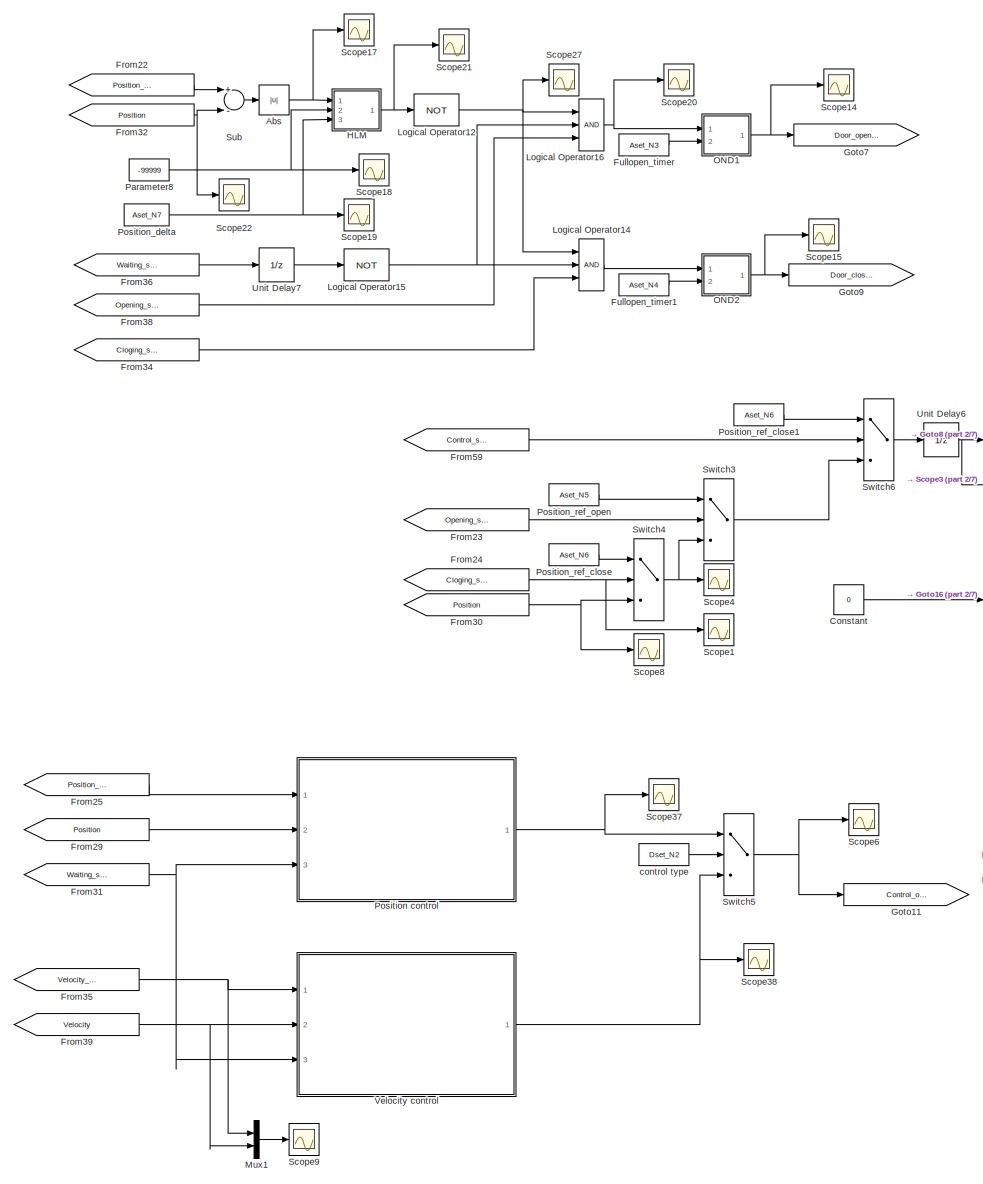
[diagram: root canvas - part 1/7, top left region]
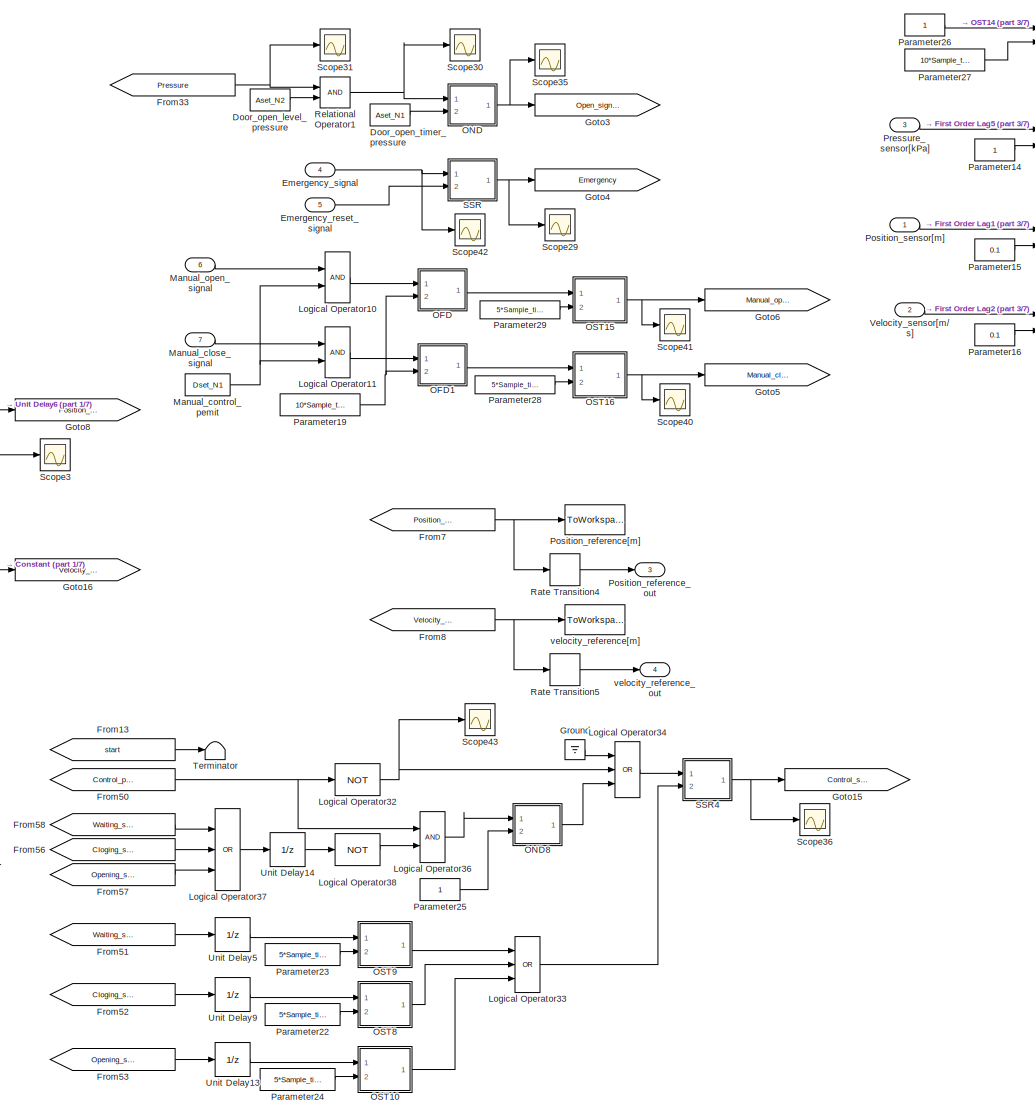
[diagram: root canvas - part 2/7, top center region]
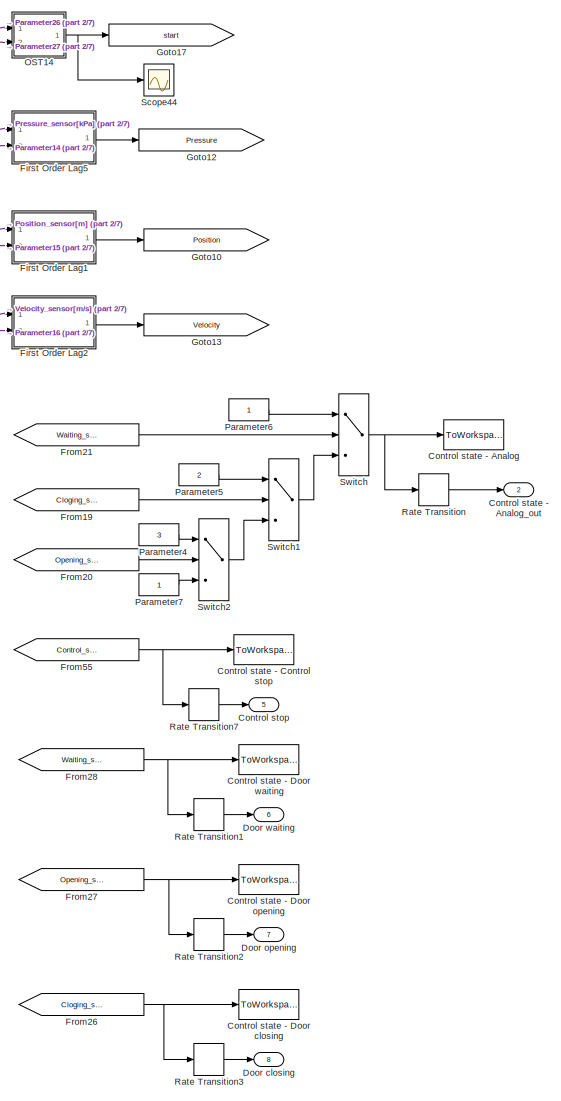
[diagram: root canvas - part 3/7, top right region]
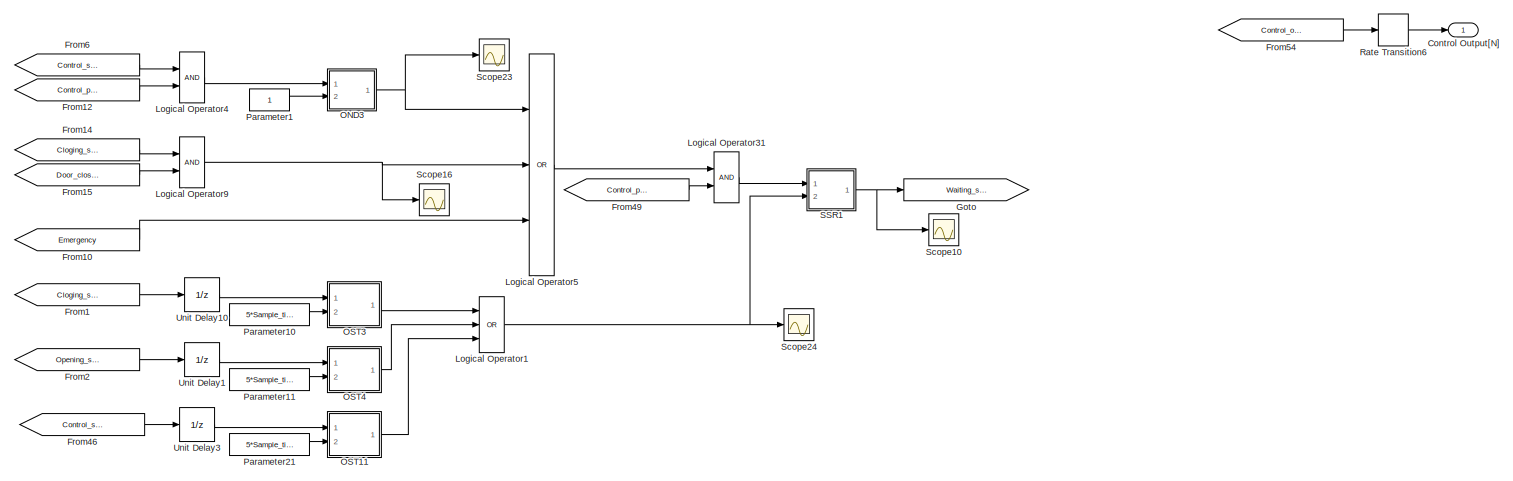
[diagram: root canvas - part 4/7, central region]
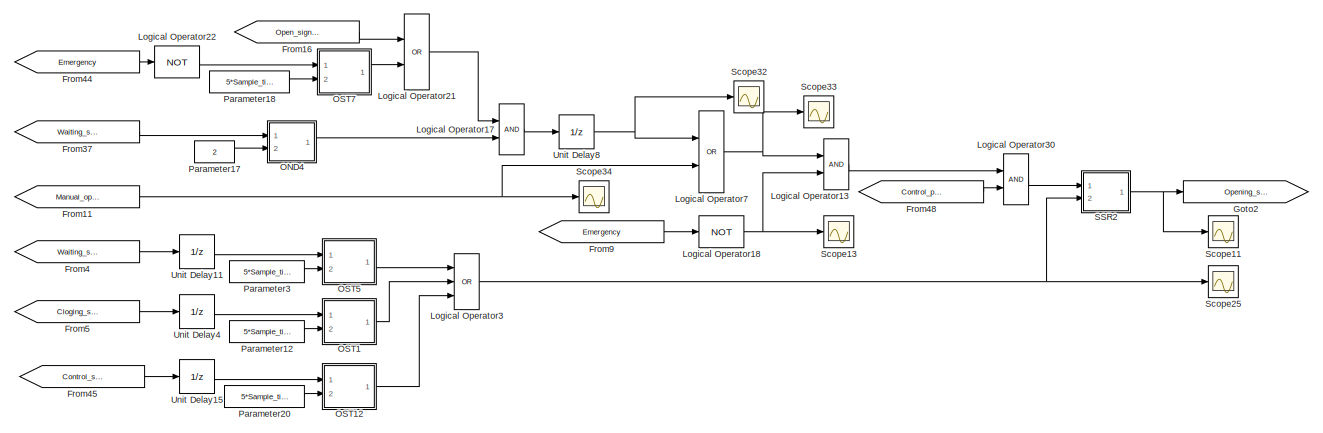
[diagram: root canvas - part 5/7, bottom center region]
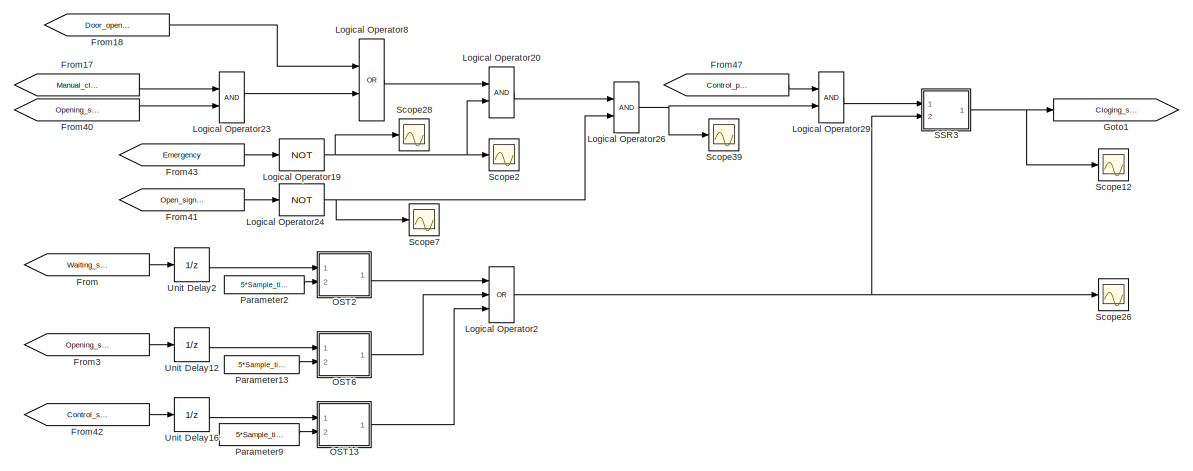
[diagram: root canvas - part 6/7, bottom center region]
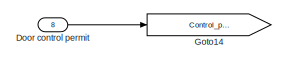
[diagram: root canvas - part 7/7, bottom left region]
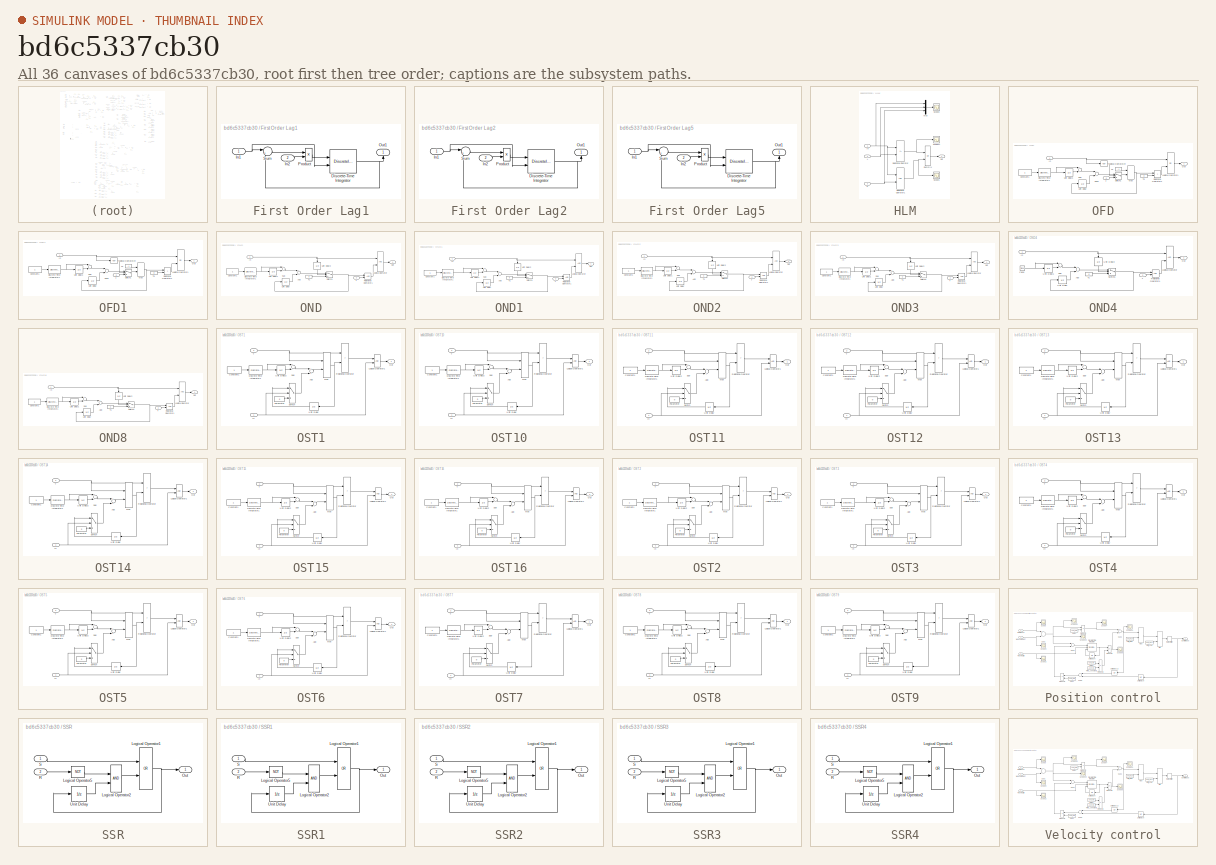
[diagram: thumbnail index - all 36 canvases of the model, root first then tree order]
MODEL slx_bd6c5337cb30
KIND model
CONFIG AbsTol = auto
CONFIG EnableMultiTasking = off
CONFIG FixedStep = auto
CONFIG MaxStep = auto
CONFIG MinStep = auto
CONFIG RelTol = 1e-3
CONFIG SampleTimeConstraint = Unconstrained
CONFIG Solver = FixedStepAuto
CONFIG SolverName = FixedStepAuto
CONFIG StartTime = Start_time
CONFIG StopTime = Stop_time
BLOCK [Abs] Abs
  SaturateOnIntegerOverflow = off
BLOCK [Constant] Constant
  Value = 0
BLOCK [Outport] Control Output[N]
  IconDisplay = Port number
  LockScale = on
  OutDataTypeStr = double
  SampleTime = Sample_time
  Unit = N
  VectorParamsAs1DForOutWhenUnconnected = off
BLOCK [ToWorkspace] Control state - Analog
  FixptAsFi = on
  MaxDataPoints = inf
  Ports = [1]
  SampleTime = Sample_time
  VariableName = Aout_N2
BLOCK [Outport] Control state - Analog_out
  IconDisplay = Port number
  Port = 2
  SampleTime = Sample_time
  VectorParamsAs1DForOutWhenUnconnected = off
BLOCK [ToWorkspace] Control state - Control stop
  FixptAsFi = on
  MaxDataPoints = inf
  Ports = [1]
  SampleTime = Sample_time
  VariableName = Dout_N1
BLOCK [ToWorkspace] Control state - Door closing
  FixptAsFi = on
  MaxDataPoints = inf
  Ports = [1]
  SampleTime = Sample_time
  VariableName = Dout_N4
BLOCK [ToWorkspace] Control state - Door opening
  FixptAsFi = on
  MaxDataPoints = inf
  Ports = [1]
  SampleTime = Sample_time
  VariableName = Dout_N3
BLOCK [ToWorkspace] Control state - Door waiting
  FixptAsFi = on
  MaxDataPoints = inf
  Ports = [1]
  SampleTime = Sample_time
  VariableName = Dout_N2
BLOCK [Outport] Control stop
  IconDisplay = Port number
  Port = 5
  SampleTime = Sample_time
  VectorParamsAs1DForOutWhenUnconnected = off
BLOCK [Outport] Door closing
  IconDisplay = Port number
  Port = 8
  SampleTime = Sample_time
  VectorParamsAs1DForOutWhenUnconnected = off
BLOCK [Inport] Door control permit
  IconDisplay = Port number
  OutDataTypeStr = boolean
  Port = 8
  SampleTime = Sample_time
BLOCK [Outport] Door opening
  IconDisplay = Port number
  Port = 7
  SampleTime = Sample_time
  VectorParamsAs1DForOutWhenUnconnected = off
BLOCK [Outport] Door waiting
  IconDisplay = Port number
  Port = 6
  SampleTime = Sample_time
  VectorParamsAs1DForOutWhenUnconnected = off
BLOCK [Constant] Door_open_level_pressure
  OutDataTypeStr = double
  SampleTime = Sample_time
  Value = Aset_N2
BLOCK [Constant] Door_open_timer_pressure
  OutDataTypeStr = double
  SampleTime = Sample_time
  Value = Aset_N1
BLOCK [Inport] Emergency_reset_signal
  IconDisplay = Port number
  OutDataTypeStr = boolean
  Port = 5
  SampleTime = Sample_time
BLOCK [Inport] Emergency_signal
  IconDisplay = Port number
  OutDataTypeStr = boolean
  Port = 4
  SampleTime = Sample_time
BLOCK [SubSystem] First Order Lag1
  Ports = [2, 1]
  RequestExecContextInheritance = off
BLOCK [DiscreteIntegrator] First Order Lag1/Discrete-Time Integrator
  ICPrevOutput = DiscIntNeverNeededParam
  ICPrevScaledInput = DiscIntNeverNeededParam
  InitialConditionSetting = Auto
  InitialConditionSource = external
  Ports = [2, 1]
  SampleTime = Sample_time
BLOCK [Inport] First Order Lag1/In1
  IconDisplay = Port number
BLOCK [Inport] First Order Lag1/In2
  IconDisplay = Port number
  Port = 2
BLOCK [Outport] First Order Lag1/Out1
  IconDisplay = Port number
  VectorParamsAs1DForOutWhenUnconnected = off
BLOCK [Product] First Order Lag1/Product
  InputSameDT = off
  Inputs = */
  Ports = [2, 1]
  RndMeth = Floor
BLOCK [Sum] First Order Lag1/Sum
  IconShape = round
  InputSameDT = off
  Inputs = |+-
  OutDataTypeStr = Inherit: Inherit via internal rule
  Ports = [2, 1]
BLOCK [SubSystem] First Order Lag2
  Ports = [2, 1]
  RequestExecContextInheritance = off
BLOCK [DiscreteIntegrator] First Order Lag2/Discrete-Time Integrator
  ICPrevOutput = DiscIntNeverNeededParam
  ICPrevScaledInput = DiscIntNeverNeededParam
  InitialConditionSetting = Auto
  InitialConditionSource = external
  Ports = [2, 1]
  SampleTime = Sample_time
BLOCK [Inport] First Order Lag2/In1
  IconDisplay = Port number
BLOCK [Inport] First Order Lag2/In2
  IconDisplay = Port number
  Port = 2
BLOCK [Outport] First Order Lag2/Out1
  IconDisplay = Port number
  VectorParamsAs1DForOutWhenUnconnected = off
BLOCK [Product] First Order Lag2/Product
  InputSameDT = off
  Inputs = */
  Ports = [2, 1]
  RndMeth = Floor
BLOCK [Sum] First Order Lag2/Sum
  IconShape = round
  InputSameDT = off
  Inputs = |+-
  OutDataTypeStr = Inherit: Inherit via internal rule
  Ports = [2, 1]
BLOCK [SubSystem] First Order Lag5
  Ports = [2, 1]
  RequestExecContextInheritance = off
BLOCK [DiscreteIntegrator] First Order Lag5/Discrete-Time Integrator
  ICPrevOutput = DiscIntNeverNeededParam
  ICPrevScaledInput = DiscIntNeverNeededParam
  InitialConditionSetting = Auto
  InitialConditionSource = external
  Ports = [2, 1]
  SampleTime = Sample_time
BLOCK [Inport] First Order Lag5/In1
  IconDisplay = Port number
BLOCK [Inport] First Order Lag5/In2
  IconDisplay = Port number
  Port = 2
BLOCK [Outport] First Order Lag5/Out1
  IconDisplay = Port number
  VectorParamsAs1DForOutWhenUnconnected = off
BLOCK [Product] First Order Lag5/Product
  InputSameDT = off
  Inputs = */
  Ports = [2, 1]
  RndMeth = Floor
BLOCK [Sum] First Order Lag5/Sum
  IconShape = round
  InputSameDT = off
  Inputs = |+-
  OutDataTypeStr = Inherit: Inherit via internal rule
  Ports = [2, 1]
BLOCK [From] From
  GotoTag = Waiting_state
  TagVisibility = global
BLOCK [From] From1
  GotoTag = Cloging_state
  TagVisibility = global
BLOCK [From] From10
  GotoTag = Emergency
  TagVisibility = global
BLOCK [From] From11
  GotoTag = Manual_open
  TagVisibility = global
BLOCK [From] From12
  GotoTag = Control_permit
  TagVisibility = global
BLOCK [From] From13
  GotoTag = start
  TagVisibility = global
BLOCK [From] From14
  GotoTag = Cloging_state
  TagVisibility = global
BLOCK [From] From15
  GotoTag = Door_closing
  TagVisibility = global
BLOCK [From] From16
  GotoTag = Open_signal
  TagVisibility = global
BLOCK [From] From17
  GotoTag = Manual_close
  TagVisibility = global
BLOCK [From] From18
  GotoTag = Door_opening
  TagVisibility = global
BLOCK [From] From19
  GotoTag = Cloging_state
  TagVisibility = global
BLOCK [From] From2
  GotoTag = Opening_state
  TagVisibility = global
BLOCK [From] From20
  GotoTag = Opening_state
  TagVisibility = global
BLOCK [From] From21
  GotoTag = Waiting_state
  TagVisibility = global
BLOCK [From] From22
  GotoTag = Position_ref
  TagVisibility = global
BLOCK [From] From23
  GotoTag = Opening_state
  TagVisibility = global
BLOCK [From] From24
  GotoTag = Cloging_state
  TagVisibility = global
BLOCK [From] From25
  GotoTag = Position_ref
  TagVisibility = global
BLOCK [From] From26
  GotoTag = Cloging_state
  TagVisibility = global
BLOCK [From] From27
  GotoTag = Opening_state
  TagVisibility = global
BLOCK [From] From28
  GotoTag = Waiting_state
  TagVisibility = global
BLOCK [From] From29
  GotoTag = Position
  TagVisibility = global
BLOCK [From] From3
  GotoTag = Opening_state
  TagVisibility = global
BLOCK [From] From30
  GotoTag = Position
  TagVisibility = global
BLOCK [From] From31
  GotoTag = Waiting_state
  TagVisibility = global
BLOCK [From] From32
  GotoTag = Position
  TagVisibility = global
BLOCK [From] From33
  GotoTag = Pressure
  TagVisibility = global
BLOCK [From] From34
  GotoTag = Cloging_state
  TagVisibility = global
BLOCK [From] From35
  GotoTag = Velocity_ref
  TagVisibility = global
BLOCK [From] From36
  GotoTag = Waiting_state
  TagVisibility = global
BLOCK [From] From37
  GotoTag = Waiting_state
  TagVisibility = global
BLOCK [From] From38
  GotoTag = Opening_state
  TagVisibility = global
BLOCK [From] From39
  GotoTag = Velocity
  TagVisibility = global
BLOCK [From] From4
  GotoTag = Waiting_state
  TagVisibility = global
BLOCK [From] From40
  GotoTag = Opening_state
  TagVisibility = global
BLOCK [From] From41
  GotoTag = Open_signal
  TagVisibility = global
BLOCK [From] From42
  GotoTag = Control_stop_state
  TagVisibility = global
BLOCK [From] From43
  GotoTag = Emergency
  TagVisibility = global
BLOCK [From] From44
  GotoTag = Emergency
  TagVisibility = global
BLOCK [From] From45
  GotoTag = Control_stop_state
  TagVisibility = global
BLOCK [From] From46
  GotoTag = Control_stop_state
  TagVisibility = global
BLOCK [From] From47
  GotoTag = Control_permit
  TagVisibility = global
BLOCK [From] From48
  GotoTag = Control_permit
  TagVisibility = global
BLOCK [From] From49
  GotoTag = Control_permit
  TagVisibility = global
BLOCK [From] From5
  GotoTag = Cloging_state
  TagVisibility = global
BLOCK [From] From50
  GotoTag = Control_permit
  TagVisibility = global
BLOCK [From] From51
  GotoTag = Waiting_state
  TagVisibility = global
BLOCK [From] From52
  GotoTag = Cloging_state
  TagVisibility = global
BLOCK [From] From53
  GotoTag = Opening_state
  TagVisibility = global
BLOCK [From] From54
  GotoTag = Control_output
  TagVisibility = global
BLOCK [From] From55
  GotoTag = Control_stop_state
  TagVisibility = global
BLOCK [From] From56
  GotoTag = Cloging_state
  TagVisibility = global
BLOCK [From] From57
  GotoTag = Opening_state
  TagVisibility = global
BLOCK [From] From58
  GotoTag = Waiting_state
  TagVisibility = global
BLOCK [From] From59
  GotoTag = Control_stop_state
  TagVisibility = global
BLOCK [From] From6
  GotoTag = Control_stop_state
  TagVisibility = global
BLOCK [From] From7
  GotoTag = Position_ref
  TagVisibility = global
BLOCK [From] From8
  GotoTag = Velocity_ref
  TagVisibility = global
BLOCK [From] From9
  GotoTag = Emergency
  TagVisibility = global
BLOCK [Constant] Fullopen_timer
  OutDataTypeStr = double
  SampleTime = Sample_time
  Value = Aset_N3
BLOCK [Constant] Fullopen_timer1
  OutDataTypeStr = double
  SampleTime = Sample_time
  Value = Aset_N4
BLOCK [Goto] Goto
  GotoTag = Waiting_state
  TagVisibility = global
BLOCK [Goto] Goto1
  GotoTag = Cloging_state
  TagVisibility = global
BLOCK [Goto] Goto10
  GotoTag = Position
  TagVisibility = global
BLOCK [Goto] Goto11
  GotoTag = Control_output
  TagVisibility = global
BLOCK [Goto] Goto12
  GotoTag = Pressure
  TagVisibility = global
BLOCK [Goto] Goto13
  GotoTag = Velocity
  TagVisibility = global
BLOCK [Goto] Goto14
  GotoTag = Control_permit
  TagVisibility = global
BLOCK [Goto] Goto15
  GotoTag = Control_stop_state
  TagVisibility = global
BLOCK [Goto] Goto16
  GotoTag = Velocity_ref
  TagVisibility = global
BLOCK [Goto] Goto17
  GotoTag = start
  TagVisibility = global
BLOCK [Goto] Goto2
  GotoTag = Opening_state
  TagVisibility = global
BLOCK [Goto] Goto3
  GotoTag = Open_signal
  TagVisibility = global
BLOCK [Goto] Goto4
  GotoTag = Emergency
  TagVisibility = global
BLOCK [Goto] Goto5
  GotoTag = Manual_close
  TagVisibility = global
BLOCK [Goto] Goto6
  GotoTag = Manual_open
  TagVisibility = global
BLOCK [Goto] Goto7
  GotoTag = Door_opening
  TagVisibility = global
BLOCK [Goto] Goto8
  GotoTag = Position_ref
  TagVisibility = global
BLOCK [Goto] Goto9
  GotoTag = Door_closing
  TagVisibility = global
BLOCK [Ground] Ground
BLOCK [SubSystem] HLM
  Ports = [3, 1]
  RequestExecContextInheritance = off
BLOCK [Logic] HLM/Dummy4
  AllPortsSameDT = off
  Operator = OR
  OutDataTypeStr = boolean
  Ports = [2, 1]
BLOCK [Inport] HLM/H
  IconDisplay = Port number
  Port = 3
BLOCK [Inport] HLM/In
  IconDisplay = Port number
BLOCK [Inport] HLM/L
  IconDisplay = Port number
  Port = 2
BLOCK [Mux] HLM/Mux
  DisplayOption = bar
  Inputs = 3
  Ports = [3, 1]
BLOCK [Outport] HLM/Out
  IconDisplay = Port number
  VectorParamsAs1DForOutWhenUnconnected = off
BLOCK [RelationalOperator] HLM/Relational Operator
  InputSameDT = off
  Operator = <=
  OutDataTypeStr = boolean
  Ports = [2, 1]
BLOCK [RelationalOperator] HLM/Relational Operator1
  InputSameDT = off
  OutDataTypeStr = boolean
  Ports = [2, 1]
BLOCK [Scope] HLM/Scope1
  Floating = off
  NumInputPorts = 1
  Ports = [1]
  ScopeSpecificationString = Simulink.scopes.TimeScopeBlockCfg('CurrentConfiguration', extmgr.ConfigurationSet(extmgr.Configuration('Core','General UI',true),extmgr.Configuration('Core','Source UI',true),extmgr.Configuration('Sources','WiredSimulink',true,'DataLoggingVariableName','ScopeData19'),extmgr.Configuration('Visuals','Time Domain',true,'SerializedDisplays',{struct('MinYLimReal','-0.04932','MaxYLimReal','1.125','YLabe...<+1416ch>
BLOCK [Scope] HLM/Scope17
  Floating = off
  NumInputPorts = 1
  Ports = [1]
  ScopeSpecificationString = Simulink.scopes.TimeScopeBlockCfg('CurrentConfiguration', extmgr.ConfigurationSet(extmgr.Configuration('Core','General UI',true),extmgr.Configuration('Core','Source UI',true),extmgr.Configuration('Sources','WiredSimulink',true,'DataLoggingVariableName','ScopeData18'),extmgr.Configuration('Visuals','Time Domain',true,'SerializedDisplays',{struct('MinYLimReal','-1.00000','MaxYLimReal','1.00000','YLa...<+1423ch>
BLOCK [Scope] HLM/Scope2
  Floating = off
  NumInputPorts = 1
  Ports = [1]
  ScopeSpecificationString = Simulink.scopes.TimeScopeBlockCfg('CurrentConfiguration', extmgr.ConfigurationSet(extmgr.Configuration('Core','General UI',true),extmgr.Configuration('Core','Source UI',true),extmgr.Configuration('Sources','WiredSimulink',true,'DataLoggingVariableName','ScopeData24'),extmgr.Configuration('Visuals','Time Domain',true,'SerializedDisplays',{struct('MinYLimReal','-112623.875','MaxYLimReal','13624.875'...<+1467ch>
BLOCK [Logic] Logical Operator1
  AllPortsSameDT = off
  Inputs = 3
  Operator = OR
  OutDataTypeStr = boolean
  Ports = [3, 1]
BLOCK [Logic] Logical Operator10
  AllPortsSameDT = off
  OutDataTypeStr = boolean
  Ports = [2, 1]
BLOCK [Logic] Logical Operator11
  AllPortsSameDT = off
  OutDataTypeStr = boolean
  Ports = [2, 1]
BLOCK [Logic] Logical Operator12
  AllPortsSameDT = off
  Operator = NOT
  OutDataTypeStr = boolean
  Ports = [1, 1]
BLOCK [Logic] Logical Operator13
  AllPortsSameDT = off
  OutDataTypeStr = boolean
  Ports = [2, 1]
BLOCK [Logic] Logical Operator14
  AllPortsSameDT = off
  Inputs = 3
  OutDataTypeStr = boolean
  Ports = [3, 1]
BLOCK [Logic] Logical Operator15
  AllPortsSameDT = off
  Operator = NOT
  OutDataTypeStr = boolean
  Ports = [1, 1]
BLOCK [Logic] Logical Operator16
  AllPortsSameDT = off
  Inputs = 3
  OutDataTypeStr = boolean
  Ports = [3, 1]
BLOCK [Logic] Logical Operator17
  AllPortsSameDT = off
  OutDataTypeStr = boolean
  Ports = [2, 1]
BLOCK [Logic] Logical Operator18
  AllPortsSameDT = off
  Operator = NOT
  OutDataTypeStr = boolean
  Ports = [1, 1]
BLOCK [Logic] Logical Operator19
  AllPortsSameDT = off
  Operator = NOT
  OutDataTypeStr = boolean
  Ports = [1, 1]
BLOCK [Logic] Logical Operator2
  AllPortsSameDT = off
  Inputs = 3
  Operator = OR
  OutDataTypeStr = boolean
  Ports = [3, 1]
BLOCK [Logic] Logical Operator20
  AllPortsSameDT = off
  OutDataTypeStr = boolean
  Ports = [2, 1]
BLOCK [Logic] Logical Operator21
  AllPortsSameDT = off
  Operator = OR
  OutDataTypeStr = boolean
  Ports = [2, 1]
BLOCK [Logic] Logical Operator22
  AllPortsSameDT = off
  Operator = NOT
  OutDataTypeStr = boolean
  Ports = [1, 1]
BLOCK [Logic] Logical Operator23
  AllPortsSameDT = off
  OutDataTypeStr = boolean
  Ports = [2, 1]
BLOCK [Logic] Logical Operator24
  AllPortsSameDT = off
  Operator = NOT
  OutDataTypeStr = boolean
  Ports = [1, 1]
BLOCK [Logic] Logical Operator26
  AllPortsSameDT = off
  OutDataTypeStr = boolean
  Ports = [2, 1]
BLOCK [Logic] Logical Operator29
  AllPortsSameDT = off
  OutDataTypeStr = boolean
  Ports = [2, 1]
BLOCK [Logic] Logical Operator3
  AllPortsSameDT = off
  Inputs = 3
  Operator = OR
  OutDataTypeStr = boolean
  Ports = [3, 1]
BLOCK [Logic] Logical Operator30
  AllPortsSameDT = off
  OutDataTypeStr = boolean
  Ports = [2, 1]
BLOCK [Logic] Logical Operator31
  AllPortsSameDT = off
  OutDataTypeStr = boolean
  Ports = [2, 1]
BLOCK [Logic] Logical Operator32
  AllPortsSameDT = off
  Operator = NOT
  OutDataTypeStr = boolean
  Ports = [1, 1]
BLOCK [Logic] Logical Operator33
  AllPortsSameDT = off
  Inputs = 3
  Operator = OR
  OutDataTypeStr = boolean
  Ports = [3, 1]
BLOCK [Logic] Logical Operator34
  AllPortsSameDT = off
  Inputs = 3
  Operator = OR
  OutDataTypeStr = boolean
  Ports = [3, 1]
BLOCK [Logic] Logical Operator36
  AllPortsSameDT = off
  OutDataTypeStr = boolean
  Ports = [2, 1]
BLOCK [Logic] Logical Operator37
  AllPortsSameDT = off
  Inputs = 3
  Operator = OR
  OutDataTypeStr = boolean
  Ports = [3, 1]
BLOCK [Logic] Logical Operator38
  AllPortsSameDT = off
  Operator = NOT
  OutDataTypeStr = boolean
  Ports = [1, 1]
BLOCK [Logic] Logical Operator4
  AllPortsSameDT = off
  OutDataTypeStr = boolean
  Ports = [2, 1]
BLOCK [Logic] Logical Operator5
  AllPortsSameDT = off
  Inputs = 3
  Operator = OR
  OutDataTypeStr = boolean
  Ports = [3, 1]
BLOCK [Logic] Logical Operator7
  AllPortsSameDT = off
  Operator = OR
  OutDataTypeStr = boolean
  Ports = [2, 1]
BLOCK [Logic] Logical Operator8
  AllPortsSameDT = off
  Operator = OR
  OutDataTypeStr = boolean
  Ports = [2, 1]
BLOCK [Logic] Logical Operator9
  AllPortsSameDT = off
  OutDataTypeStr = boolean
  Ports = [2, 1]
BLOCK [Inport] Manual_close_signal
  IconDisplay = Port number
  OutDataTypeStr = boolean
  Port = 7
  SampleTime = Sample_time
BLOCK [Constant] Manual_control_pemit
  OutDataTypeStr = double
  SampleTime = Sample_time
  Value = Dset_N1
BLOCK [Inport] Manual_open_signal
  IconDisplay = Port number
  OutDataTypeStr = boolean
  Port = 6
  SampleTime = Sample_time
BLOCK [Mux] Mux1
  DisplayOption = bar
  Inputs = 2
  Ports = [2, 1]
BLOCK [SubSystem] OFD
  Ports = [2, 1]
  RequestExecContextInheritance = off
BLOCK [Constant] OFD/Constant1
  SampleTime = Sample_time
BLOCK [DiscreteIntegrator] OFD/Discrete-Time Integrator1
  ICPrevOutput = DiscIntNeverNeededParam
  ICPrevScaledInput = DiscIntNeverNeededParam
  InitialConditionSetting = Auto
  LimitOutput = on
  LowerSaturationLimit = 0
  Ports = [1, 1]
  SampleTime = Sample_time
BLOCK [Inport] OFD/In
  IconDisplay = Port number
BLOCK [Logic] OFD/Logical Operator1
  AllPortsSameDT = off
  Operator = OR
  OutDataTypeStr = boolean
  Ports = [2, 1]
BLOCK [Logic] OFD/Logical Operator24
  AllPortsSameDT = off
  Operator = NOT
  OutDataTypeStr = boolean
  Ports = [1, 1]
BLOCK [MinMax] OFD/Max
  Function = max
  InputSameDT = off
  Inputs = 2
  OutDataTypeStr = double
  Ports = [2, 1]
  SaturateOnIntegerOverflow = off
BLOCK [Outport] OFD/Out
  IconDisplay = Port number
  VectorParamsAs1DForOutWhenUnconnected = off
BLOCK [RelationalOperator] OFD/Relational Operator1
  InputSameDT = off
  Operator = >
  OutDataTypeStr = boolean
  Ports = [2, 1]
BLOCK [Sum] OFD/Sub
  InputSameDT = off
  Inputs = +-
  OutDataTypeStr = double
  Ports = [2, 1]
  SaturateOnIntegerOverflow = off
BLOCK [Sum] OFD/Sub1
  InputSameDT = off
  Inputs = -+
  OutDataTypeStr = Inherit: Inherit via internal rule
  Ports = [2, 1]
  SaturateOnIntegerOverflow = off
BLOCK [Switch] OFD/Switch1
  InputSameDT = off
  OutDataTypeStr = double
  SaturateOnIntegerOverflow = off
  Threshold = 0.5
BLOCK [Inport] OFD/T
  IconDisplay = Port number
  Port = 2
  SampleTime = Sample_time
BLOCK [Constant] OFD/T2
  Value = -1
BLOCK [Constant] OFD/T3
  Value = 0
BLOCK [UnitDelay] OFD/Unit Delay
  HasFrameUpgradeWarning = on
  InitialCondition = State_OFD_T_OFD
  SampleTime = Sample_time
BLOCK [UnitDelay] OFD/Unit Delay1
  HasFrameUpgradeWarning = on
  InitialCondition = Ini_time
  SampleTime = Sample_time
BLOCK [SubSystem] OFD1
  Ports = [2, 1]
  RequestExecContextInheritance = off
BLOCK [Constant] OFD1/Constant1
  SampleTime = Sample_time
BLOCK [DiscreteIntegrator] OFD1/Discrete-Time Integrator1
  ICPrevOutput = DiscIntNeverNeededParam
  ICPrevScaledInput = DiscIntNeverNeededParam
  InitialConditionSetting = Auto
  LimitOutput = on
  LowerSaturationLimit = 0
  Ports = [1, 1]
  SampleTime = Sample_time
BLOCK [Inport] OFD1/In
  IconDisplay = Port number
BLOCK [Logic] OFD1/Logical Operator1
  AllPortsSameDT = off
  Operator = OR
  OutDataTypeStr = boolean
  Ports = [2, 1]
BLOCK [Logic] OFD1/Logical Operator24
  AllPortsSameDT = off
  Operator = NOT
  OutDataTypeStr = boolean
  Ports = [1, 1]
BLOCK [MinMax] OFD1/Max
  Function = max
  InputSameDT = off
  Inputs = 2
  OutDataTypeStr = double
  Ports = [2, 1]
  SaturateOnIntegerOverflow = off
BLOCK [Outport] OFD1/Out
  IconDisplay = Port number
  VectorParamsAs1DForOutWhenUnconnected = off
BLOCK [RelationalOperator] OFD1/Relational Operator1
  InputSameDT = off
  Operator = >
  OutDataTypeStr = boolean
  Ports = [2, 1]
BLOCK [Sum] OFD1/Sub
  InputSameDT = off
  Inputs = +-
  OutDataTypeStr = double
  Ports = [2, 1]
  SaturateOnIntegerOverflow = off
BLOCK [Sum] OFD1/Sub1
  InputSameDT = off
  Inputs = -+
  OutDataTypeStr = Inherit: Inherit via internal rule
  Ports = [2, 1]
  SaturateOnIntegerOverflow = off
BLOCK [Switch] OFD1/Switch1
  InputSameDT = off
  OutDataTypeStr = double
  SaturateOnIntegerOverflow = off
  Threshold = 0.5
BLOCK [Inport] OFD1/T
  IconDisplay = Port number
  Port = 2
  SampleTime = Sample_time
BLOCK [Constant] OFD1/T2
  Value = -1
BLOCK [Constant] OFD1/T3
  Value = 0
BLOCK [UnitDelay] OFD1/Unit Delay
  HasFrameUpgradeWarning = on
  InitialCondition = State_OFD_T_OFD1
  SampleTime = Sample_time
BLOCK [UnitDelay] OFD1/Unit Delay1
  HasFrameUpgradeWarning = on
  InitialCondition = Ini_time
  SampleTime = Sample_time
BLOCK [SubSystem] OND
  Ports = [2, 1]
  RequestExecContextInheritance = off
BLOCK [Sum] OND/Add
  InputSameDT = off
  OutDataTypeStr = double
  Ports = [2, 1]
  SaturateOnIntegerOverflow = off
BLOCK [Constant] OND/Constant1
  SampleTime = Sample_time
BLOCK [DiscreteIntegrator] OND/Discrete-Time Integrator1
  ICPrevOutput = DiscIntNeverNeededParam
  ICPrevScaledInput = DiscIntNeverNeededParam
  InitialConditionSetting = Auto
  LimitOutput = on
  LowerSaturationLimit = 0
  Ports = [1, 1]
  SampleTime = Sample_time
BLOCK [Inport] OND/In
  IconDisplay = Port number
BLOCK [Logic] OND/Logical Operator
  AllPortsSameDT = off
  OutDataTypeStr = boolean
  Ports = [2, 1]
BLOCK [Outport] OND/Out
  IconDisplay = Port number
  VectorParamsAs1DForOutWhenUnconnected = off
BLOCK [RelationalOperator] OND/Relational Operator1
  InputSameDT = off
  OutDataTypeStr = boolean
  Ports = [2, 1]
BLOCK [Sum] OND/Sub
  AccumDataTypeStr = double
  InputSameDT = off
  Inputs = +-
  OutDataTypeStr = Inherit: Inherit via internal rule
  Ports = [2, 1]
  SaturateOnIntegerOverflow = off
BLOCK [Switch] OND/Switch1
  InputSameDT = off
  OutDataTypeStr = double
  SaturateOnIntegerOverflow = off
  Threshold = 0.5
BLOCK [Inport] OND/T
  IconDisplay = Port number
  Port = 2
BLOCK [Constant] OND/T1
  OutDataTypeStr = double
  Value = 0
BLOCK [UnitDelay] OND/Unit Delay
  HasFrameUpgradeWarning = on
  InitialCondition = State_OND_T_OND
  SampleTime = Sample_time
BLOCK [UnitDelay] OND/Unit Delay1
  HasFrameUpgradeWarning = on
  InitialCondition = Ini_time
  SampleTime = Sample_time
BLOCK [UnitDelay] OND/Unit Delay2
  HasFrameUpgradeWarning = on
  SampleTime = Sample_time
BLOCK [SubSystem] OND1
  Ports = [2, 1]
  RequestExecContextInheritance = off
BLOCK [Sum] OND1/Add
  InputSameDT = off
  OutDataTypeStr = double
  Ports = [2, 1]
  SaturateOnIntegerOverflow = off
BLOCK [Constant] OND1/Constant1
  SampleTime = Sample_time
BLOCK [DiscreteIntegrator] OND1/Discrete-Time Integrator1
  ICPrevOutput = DiscIntNeverNeededParam
  ICPrevScaledInput = DiscIntNeverNeededParam
  InitialConditionSetting = Auto
  LimitOutput = on
  LowerSaturationLimit = 0
  Ports = [1, 1]
  SampleTime = Sample_time
BLOCK [Inport] OND1/In
  IconDisplay = Port number
BLOCK [Logic] OND1/Logical Operator
  AllPortsSameDT = off
  OutDataTypeStr = boolean
  Ports = [2, 1]
BLOCK [Outport] OND1/Out
  IconDisplay = Port number
  VectorParamsAs1DForOutWhenUnconnected = off
BLOCK [RelationalOperator] OND1/Relational Operator1
  InputSameDT = off
  OutDataTypeStr = boolean
  Ports = [2, 1]
BLOCK [Sum] OND1/Sub
  AccumDataTypeStr = double
  InputSameDT = off
  Inputs = +-
  OutDataTypeStr = Inherit: Inherit via internal rule
  Ports = [2, 1]
  SaturateOnIntegerOverflow = off
BLOCK [Switch] OND1/Switch1
  InputSameDT = off
  OutDataTypeStr = double
  SaturateOnIntegerOverflow = off
  Threshold = 0.5
BLOCK [Inport] OND1/T
  IconDisplay = Port number
  Port = 2
BLOCK [Constant] OND1/T1
  OutDataTypeStr = double
  Value = 0
BLOCK [UnitDelay] OND1/Unit Delay
  HasFrameUpgradeWarning = on
  InitialCondition = State_OND_T_OND1
  SampleTime = Sample_time
BLOCK [UnitDelay] OND1/Unit Delay1
  HasFrameUpgradeWarning = on
  InitialCondition = Ini_time
  SampleTime = Sample_time
BLOCK [UnitDelay] OND1/Unit Delay2
  HasFrameUpgradeWarning = on
  SampleTime = Sample_time
BLOCK [SubSystem] OND2
  Ports = [2, 1]
  RequestExecContextInheritance = off
BLOCK [Sum] OND2/Add
  InputSameDT = off
  OutDataTypeStr = double
  Ports = [2, 1]
  SaturateOnIntegerOverflow = off
BLOCK [Constant] OND2/Constant1
  SampleTime = Sample_time
BLOCK [DiscreteIntegrator] OND2/Discrete-Time Integrator1
  ICPrevOutput = DiscIntNeverNeededParam
  ICPrevScaledInput = DiscIntNeverNeededParam
  InitialConditionSetting = Auto
  LimitOutput = on
  LowerSaturationLimit = 0
  Ports = [1, 1]
  SampleTime = Sample_time
BLOCK [Inport] OND2/In
  IconDisplay = Port number
BLOCK [Logic] OND2/Logical Operator
  AllPortsSameDT = off
  OutDataTypeStr = boolean
  Ports = [2, 1]
BLOCK [Outport] OND2/Out
  IconDisplay = Port number
  VectorParamsAs1DForOutWhenUnconnected = off
BLOCK [RelationalOperator] OND2/Relational Operator1
  InputSameDT = off
  OutDataTypeStr = boolean
  Ports = [2, 1]
BLOCK [Sum] OND2/Sub
  AccumDataTypeStr = double
  InputSameDT = off
  Inputs = +-
  OutDataTypeStr = Inherit: Inherit via internal rule
  Ports = [2, 1]
  SaturateOnIntegerOverflow = off
BLOCK [Switch] OND2/Switch1
  InputSameDT = off
  OutDataTypeStr = double
  SaturateOnIntegerOverflow = off
  Threshold = 0.5
BLOCK [Inport] OND2/T
  IconDisplay = Port number
  Port = 2
BLOCK [Constant] OND2/T1
  OutDataTypeStr = double
  Value = 0
BLOCK [UnitDelay] OND2/Unit Delay
  HasFrameUpgradeWarning = on
  InitialCondition = State_OND_T_OND2
  SampleTime = Sample_time
BLOCK [UnitDelay] OND2/Unit Delay1
  HasFrameUpgradeWarning = on
  InitialCondition = Ini_time
  SampleTime = Sample_time
BLOCK [UnitDelay] OND2/Unit Delay2
  HasFrameUpgradeWarning = on
  SampleTime = Sample_time
BLOCK [SubSystem] OND3
  Ports = [2, 1]
  RequestExecContextInheritance = off
BLOCK [Sum] OND3/Add
  InputSameDT = off
  OutDataTypeStr = double
  Ports = [2, 1]
  SaturateOnIntegerOverflow = off
BLOCK [Constant] OND3/Constant1
  SampleTime = Sample_time
BLOCK [DiscreteIntegrator] OND3/Discrete-Time Integrator1
  ICPrevOutput = DiscIntNeverNeededParam
  ICPrevScaledInput = DiscIntNeverNeededParam
  InitialConditionSetting = Auto
  LimitOutput = on
  LowerSaturationLimit = 0
  Ports = [1, 1]
  SampleTime = Sample_time
BLOCK [Inport] OND3/In
  IconDisplay = Port number
BLOCK [Logic] OND3/Logical Operator
  AllPortsSameDT = off
  OutDataTypeStr = boolean
  Ports = [2, 1]
BLOCK [Outport] OND3/Out
  IconDisplay = Port number
  VectorParamsAs1DForOutWhenUnconnected = off
BLOCK [RelationalOperator] OND3/Relational Operator1
  InputSameDT = off
  OutDataTypeStr = boolean
  Ports = [2, 1]
BLOCK [Sum] OND3/Sub
  AccumDataTypeStr = double
  InputSameDT = off
  Inputs = +-
  OutDataTypeStr = Inherit: Inherit via internal rule
  Ports = [2, 1]
  SaturateOnIntegerOverflow = off
BLOCK [Switch] OND3/Switch1
  InputSameDT = off
  OutDataTypeStr = double
  SaturateOnIntegerOverflow = off
  Threshold = 0.5
BLOCK [Inport] OND3/T
  IconDisplay = Port number
  Port = 2
BLOCK [Constant] OND3/T1
  OutDataTypeStr = double
  Value = 0
BLOCK [UnitDelay] OND3/Unit Delay
  HasFrameUpgradeWarning = on
  InitialCondition = State_OND_T_OND3
  SampleTime = Sample_time
BLOCK [UnitDelay] OND3/Unit Delay1
  HasFrameUpgradeWarning = on
  InitialCondition = Ini_time
  SampleTime = Sample_time
BLOCK [UnitDelay] OND3/Unit Delay2
  HasFrameUpgradeWarning = on
  SampleTime = Sample_time
BLOCK [SubSystem] OND4
  Ports = [2, 1]
  RequestExecContextInheritance = off
BLOCK [Sum] OND4/Add
  InputSameDT = off
  OutDataTypeStr = double
  Ports = [2, 1]
  SaturateOnIntegerOverflow = off
BLOCK [Clock] OND4/Clock
  Decimation = 1
BLOCK [Inport] OND4/In
  IconDisplay = Port number
BLOCK [Logic] OND4/Logical Operator
  AllPortsSameDT = off
  OutDataTypeStr = boolean
  Ports = [2, 1]
BLOCK [Outport] OND4/Out
  IconDisplay = Port number
  VectorParamsAs1DForOutWhenUnconnected = off
BLOCK [RelationalOperator] OND4/Relational Operator1
  InputSameDT = off
  OutDataTypeStr = boolean
  Ports = [2, 1]
BLOCK [Sum] OND4/Sub
  AccumDataTypeStr = double
  InputSameDT = off
  Inputs = +-
  OutDataTypeStr = Inherit: Inherit via internal rule
  Ports = [2, 1]
  SaturateOnIntegerOverflow = off
BLOCK [Switch] OND4/Switch1
  InputSameDT = off
  OutDataTypeStr = double
  SaturateOnIntegerOverflow = off
  Threshold = 0.5
BLOCK [Inport] OND4/T
  IconDisplay = Port number
  Port = 2
BLOCK [Constant] OND4/T1
  OutDataTypeStr = double
  Value = 0
BLOCK [UnitDelay] OND4/Unit Delay
  HasFrameUpgradeWarning = on
  InitialCondition = State_OND_T_OND4
  SampleTime = Sample_time
BLOCK [UnitDelay] OND4/Unit Delay1
  HasFrameUpgradeWarning = on
  InitialCondition = Ini_time
  SampleTime = Sample_time
BLOCK [UnitDelay] OND4/Unit Delay2
  HasFrameUpgradeWarning = on
  SampleTime = Sample_time
BLOCK [SubSystem] OND8
  Ports = [2, 1]
  RequestExecContextInheritance = off
BLOCK [Sum] OND8/Add
  InputSameDT = off
  OutDataTypeStr = double
  Ports = [2, 1]
  SaturateOnIntegerOverflow = off
BLOCK [Constant] OND8/Constant1
  SampleTime = Sample_time
BLOCK [DiscreteIntegrator] OND8/Discrete-Time Integrator1
  ICPrevOutput = DiscIntNeverNeededParam
  ICPrevScaledInput = DiscIntNeverNeededParam
  InitialConditionSetting = Auto
  LimitOutput = on
  LowerSaturationLimit = 0
  Ports = [1, 1]
  SampleTime = Sample_time
BLOCK [Inport] OND8/In
  IconDisplay = Port number
BLOCK [Logic] OND8/Logical Operator
  AllPortsSameDT = off
  OutDataTypeStr = boolean
  Ports = [2, 1]
BLOCK [Outport] OND8/Out
  IconDisplay = Port number
  VectorParamsAs1DForOutWhenUnconnected = off
BLOCK [RelationalOperator] OND8/Relational Operator1
  InputSameDT = off
  OutDataTypeStr = boolean
  Ports = [2, 1]
BLOCK [Sum] OND8/Sub
  AccumDataTypeStr = double
  InputSameDT = off
  Inputs = +-
  OutDataTypeStr = Inherit: Inherit via internal rule
  Ports = [2, 1]
  SaturateOnIntegerOverflow = off
BLOCK [Switch] OND8/Switch1
  InputSameDT = off
  OutDataTypeStr = double
  SaturateOnIntegerOverflow = off
  Threshold = 0.5
BLOCK [Inport] OND8/T
  IconDisplay = Port number
  Port = 2
BLOCK [Constant] OND8/T1
  OutDataTypeStr = double
  Value = 0
BLOCK [UnitDelay] OND8/Unit Delay
  HasFrameUpgradeWarning = on
  InitialCondition = State_OND_T_OND8
  SampleTime = Sample_time
BLOCK [UnitDelay] OND8/Unit Delay1
  HasFrameUpgradeWarning = on
  InitialCondition = Ini_time
  SampleTime = Sample_time
BLOCK [UnitDelay] OND8/Unit Delay2
  HasFrameUpgradeWarning = on
  SampleTime = Sample_time
BLOCK [SubSystem] OST1
  Ports = [2, 1]
  RequestExecContextInheritance = off
BLOCK [Sum] OST1/Add
  InputSameDT = off
  OutDataTypeStr = double
  Ports = [2, 1]
  SaturateOnIntegerOverflow = off
BLOCK [Constant] OST1/Constant1
  SampleTime = Sample_time
BLOCK [DiscreteIntegrator] OST1/Discrete-Time Integrator1
  ICPrevOutput = DiscIntNeverNeededParam
  ICPrevScaledInput = DiscIntNeverNeededParam
  InitialConditionSetting = Auto
  LimitOutput = on
  LowerSaturationLimit = 0
  Ports = [1, 1]
  SampleTime = Sample_time
BLOCK [Inport] OST1/In
  IconDisplay = Port number
  OutDataTypeStr = boolean
  SampleTime = Sample_time
BLOCK [Logic] OST1/Logical Operator1
  AllPortsSameDT = off
  OutDataTypeStr = boolean
  Ports = [2, 1]
BLOCK [MinMax] OST1/Max
  InputSameDT = off
  Inputs = 2
  OutDataTypeStr = double
  Ports = [2, 1]
  SaturateOnIntegerOverflow = off
BLOCK [Outport] OST1/Out
  IconDisplay = Port number
  OutDataTypeStr = boolean
  SampleTime = Sample_time
  VectorParamsAs1DForOutWhenUnconnected = off
BLOCK [Constant] OST1/Parameter
  OutDataTypeStr = double
  SampleTime = Sample_time
  Value = 0
BLOCK [RelationalOperator] OST1/Relational Operator
  InputSameDT = off
  Operator = >
  OutDataTypeStr = boolean
  Ports = [2, 1]
BLOCK [Sum] OST1/Sub
  AccumDataTypeStr = single
  InputSameDT = off
  Inputs = +-
  OutDataTypeStr = double
  Ports = [2, 1]
  SaturateOnIntegerOverflow = off
BLOCK [Switch] OST1/Switch
  Criteria = u2 > Threshold
  InputSameDT = off
  OutDataTypeStr = double
  SaturateOnIntegerOverflow = off
  Threshold = 0.5
BLOCK [Inport] OST1/T
  IconDisplay = Port number
  OutDataTypeStr = double
  Port = 2
  SampleTime = Sample_time
BLOCK [UnitDelay] OST1/Unit Delay
  HasFrameUpgradeWarning = on
  InitialCondition = State_OST_T_OST1
  SampleTime = Sample_time
BLOCK [UnitDelay] OST1/Unit Delay2
  HasFrameUpgradeWarning = on
  InitialCondition = Ini_time
  SampleTime = Sample_time
BLOCK [SubSystem] OST10
  Ports = [2, 1]
  RequestExecContextInheritance = off
BLOCK [Sum] OST10/Add
  InputSameDT = off
  OutDataTypeStr = double
  Ports = [2, 1]
  SaturateOnIntegerOverflow = off
BLOCK [Constant] OST10/Constant1
  SampleTime = Sample_time
BLOCK [DiscreteIntegrator] OST10/Discrete-Time Integrator1
  ICPrevOutput = DiscIntNeverNeededParam
  ICPrevScaledInput = DiscIntNeverNeededParam
  InitialConditionSetting = Auto
  LimitOutput = on
  LowerSaturationLimit = 0
  Ports = [1, 1]
  SampleTime = Sample_time
BLOCK [Inport] OST10/In
  IconDisplay = Port number
  OutDataTypeStr = boolean
  SampleTime = Sample_time
BLOCK [Logic] OST10/Logical Operator1
  AllPortsSameDT = off
  OutDataTypeStr = boolean
  Ports = [2, 1]
BLOCK [MinMax] OST10/Max
  InputSameDT = off
  Inputs = 2
  OutDataTypeStr = double
  Ports = [2, 1]
  SaturateOnIntegerOverflow = off
BLOCK [Outport] OST10/Out
  IconDisplay = Port number
  OutDataTypeStr = boolean
  SampleTime = Sample_time
  VectorParamsAs1DForOutWhenUnconnected = off
BLOCK [Constant] OST10/Parameter
  OutDataTypeStr = double
  SampleTime = Sample_time
  Value = 0
BLOCK [RelationalOperator] OST10/Relational Operator
  InputSameDT = off
  Operator = >
  OutDataTypeStr = boolean
  Ports = [2, 1]
BLOCK [Sum] OST10/Sub
  AccumDataTypeStr = single
  InputSameDT = off
  Inputs = +-
  OutDataTypeStr = double
  Ports = [2, 1]
  SaturateOnIntegerOverflow = off
BLOCK [Switch] OST10/Switch
  Criteria = u2 > Threshold
  InputSameDT = off
  OutDataTypeStr = double
  SaturateOnIntegerOverflow = off
  Threshold = 0.5
BLOCK [Inport] OST10/T
  IconDisplay = Port number
  OutDataTypeStr = double
  Port = 2
  SampleTime = Sample_time
BLOCK [UnitDelay] OST10/Unit Delay
  HasFrameUpgradeWarning = on
  InitialCondition = State_OST_T_OST10
  SampleTime = Sample_time
BLOCK [UnitDelay] OST10/Unit Delay2
  HasFrameUpgradeWarning = on
  InitialCondition = Ini_time
  SampleTime = Sample_time
BLOCK [SubSystem] OST11
  Ports = [2, 1]
  RequestExecContextInheritance = off
BLOCK [Sum] OST11/Add
  InputSameDT = off
  OutDataTypeStr = double
  Ports = [2, 1]
  SaturateOnIntegerOverflow = off
BLOCK [Constant] OST11/Constant1
  SampleTime = Sample_time
BLOCK [DiscreteIntegrator] OST11/Discrete-Time Integrator1
  ICPrevOutput = DiscIntNeverNeededParam
  ICPrevScaledInput = DiscIntNeverNeededParam
  InitialConditionSetting = Auto
  LimitOutput = on
  LowerSaturationLimit = 0
  Ports = [1, 1]
  SampleTime = Sample_time
BLOCK [Inport] OST11/In
  IconDisplay = Port number
  OutDataTypeStr = boolean
  SampleTime = Sample_time
BLOCK [Logic] OST11/Logical Operator1
  AllPortsSameDT = off
  OutDataTypeStr = boolean
  Ports = [2, 1]
BLOCK [MinMax] OST11/Max
  InputSameDT = off
  Inputs = 2
  OutDataTypeStr = double
  Ports = [2, 1]
  SaturateOnIntegerOverflow = off
BLOCK [Outport] OST11/Out
  IconDisplay = Port number
  OutDataTypeStr = boolean
  SampleTime = Sample_time
  VectorParamsAs1DForOutWhenUnconnected = off
BLOCK [Constant] OST11/Parameter
  OutDataTypeStr = double
  SampleTime = Sample_time
  Value = 0
BLOCK [RelationalOperator] OST11/Relational Operator
  InputSameDT = off
  Operator = >
  OutDataTypeStr = boolean
  Ports = [2, 1]
BLOCK [Sum] OST11/Sub
  AccumDataTypeStr = single
  InputSameDT = off
  Inputs = +-
  OutDataTypeStr = double
  Ports = [2, 1]
  SaturateOnIntegerOverflow = off
BLOCK [Switch] OST11/Switch
  Criteria = u2 > Threshold
  InputSameDT = off
  OutDataTypeStr = double
  SaturateOnIntegerOverflow = off
  Threshold = 0.5
BLOCK [Inport] OST11/T
  IconDisplay = Port number
  OutDataTypeStr = double
  Port = 2
  SampleTime = Sample_time
BLOCK [UnitDelay] OST11/Unit Delay
  HasFrameUpgradeWarning = on
  InitialCondition = State_OST_T_OST11
  SampleTime = Sample_time
BLOCK [UnitDelay] OST11/Unit Delay2
  HasFrameUpgradeWarning = on
  InitialCondition = Ini_time
  SampleTime = Sample_time
BLOCK [SubSystem] OST12
  Ports = [2, 1]
  RequestExecContextInheritance = off
BLOCK [Sum] OST12/Add
  InputSameDT = off
  OutDataTypeStr = double
  Ports = [2, 1]
  SaturateOnIntegerOverflow = off
BLOCK [Constant] OST12/Constant1
  SampleTime = Sample_time
BLOCK [DiscreteIntegrator] OST12/Discrete-Time Integrator1
  ICPrevOutput = DiscIntNeverNeededParam
  ICPrevScaledInput = DiscIntNeverNeededParam
  InitialConditionSetting = Auto
  LimitOutput = on
  LowerSaturationLimit = 0
  Ports = [1, 1]
  SampleTime = Sample_time
BLOCK [Inport] OST12/In
  IconDisplay = Port number
  OutDataTypeStr = boolean
  SampleTime = Sample_time
BLOCK [Logic] OST12/Logical Operator1
  AllPortsSameDT = off
  OutDataTypeStr = boolean
  Ports = [2, 1]
BLOCK [MinMax] OST12/Max
  InputSameDT = off
  Inputs = 2
  OutDataTypeStr = double
  Ports = [2, 1]
  SaturateOnIntegerOverflow = off
BLOCK [Outport] OST12/Out
  IconDisplay = Port number
  OutDataTypeStr = boolean
  SampleTime = Sample_time
  VectorParamsAs1DForOutWhenUnconnected = off
BLOCK [Constant] OST12/Parameter
  OutDataTypeStr = double
  SampleTime = Sample_time
  Value = 0
BLOCK [RelationalOperator] OST12/Relational Operator
  InputSameDT = off
  Operator = >
  OutDataTypeStr = boolean
  Ports = [2, 1]
BLOCK [Sum] OST12/Sub
  AccumDataTypeStr = single
  InputSameDT = off
  Inputs = +-
  OutDataTypeStr = double
  Ports = [2, 1]
  SaturateOnIntegerOverflow = off
BLOCK [Switch] OST12/Switch
  Criteria = u2 > Threshold
  InputSameDT = off
  OutDataTypeStr = double
  SaturateOnIntegerOverflow = off
  Threshold = 0.5
BLOCK [Inport] OST12/T
  IconDisplay = Port number
  OutDataTypeStr = double
  Port = 2
  SampleTime = Sample_time
BLOCK [UnitDelay] OST12/Unit Delay
  HasFrameUpgradeWarning = on
  InitialCondition = State_OST_T_OST12
  SampleTime = Sample_time
BLOCK [UnitDelay] OST12/Unit Delay2
  HasFrameUpgradeWarning = on
  InitialCondition = Ini_time
  SampleTime = Sample_time
BLOCK [SubSystem] OST13
  Ports = [2, 1]
  RequestExecContextInheritance = off
BLOCK [Sum] OST13/Add
  InputSameDT = off
  OutDataTypeStr = double
  Ports = [2, 1]
  SaturateOnIntegerOverflow = off
BLOCK [Constant] OST13/Constant1
  SampleTime = Sample_time
BLOCK [DiscreteIntegrator] OST13/Discrete-Time Integrator1
  ICPrevOutput = DiscIntNeverNeededParam
  ICPrevScaledInput = DiscIntNeverNeededParam
  InitialConditionSetting = Auto
  LimitOutput = on
  LowerSaturationLimit = 0
  Ports = [1, 1]
  SampleTime = Sample_time
BLOCK [Inport] OST13/In
  IconDisplay = Port number
  OutDataTypeStr = boolean
  SampleTime = Sample_time
BLOCK [Logic] OST13/Logical Operator1
  AllPortsSameDT = off
  OutDataTypeStr = boolean
  Ports = [2, 1]
BLOCK [MinMax] OST13/Max
  InputSameDT = off
  Inputs = 2
  OutDataTypeStr = double
  Ports = [2, 1]
  SaturateOnIntegerOverflow = off
BLOCK [Outport] OST13/Out
  IconDisplay = Port number
  OutDataTypeStr = boolean
  SampleTime = Sample_time
  VectorParamsAs1DForOutWhenUnconnected = off
BLOCK [Constant] OST13/Parameter
  OutDataTypeStr = double
  SampleTime = Sample_time
  Value = 0
BLOCK [RelationalOperator] OST13/Relational Operator
  InputSameDT = off
  Operator = >
  OutDataTypeStr = boolean
  Ports = [2, 1]
BLOCK [Sum] OST13/Sub
  AccumDataTypeStr = single
  InputSameDT = off
  Inputs = +-
  OutDataTypeStr = double
  Ports = [2, 1]
  SaturateOnIntegerOverflow = off
BLOCK [Switch] OST13/Switch
  Criteria = u2 > Threshold
  InputSameDT = off
  OutDataTypeStr = double
  SaturateOnIntegerOverflow = off
  Threshold = 0.5
BLOCK [Inport] OST13/T
  IconDisplay = Port number
  OutDataTypeStr = double
  Port = 2
  SampleTime = Sample_time
BLOCK [UnitDelay] OST13/Unit Delay
  HasFrameUpgradeWarning = on
  InitialCondition = State_OST_T_OST13
  SampleTime = Sample_time
BLOCK [UnitDelay] OST13/Unit Delay2
  HasFrameUpgradeWarning = on
  InitialCondition = Ini_time
  SampleTime = Sample_time
BLOCK [SubSystem] OST14
  Ports = [2, 1]
  RequestExecContextInheritance = off
BLOCK [Sum] OST14/Add
  InputSameDT = off
  OutDataTypeStr = double
  Ports = [2, 1]
  SaturateOnIntegerOverflow = off
BLOCK [Constant] OST14/Constant1
  SampleTime = Sample_time
BLOCK [DiscreteIntegrator] OST14/Discrete-Time Integrator1
  ICPrevOutput = DiscIntNeverNeededParam
  ICPrevScaledInput = DiscIntNeverNeededParam
  InitialConditionSetting = Auto
  LimitOutput = on
  LowerSaturationLimit = 0
  Ports = [1, 1]
  SampleTime = Sample_time
BLOCK [Inport] OST14/In
  IconDisplay = Port number
  OutDataTypeStr = boolean
  SampleTime = Sample_time
BLOCK [Logic] OST14/Logical Operator1
  AllPortsSameDT = off
  OutDataTypeStr = boolean
  Ports = [2, 1]
BLOCK [MinMax] OST14/Max
  InputSameDT = off
  Inputs = 2
  OutDataTypeStr = double
  Ports = [2, 1]
  SaturateOnIntegerOverflow = off
BLOCK [Outport] OST14/Out
  IconDisplay = Port number
  OutDataTypeStr = boolean
  SampleTime = Sample_time
  VectorParamsAs1DForOutWhenUnconnected = off
BLOCK [Constant] OST14/Parameter
  OutDataTypeStr = double
  SampleTime = Sample_time
  Value = 0
BLOCK [RelationalOperator] OST14/Relational Operator
  InputSameDT = off
  Operator = >
  OutDataTypeStr = boolean
  Ports = [2, 1]
BLOCK [Sum] OST14/Sub
  AccumDataTypeStr = single
  InputSameDT = off
  Inputs = +-
  OutDataTypeStr = double
  Ports = [2, 1]
  SaturateOnIntegerOverflow = off
BLOCK [Switch] OST14/Switch
  Criteria = u2 > Threshold
  InputSameDT = off
  OutDataTypeStr = double
  SaturateOnIntegerOverflow = off
  Threshold = 0.5
BLOCK [Inport] OST14/T
  IconDisplay = Port number
  OutDataTypeStr = double
  Port = 2
  SampleTime = Sample_time
BLOCK [UnitDelay] OST14/Unit Delay
  HasFrameUpgradeWarning = on
  InitialCondition = State_OST_T_OST14
  SampleTime = Sample_time
BLOCK [UnitDelay] OST14/Unit Delay2
  HasFrameUpgradeWarning = on
  InitialCondition = Ini_time
  SampleTime = Sample_time
BLOCK [SubSystem] OST15
  Ports = [2, 1]
  RequestExecContextInheritance = off
BLOCK [Sum] OST15/Add
  InputSameDT = off
  OutDataTypeStr = double
  Ports = [2, 1]
  SaturateOnIntegerOverflow = off
BLOCK [Constant] OST15/Constant1
  SampleTime = Sample_time
BLOCK [DiscreteIntegrator] OST15/Discrete-Time Integrator1
  ICPrevOutput = DiscIntNeverNeededParam
  ICPrevScaledInput = DiscIntNeverNeededParam
  InitialConditionSetting = Auto
  LimitOutput = on
  LowerSaturationLimit = 0
  Ports = [1, 1]
  SampleTime = Sample_time
BLOCK [Inport] OST15/In
  IconDisplay = Port number
  OutDataTypeStr = boolean
  SampleTime = Sample_time
BLOCK [Logic] OST15/Logical Operator1
  AllPortsSameDT = off
  OutDataTypeStr = boolean
  Ports = [2, 1]
BLOCK [MinMax] OST15/Max
  InputSameDT = off
  Inputs = 2
  OutDataTypeStr = double
  Ports = [2, 1]
  SaturateOnIntegerOverflow = off
BLOCK [Outport] OST15/Out
  IconDisplay = Port number
  OutDataTypeStr = boolean
  SampleTime = Sample_time
  VectorParamsAs1DForOutWhenUnconnected = off
BLOCK [Constant] OST15/Parameter
  OutDataTypeStr = double
  SampleTime = Sample_time
  Value = 0
BLOCK [RelationalOperator] OST15/Relational Operator
  InputSameDT = off
  Operator = >
  OutDataTypeStr = boolean
  Ports = [2, 1]
BLOCK [Sum] OST15/Sub
  AccumDataTypeStr = single
  InputSameDT = off
  Inputs = +-
  OutDataTypeStr = double
  Ports = [2, 1]
  SaturateOnIntegerOverflow = off
BLOCK [Switch] OST15/Switch
  Criteria = u2 > Threshold
  InputSameDT = off
  OutDataTypeStr = double
  SaturateOnIntegerOverflow = off
  Threshold = 0.5
BLOCK [Inport] OST15/T
  IconDisplay = Port number
  OutDataTypeStr = double
  Port = 2
  SampleTime = Sample_time
BLOCK [UnitDelay] OST15/Unit Delay
  HasFrameUpgradeWarning = on
  InitialCondition = State_OST_T_OST15
  SampleTime = Sample_time
BLOCK [UnitDelay] OST15/Unit Delay2
  HasFrameUpgradeWarning = on
  InitialCondition = Ini_time
  SampleTime = Sample_time
BLOCK [SubSystem] OST16
  Ports = [2, 1]
  RequestExecContextInheritance = off
BLOCK [Sum] OST16/Add
  InputSameDT = off
  OutDataTypeStr = double
  Ports = [2, 1]
  SaturateOnIntegerOverflow = off
BLOCK [Constant] OST16/Constant1
  SampleTime = Sample_time
BLOCK [DiscreteIntegrator] OST16/Discrete-Time Integrator1
  ICPrevOutput = DiscIntNeverNeededParam
  ICPrevScaledInput = DiscIntNeverNeededParam
  InitialConditionSetting = Auto
  LimitOutput = on
  LowerSaturationLimit = 0
  Ports = [1, 1]
  SampleTime = Sample_time
BLOCK [Inport] OST16/In
  IconDisplay = Port number
  OutDataTypeStr = boolean
  SampleTime = Sample_time
BLOCK [Logic] OST16/Logical Operator1
  AllPortsSameDT = off
  OutDataTypeStr = boolean
  Ports = [2, 1]
BLOCK [MinMax] OST16/Max
  InputSameDT = off
  Inputs = 2
  OutDataTypeStr = double
  Ports = [2, 1]
  SaturateOnIntegerOverflow = off
BLOCK [Outport] OST16/Out
  IconDisplay = Port number
  OutDataTypeStr = boolean
  SampleTime = Sample_time
  VectorParamsAs1DForOutWhenUnconnected = off
BLOCK [Constant] OST16/Parameter
  OutDataTypeStr = double
  SampleTime = Sample_time
  Value = 0
BLOCK [RelationalOperator] OST16/Relational Operator
  InputSameDT = off
  Operator = >
  OutDataTypeStr = boolean
  Ports = [2, 1]
BLOCK [Sum] OST16/Sub
  AccumDataTypeStr = single
  InputSameDT = off
  Inputs = +-
  OutDataTypeStr = double
  Ports = [2, 1]
  SaturateOnIntegerOverflow = off
BLOCK [Switch] OST16/Switch
  Criteria = u2 > Threshold
  InputSameDT = off
  OutDataTypeStr = double
  SaturateOnIntegerOverflow = off
  Threshold = 0.5
BLOCK [Inport] OST16/T
  IconDisplay = Port number
  OutDataTypeStr = double
  Port = 2
  SampleTime = Sample_time
BLOCK [UnitDelay] OST16/Unit Delay
  HasFrameUpgradeWarning = on
  InitialCondition = State_OST_T_OST16
  SampleTime = Sample_time
BLOCK [UnitDelay] OST16/Unit Delay2
  HasFrameUpgradeWarning = on
  InitialCondition = Ini_time
  SampleTime = Sample_time
BLOCK [SubSystem] OST2
  Ports = [2, 1]
  RequestExecContextInheritance = off
BLOCK [Sum] OST2/Add
  InputSameDT = off
  OutDataTypeStr = double
  Ports = [2, 1]
  SaturateOnIntegerOverflow = off
BLOCK [Constant] OST2/Constant1
  SampleTime = Sample_time
BLOCK [DiscreteIntegrator] OST2/Discrete-Time Integrator1
  ICPrevOutput = DiscIntNeverNeededParam
  ICPrevScaledInput = DiscIntNeverNeededParam
  InitialConditionSetting = Auto
  LimitOutput = on
  LowerSaturationLimit = 0
  Ports = [1, 1]
  SampleTime = Sample_time
BLOCK [Inport] OST2/In
  IconDisplay = Port number
  OutDataTypeStr = boolean
  SampleTime = Sample_time
BLOCK [Logic] OST2/Logical Operator1
  AllPortsSameDT = off
  OutDataTypeStr = boolean
  Ports = [2, 1]
BLOCK [MinMax] OST2/Max
  InputSameDT = off
  Inputs = 2
  OutDataTypeStr = double
  Ports = [2, 1]
  SaturateOnIntegerOverflow = off
BLOCK [Outport] OST2/Out
  IconDisplay = Port number
  OutDataTypeStr = boolean
  SampleTime = Sample_time
  VectorParamsAs1DForOutWhenUnconnected = off
BLOCK [Constant] OST2/Parameter
  OutDataTypeStr = double
  SampleTime = Sample_time
  Value = 0
BLOCK [RelationalOperator] OST2/Relational Operator
  InputSameDT = off
  Operator = >
  OutDataTypeStr = boolean
  Ports = [2, 1]
BLOCK [Sum] OST2/Sub
  AccumDataTypeStr = single
  InputSameDT = off
  Inputs = +-
  OutDataTypeStr = double
  Ports = [2, 1]
  SaturateOnIntegerOverflow = off
BLOCK [Switch] OST2/Switch
  Criteria = u2 > Threshold
  InputSameDT = off
  OutDataTypeStr = double
  SaturateOnIntegerOverflow = off
  Threshold = 0.5
BLOCK [Inport] OST2/T
  IconDisplay = Port number
  OutDataTypeStr = double
  Port = 2
  SampleTime = Sample_time
BLOCK [UnitDelay] OST2/Unit Delay
  HasFrameUpgradeWarning = on
  InitialCondition = State_OST_T_OST2
  SampleTime = Sample_time
BLOCK [UnitDelay] OST2/Unit Delay2
  HasFrameUpgradeWarning = on
  InitialCondition = Ini_time
  SampleTime = Sample_time
BLOCK [SubSystem] OST3
  Ports = [2, 1]
  RequestExecContextInheritance = off
BLOCK [Sum] OST3/Add
  InputSameDT = off
  OutDataTypeStr = double
  Ports = [2, 1]
  SaturateOnIntegerOverflow = off
BLOCK [Constant] OST3/Constant1
  SampleTime = Sample_time
BLOCK [DiscreteIntegrator] OST3/Discrete-Time Integrator1
  ICPrevOutput = DiscIntNeverNeededParam
  ICPrevScaledInput = DiscIntNeverNeededParam
  InitialConditionSetting = Auto
  LimitOutput = on
  LowerSaturationLimit = 0
  Ports = [1, 1]
  SampleTime = Sample_time
BLOCK [Inport] OST3/In
  IconDisplay = Port number
  OutDataTypeStr = boolean
  SampleTime = Sample_time
BLOCK [Logic] OST3/Logical Operator1
  AllPortsSameDT = off
  OutDataTypeStr = boolean
  Ports = [2, 1]
BLOCK [MinMax] OST3/Max
  InputSameDT = off
  Inputs = 2
  OutDataTypeStr = double
  Ports = [2, 1]
  SaturateOnIntegerOverflow = off
BLOCK [Outport] OST3/Out
  IconDisplay = Port number
  OutDataTypeStr = boolean
  SampleTime = Sample_time
  VectorParamsAs1DForOutWhenUnconnected = off
BLOCK [Constant] OST3/Parameter
  OutDataTypeStr = double
  SampleTime = Sample_time
  Value = 0
BLOCK [RelationalOperator] OST3/Relational Operator
  InputSameDT = off
  Operator = >
  OutDataTypeStr = boolean
  Ports = [2, 1]
BLOCK [Sum] OST3/Sub
  AccumDataTypeStr = single
  InputSameDT = off
  Inputs = +-
  OutDataTypeStr = double
  Ports = [2, 1]
  SaturateOnIntegerOverflow = off
BLOCK [Switch] OST3/Switch
  Criteria = u2 > Threshold
  InputSameDT = off
  OutDataTypeStr = double
  SaturateOnIntegerOverflow = off
  Threshold = 0.5
BLOCK [Inport] OST3/T
  IconDisplay = Port number
  OutDataTypeStr = double
  Port = 2
  SampleTime = Sample_time
BLOCK [UnitDelay] OST3/Unit Delay
  HasFrameUpgradeWarning = on
  InitialCondition = State_OST_T_OST3
  SampleTime = Sample_time
BLOCK [UnitDelay] OST3/Unit Delay2
  HasFrameUpgradeWarning = on
  InitialCondition = Ini_time
  SampleTime = Sample_time
BLOCK [SubSystem] OST4
  Ports = [2, 1]
  RequestExecContextInheritance = off
BLOCK [Sum] OST4/Add
  InputSameDT = off
  OutDataTypeStr = double
  Ports = [2, 1]
  SaturateOnIntegerOverflow = off
BLOCK [Constant] OST4/Constant1
  SampleTime = Sample_time
BLOCK [DiscreteIntegrator] OST4/Discrete-Time Integrator1
  ICPrevOutput = DiscIntNeverNeededParam
  ICPrevScaledInput = DiscIntNeverNeededParam
  InitialConditionSetting = Auto
  LimitOutput = on
  LowerSaturationLimit = 0
  Ports = [1, 1]
  SampleTime = Sample_time
BLOCK [Inport] OST4/In
  IconDisplay = Port number
  OutDataTypeStr = boolean
  SampleTime = Sample_time
BLOCK [Logic] OST4/Logical Operator1
  AllPortsSameDT = off
  OutDataTypeStr = boolean
  Ports = [2, 1]
BLOCK [MinMax] OST4/Max
  InputSameDT = off
  Inputs = 2
  OutDataTypeStr = double
  Ports = [2, 1]
  SaturateOnIntegerOverflow = off
BLOCK [Outport] OST4/Out
  IconDisplay = Port number
  OutDataTypeStr = boolean
  SampleTime = Sample_time
  VectorParamsAs1DForOutWhenUnconnected = off
BLOCK [Constant] OST4/Parameter
  OutDataTypeStr = double
  SampleTime = Sample_time
  Value = 0
BLOCK [RelationalOperator] OST4/Relational Operator
  InputSameDT = off
  Operator = >
  OutDataTypeStr = boolean
  Ports = [2, 1]
BLOCK [Sum] OST4/Sub
  AccumDataTypeStr = single
  InputSameDT = off
  Inputs = +-
  OutDataTypeStr = double
  Ports = [2, 1]
  SaturateOnIntegerOverflow = off
BLOCK [Switch] OST4/Switch
  Criteria = u2 > Threshold
  InputSameDT = off
  OutDataTypeStr = double
  SaturateOnIntegerOverflow = off
  Threshold = 0.5
BLOCK [Inport] OST4/T
  IconDisplay = Port number
  OutDataTypeStr = double
  Port = 2
  SampleTime = Sample_time
BLOCK [UnitDelay] OST4/Unit Delay
  HasFrameUpgradeWarning = on
  InitialCondition = State_OST_T_OST4
  SampleTime = Sample_time
BLOCK [UnitDelay] OST4/Unit Delay2
  HasFrameUpgradeWarning = on
  InitialCondition = Ini_time
  SampleTime = Sample_time
BLOCK [SubSystem] OST5
  Ports = [2, 1]
  RequestExecContextInheritance = off
BLOCK [Sum] OST5/Add
  InputSameDT = off
  OutDataTypeStr = double
  Ports = [2, 1]
  SaturateOnIntegerOverflow = off
BLOCK [Constant] OST5/Constant1
  SampleTime = Sample_time
BLOCK [DiscreteIntegrator] OST5/Discrete-Time Integrator1
  ICPrevOutput = DiscIntNeverNeededParam
  ICPrevScaledInput = DiscIntNeverNeededParam
  InitialConditionSetting = Auto
  LimitOutput = on
  LowerSaturationLimit = 0
  Ports = [1, 1]
  SampleTime = Sample_time
BLOCK [Inport] OST5/In
  IconDisplay = Port number
  OutDataTypeStr = boolean
  SampleTime = Sample_time
BLOCK [Logic] OST5/Logical Operator1
  AllPortsSameDT = off
  OutDataTypeStr = boolean
  Ports = [2, 1]
BLOCK [MinMax] OST5/Max
  InputSameDT = off
  Inputs = 2
  OutDataTypeStr = double
  Ports = [2, 1]
  SaturateOnIntegerOverflow = off
BLOCK [Outport] OST5/Out
  IconDisplay = Port number
  OutDataTypeStr = boolean
  SampleTime = Sample_time
  VectorParamsAs1DForOutWhenUnconnected = off
BLOCK [Constant] OST5/Parameter
  OutDataTypeStr = double
  SampleTime = Sample_time
  Value = 0
BLOCK [RelationalOperator] OST5/Relational Operator
  InputSameDT = off
  Operator = >
  OutDataTypeStr = boolean
  Ports = [2, 1]
BLOCK [Sum] OST5/Sub
  AccumDataTypeStr = single
  InputSameDT = off
  Inputs = +-
  OutDataTypeStr = double
  Ports = [2, 1]
  SaturateOnIntegerOverflow = off
BLOCK [Switch] OST5/Switch
  Criteria = u2 > Threshold
  InputSameDT = off
  OutDataTypeStr = double
  SaturateOnIntegerOverflow = off
  Threshold = 0.5
BLOCK [Inport] OST5/T
  IconDisplay = Port number
  OutDataTypeStr = double
  Port = 2
  SampleTime = Sample_time
BLOCK [UnitDelay] OST5/Unit Delay
  HasFrameUpgradeWarning = on
  InitialCondition = State_OST_T_OST5
  SampleTime = Sample_time
BLOCK [UnitDelay] OST5/Unit Delay2
  HasFrameUpgradeWarning = on
  InitialCondition = Ini_time
  SampleTime = Sample_time
BLOCK [SubSystem] OST6
  Ports = [2, 1]
  RequestExecContextInheritance = off
BLOCK [Sum] OST6/Add
  InputSameDT = off
  OutDataTypeStr = double
  Ports = [2, 1]
  SaturateOnIntegerOverflow = off
BLOCK [Constant] OST6/Constant1
  SampleTime = Sample_time
BLOCK [DiscreteIntegrator] OST6/Discrete-Time Integrator1
  ICPrevOutput = DiscIntNeverNeededParam
  ICPrevScaledInput = DiscIntNeverNeededParam
  InitialConditionSetting = Auto
  LimitOutput = on
  LowerSaturationLimit = 0
  Ports = [1, 1]
  SampleTime = Sample_time
BLOCK [Inport] OST6/In
  IconDisplay = Port number
  OutDataTypeStr = boolean
  SampleTime = Sample_time
BLOCK [Logic] OST6/Logical Operator1
  AllPortsSameDT = off
  OutDataTypeStr = boolean
  Ports = [2, 1]
BLOCK [MinMax] OST6/Max
  InputSameDT = off
  Inputs = 2
  OutDataTypeStr = double
  Ports = [2, 1]
  SaturateOnIntegerOverflow = off
BLOCK [Outport] OST6/Out
  IconDisplay = Port number
  OutDataTypeStr = boolean
  SampleTime = Sample_time
  VectorParamsAs1DForOutWhenUnconnected = off
BLOCK [Constant] OST6/Parameter
  OutDataTypeStr = double
  SampleTime = Sample_time
  Value = 0
BLOCK [RelationalOperator] OST6/Relational Operator
  InputSameDT = off
  Operator = >
  OutDataTypeStr = boolean
  Ports = [2, 1]
BLOCK [Sum] OST6/Sub
  AccumDataTypeStr = single
  InputSameDT = off
  Inputs = +-
  OutDataTypeStr = double
  Ports = [2, 1]
  SaturateOnIntegerOverflow = off
BLOCK [Switch] OST6/Switch
  Criteria = u2 > Threshold
  InputSameDT = off
  OutDataTypeStr = double
  SaturateOnIntegerOverflow = off
  Threshold = 0.5
BLOCK [Inport] OST6/T
  IconDisplay = Port number
  OutDataTypeStr = double
  Port = 2
  SampleTime = Sample_time
BLOCK [UnitDelay] OST6/Unit Delay
  HasFrameUpgradeWarning = on
  InitialCondition = State_OST_T_OST6
  SampleTime = Sample_time
BLOCK [UnitDelay] OST6/Unit Delay2
  HasFrameUpgradeWarning = on
  InitialCondition = Ini_time
  SampleTime = Sample_time
BLOCK [SubSystem] OST7
  Ports = [2, 1]
  RequestExecContextInheritance = off
BLOCK [Sum] OST7/Add
  InputSameDT = off
  OutDataTypeStr = double
  Ports = [2, 1]
  SaturateOnIntegerOverflow = off
BLOCK [Constant] OST7/Constant1
  SampleTime = Sample_time
BLOCK [DiscreteIntegrator] OST7/Discrete-Time Integrator1
  ICPrevOutput = DiscIntNeverNeededParam
  ICPrevScaledInput = DiscIntNeverNeededParam
  InitialConditionSetting = Auto
  LimitOutput = on
  LowerSaturationLimit = 0
  Ports = [1, 1]
  SampleTime = Sample_time
BLOCK [Inport] OST7/In
  IconDisplay = Port number
  OutDataTypeStr = boolean
  SampleTime = Sample_time
BLOCK [Logic] OST7/Logical Operator1
  AllPortsSameDT = off
  OutDataTypeStr = boolean
  Ports = [2, 1]
BLOCK [MinMax] OST7/Max
  InputSameDT = off
  Inputs = 2
  OutDataTypeStr = double
  Ports = [2, 1]
  SaturateOnIntegerOverflow = off
BLOCK [Outport] OST7/Out
  IconDisplay = Port number
  OutDataTypeStr = boolean
  SampleTime = Sample_time
  VectorParamsAs1DForOutWhenUnconnected = off
BLOCK [Constant] OST7/Parameter
  OutDataTypeStr = double
  SampleTime = Sample_time
  Value = 0
BLOCK [RelationalOperator] OST7/Relational Operator
  InputSameDT = off
  Operator = >
  OutDataTypeStr = boolean
  Ports = [2, 1]
BLOCK [Sum] OST7/Sub
  AccumDataTypeStr = single
  InputSameDT = off
  Inputs = +-
  OutDataTypeStr = double
  Ports = [2, 1]
  SaturateOnIntegerOverflow = off
BLOCK [Switch] OST7/Switch
  Criteria = u2 > Threshold
  InputSameDT = off
  OutDataTypeStr = double
  SaturateOnIntegerOverflow = off
  Threshold = 0.5
BLOCK [Inport] OST7/T
  IconDisplay = Port number
  OutDataTypeStr = double
  Port = 2
  SampleTime = Sample_time
BLOCK [UnitDelay] OST7/Unit Delay
  HasFrameUpgradeWarning = on
  InitialCondition = State_OST_T_OST7
  SampleTime = Sample_time
BLOCK [UnitDelay] OST7/Unit Delay2
  HasFrameUpgradeWarning = on
  InitialCondition = Ini_time
  SampleTime = Sample_time
BLOCK [SubSystem] OST8
  Ports = [2, 1]
  RequestExecContextInheritance = off
BLOCK [Sum] OST8/Add
  InputSameDT = off
  OutDataTypeStr = double
  Ports = [2, 1]
  SaturateOnIntegerOverflow = off
BLOCK [Constant] OST8/Constant1
  SampleTime = Sample_time
BLOCK [DiscreteIntegrator] OST8/Discrete-Time Integrator1
  ICPrevOutput = DiscIntNeverNeededParam
  ICPrevScaledInput = DiscIntNeverNeededParam
  InitialConditionSetting = Auto
  LimitOutput = on
  LowerSaturationLimit = 0
  Ports = [1, 1]
  SampleTime = Sample_time
BLOCK [Inport] OST8/In
  IconDisplay = Port number
  OutDataTypeStr = boolean
  SampleTime = Sample_time
BLOCK [Logic] OST8/Logical Operator1
  AllPortsSameDT = off
  OutDataTypeStr = boolean
  Ports = [2, 1]
BLOCK [MinMax] OST8/Max
  InputSameDT = off
  Inputs = 2
  OutDataTypeStr = double
  Ports = [2, 1]
  SaturateOnIntegerOverflow = off
BLOCK [Outport] OST8/Out
  IconDisplay = Port number
  OutDataTypeStr = boolean
  SampleTime = Sample_time
  VectorParamsAs1DForOutWhenUnconnected = off
BLOCK [Constant] OST8/Parameter
  OutDataTypeStr = double
  SampleTime = Sample_time
  Value = 0
BLOCK [RelationalOperator] OST8/Relational Operator
  InputSameDT = off
  Operator = >
  OutDataTypeStr = boolean
  Ports = [2, 1]
BLOCK [Sum] OST8/Sub
  AccumDataTypeStr = single
  InputSameDT = off
  Inputs = +-
  OutDataTypeStr = double
  Ports = [2, 1]
  SaturateOnIntegerOverflow = off
BLOCK [Switch] OST8/Switch
  Criteria = u2 > Threshold
  InputSameDT = off
  OutDataTypeStr = double
  SaturateOnIntegerOverflow = off
  Threshold = 0.5
BLOCK [Inport] OST8/T
  IconDisplay = Port number
  OutDataTypeStr = double
  Port = 2
  SampleTime = Sample_time
BLOCK [UnitDelay] OST8/Unit Delay
  HasFrameUpgradeWarning = on
  InitialCondition = State_OST_T_OST8
  SampleTime = Sample_time
BLOCK [UnitDelay] OST8/Unit Delay2
  HasFrameUpgradeWarning = on
  InitialCondition = Ini_time
  SampleTime = Sample_time
BLOCK [SubSystem] OST9
  Ports = [2, 1]
  RequestExecContextInheritance = off
BLOCK [Sum] OST9/Add
  InputSameDT = off
  OutDataTypeStr = double
  Ports = [2, 1]
  SaturateOnIntegerOverflow = off
BLOCK [Constant] OST9/Constant1
  SampleTime = Sample_time
BLOCK [DiscreteIntegrator] OST9/Discrete-Time Integrator1
  ICPrevOutput = DiscIntNeverNeededParam
  ICPrevScaledInput = DiscIntNeverNeededParam
  InitialConditionSetting = Auto
  LimitOutput = on
  LowerSaturationLimit = 0
  Ports = [1, 1]
  SampleTime = Sample_time
BLOCK [Inport] OST9/In
  IconDisplay = Port number
  OutDataTypeStr = boolean
  SampleTime = Sample_time
BLOCK [Logic] OST9/Logical Operator1
  AllPortsSameDT = off
  OutDataTypeStr = boolean
  Ports = [2, 1]
BLOCK [MinMax] OST9/Max
  InputSameDT = off
  Inputs = 2
  OutDataTypeStr = double
  Ports = [2, 1]
  SaturateOnIntegerOverflow = off
BLOCK [Outport] OST9/Out
  IconDisplay = Port number
  OutDataTypeStr = boolean
  SampleTime = Sample_time
  VectorParamsAs1DForOutWhenUnconnected = off
BLOCK [Constant] OST9/Parameter
  OutDataTypeStr = double
  SampleTime = Sample_time
  Value = 0
BLOCK [RelationalOperator] OST9/Relational Operator
  InputSameDT = off
  Operator = >
  OutDataTypeStr = boolean
  Ports = [2, 1]
BLOCK [Sum] OST9/Sub
  AccumDataTypeStr = single
  InputSameDT = off
  Inputs = +-
  OutDataTypeStr = double
  Ports = [2, 1]
  SaturateOnIntegerOverflow = off
BLOCK [Switch] OST9/Switch
  Criteria = u2 > Threshold
  InputSameDT = off
  OutDataTypeStr = double
  SaturateOnIntegerOverflow = off
  Threshold = 0.5
BLOCK [Inport] OST9/T
  IconDisplay = Port number
  OutDataTypeStr = double
  Port = 2
  SampleTime = Sample_time
BLOCK [UnitDelay] OST9/Unit Delay
  HasFrameUpgradeWarning = on
  InitialCondition = State_OST_T_OST9
  SampleTime = Sample_time
BLOCK [UnitDelay] OST9/Unit Delay2
  HasFrameUpgradeWarning = on
  InitialCondition = Ini_time
  SampleTime = Sample_time
BLOCK [Constant] Parameter1
  OutDataTypeStr = int32
  SampleTime = Sample_time
BLOCK [Constant] Parameter10
  OutDataTypeStr = double
  SampleTime = Sample_time
  Value = 5*Sample_time
BLOCK [Constant] Parameter11
  OutDataTypeStr = double
  SampleTime = Sample_time
  Value = 5*Sample_time
BLOCK [Constant] Parameter12
  OutDataTypeStr = double
  SampleTime = Sample_time
  Value = 5*Sample_time
BLOCK [Constant] Parameter13
  OutDataTypeStr = double
  SampleTime = Sample_time
  Value = 5*Sample_time
BLOCK [Constant] Parameter14
  OutDataTypeStr = double
  SampleTime = Sample_time
BLOCK [Constant] Parameter15
  OutDataTypeStr = double
  SampleTime = Sample_time
  Value = 0.1
BLOCK [Constant] Parameter16
  OutDataTypeStr = double
  SampleTime = Sample_time
  Value = 0.1
BLOCK [Constant] Parameter17
  OutDataTypeStr = int32
  SampleTime = Sample_time
  Value = 2
BLOCK [Constant] Parameter18
  OutDataTypeStr = double
  SampleTime = Sample_time
  Value = 5*Sample_time
BLOCK [Constant] Parameter19
  OutDataTypeStr = double
  SampleTime = Sample_time
  Value = 10*Sample_time
BLOCK [Constant] Parameter2
  OutDataTypeStr = double
  SampleTime = Sample_time
  Value = 5*Sample_time
BLOCK [Constant] Parameter20
  OutDataTypeStr = double
  SampleTime = Sample_time
  Value = 5*Sample_time
BLOCK [Constant] Parameter21
  OutDataTypeStr = double
  SampleTime = Sample_time
  Value = 5*Sample_time
BLOCK [Constant] Parameter22
  OutDataTypeStr = double
  SampleTime = Sample_time
  Value = 5*Sample_time
BLOCK [Constant] Parameter23
  OutDataTypeStr = double
  SampleTime = Sample_time
  Value = 5*Sample_time
BLOCK [Constant] Parameter24
  OutDataTypeStr = double
  SampleTime = Sample_time
  Value = 5*Sample_time
BLOCK [Constant] Parameter25
  OutDataTypeStr = int32
  SampleTime = Sample_time
BLOCK [Constant] Parameter26
  OutDataTypeStr = boolean
  SampleTime = Sample_time
BLOCK [Constant] Parameter27
  OutDataTypeStr = double
  SampleTime = Sample_time
  Value = 10*Sample_time
BLOCK [Constant] Parameter28
  OutDataTypeStr = double
  SampleTime = Sample_time
  Value = 5*Sample_time
BLOCK [Constant] Parameter29
  OutDataTypeStr = double
  SampleTime = Sample_time
  Value = 5*Sample_time
BLOCK [Constant] Parameter3
  OutDataTypeStr = double
  SampleTime = Sample_time
  Value = 5*Sample_time
BLOCK [Constant] Parameter4
  OutDataTypeStr = int32
  SampleTime = Sample_time
  Value = 3
BLOCK [Constant] Parameter5
  OutDataTypeStr = int32
  SampleTime = Sample_time
  Value = 2
BLOCK [Constant] Parameter6
  OutDataTypeStr = int32
  SampleTime = Sample_time
BLOCK [Constant] Parameter7
  OutDataTypeStr = int32
  SampleTime = Sample_time
BLOCK [Constant] Parameter8
  OutDataTypeStr = double
  SampleTime = Sample_time
  Value = -99999
BLOCK [Constant] Parameter9
  OutDataTypeStr = double
  SampleTime = Sample_time
  Value = 5*Sample_time
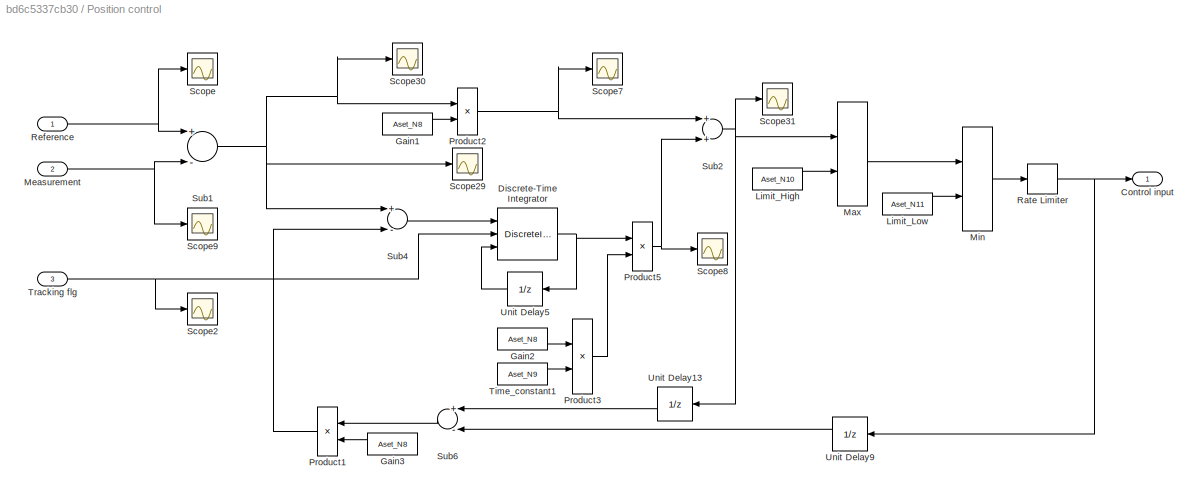
BLOCK [SubSystem] Position control
  Ports = [3, 1]
  RequestExecContextInheritance = off
BLOCK [Outport] Position control/Control input
  IconDisplay = Port number
  VectorParamsAs1DForOutWhenUnconnected = off
BLOCK [DiscreteIntegrator] Position control/Discrete-Time Integrator
  ExternalReset = level
  ICPrevOutput = DiscIntNeverNeededParam
  ICPrevScaledInput = DiscIntNeverNeededParam
  InitialConditionSetting = Auto
  InitialConditionSource = external
  Ports = [3, 1]
  SampleTime = Sample_time
BLOCK [Constant] Position control/Gain1
  OutDataTypeStr = double
  SampleTime = Sample_time
  Value = Aset_N8
BLOCK [Constant] Position control/Gain2
  OutDataTypeStr = double
  SampleTime = Sample_time
  Value = Aset_N8
BLOCK [Constant] Position control/Gain3
  OutDataTypeStr = double
  SampleTime = Sample_time
  Value = Aset_N8
BLOCK [Constant] Position control/Limit_High
  OutDataTypeStr = double
  SampleTime = Sample_time
  Value = Aset_N10
BLOCK [Constant] Position control/Limit_Low
  OutDataTypeStr = double
  SampleTime = Sample_time
  Value = Aset_N11
BLOCK [MinMax] Position control/Max
  Function = max
  InputSameDT = off
  Inputs = 2
  Ports = [2, 1]
  SaturateOnIntegerOverflow = off
BLOCK [Inport] Position control/Measurement
  IconDisplay = Port number
  Port = 2
BLOCK [MinMax] Position control/Min
  InputSameDT = off
  Inputs = 2
  Ports = [2, 1]
  SaturateOnIntegerOverflow = off
BLOCK [Product] Position control/Product1
  InputSameDT = off
  Inputs = */
  OutDataTypeStr = double
  Ports = [2, 1]
  SaturateOnIntegerOverflow = off
BLOCK [Product] Position control/Product2
  InputSameDT = off
  OutDataTypeStr = double
  Ports = [2, 1]
  SaturateOnIntegerOverflow = off
BLOCK [Product] Position control/Product3
  InputSameDT = off
  Inputs = */
  OutDataTypeStr = double
  Ports = [2, 1]
  SaturateOnIntegerOverflow = off
BLOCK [Product] Position control/Product5
  InputSameDT = off
  Inputs = **
  OutDataTypeStr = double
  Ports = [2, 1]
  SaturateOnIntegerOverflow = off
BLOCK [RateLimiter] Position control/Rate Limiter
  FallingSlewLimit = -1*Aset_N13
  RisingSlewLimit = Aset_N12
  SampleTimeMode = inherited
BLOCK [Inport] Position control/Reference
  IconDisplay = Port number
BLOCK [Scope] Position control/Scope
  Floating = off
  NumInputPorts = 1
  Ports = [1]
  ScopeSpecificationString = Simulink.scopes.TimeScopeBlockCfg('CurrentConfiguration', extmgr.ConfigurationSet(extmgr.Configuration('Core','General UI',true),extmgr.Configuration('Core','Source UI',true),extmgr.Configuration('Sources','WiredSimulink',true,'DataLoggingVariableName','ScopeData1'),extmgr.Configuration('Visuals','Time Domain',true,'SerializedDisplays',{struct('MinYLimReal','-125.00000','MaxYLimReal','1030.30303',...<+1432ch>
BLOCK [Scope] Position control/Scope2
  Floating = off
  NumInputPorts = 1
  Ports = [1]
  ScopeSpecificationString = Simulink.scopes.TimeScopeBlockCfg('CurrentConfiguration', extmgr.ConfigurationSet(extmgr.Configuration('Core','General UI',true),extmgr.Configuration('Core','Source UI',true),extmgr.Configuration('Sources','WiredSimulink',true,'DataLoggingVariableName','ScopeData2'),extmgr.Configuration('Visuals','Time Domain',true,'SerializedDisplays',{struct('MinYLimReal','-0.125','MaxYLimReal','1.125','YLabelRe...<+1424ch>
BLOCK [Scope] Position control/Scope29
  Floating = off
  NumInputPorts = 1
  Ports = [1]
  ScopeSpecificationString = Simulink.scopes.TimeScopeBlockCfg('CurrentConfiguration', extmgr.ConfigurationSet(extmgr.Configuration('Core','General UI',true),extmgr.Configuration('Core','Source UI',true),extmgr.Configuration('Sources','WiredSimulink',true,'DataLoggingVariableName','ScopeData32'),extmgr.Configuration('Visuals','Time Domain',true,'SerializedDisplays',{struct('MinYLimReal','-236.80295','MaxYLimReal','1137.42255'...<+1455ch>
BLOCK [Scope] Position control/Scope30
  Floating = off
  NumInputPorts = 1
  Ports = [1]
  ScopeSpecificationString = Simulink.scopes.TimeScopeBlockCfg('CurrentConfiguration', extmgr.ConfigurationSet(extmgr.Configuration('Core','General UI',true),extmgr.Configuration('Core','Source UI',true),extmgr.Configuration('Sources','WiredSimulink',true,'DataLoggingVariableName','ScopeData33'),extmgr.Configuration('Visuals','Time Domain',true,'SerializedDisplays',{struct('MinYLimReal','-125.00000','MaxYLimReal','1125.00000'...<+1455ch>
BLOCK [Scope] Position control/Scope31
  Floating = off
  NumInputPorts = 1
  Ports = [1]
  ScopeSpecificationString = Simulink.scopes.TimeScopeBlockCfg('CurrentConfiguration', extmgr.ConfigurationSet(extmgr.Configuration('Core','General UI',true),extmgr.Configuration('Core','Source UI',true),extmgr.Configuration('Sources','WiredSimulink',true,'DataLoggingVariableName','ScopeData34'),extmgr.Configuration('Visuals','Time Domain',true,'SerializedDisplays',{struct('MinYLimReal','-95.28375','MaxYLimReal','295.75519','...<+1447ch>
BLOCK [Scope] Position control/Scope7
  Floating = off
  NumInputPorts = 1
  Ports = [1]
  ScopeSpecificationString = Simulink.scopes.TimeScopeBlockCfg('CurrentConfiguration', extmgr.ConfigurationSet(extmgr.Configuration('Core','General UI',true),extmgr.Configuration('Core','Source UI',true),extmgr.Configuration('Sources','WiredSimulink',true,'DataLoggingVariableName','ScopeData7'),extmgr.Configuration('Visuals','Time Domain',true,'SerializedDisplays',{struct('MinYLimReal','-12.5','MaxYLimReal','112.5','YLabelRea...<+1426ch>
BLOCK [Scope] Position control/Scope8
  Floating = off
  NumInputPorts = 1
  Ports = [1]
  ScopeSpecificationString = Simulink.scopes.TimeScopeBlockCfg('CurrentConfiguration', extmgr.ConfigurationSet(extmgr.Configuration('Core','General UI',true),extmgr.Configuration('Core','Source UI',true),extmgr.Configuration('Sources','WiredSimulink',true,'DataLoggingVariableName','ScopeData8'),extmgr.Configuration('Visuals','Time Domain',true,'SerializedDisplays',{struct('MinYLimReal','-1.25','MaxYLimReal','11.25','YLabelRea...<+1426ch>
BLOCK [Scope] Position control/Scope9
  Floating = off
  NumInputPorts = 1
  Ports = [1]
  ScopeSpecificationString = Simulink.scopes.TimeScopeBlockCfg('CurrentConfiguration', extmgr.ConfigurationSet(extmgr.Configuration('Core','General UI',true),extmgr.Configuration('Core','Source UI',true),extmgr.Configuration('Sources','WiredSimulink',true,'DataLoggingVariableName','ScopeData9'),extmgr.Configuration('Visuals','Time Domain',true,'SerializedDisplays',{struct('MinYLimReal','-0.44428','MaxYLimReal','1.16048','YLab...<+1443ch>
BLOCK [Sum] Position control/Sub1
  InputSameDT = off
  Inputs = +-
  OutDataTypeStr = double
  Ports = [2, 1]
  SaturateOnIntegerOverflow = off
BLOCK [Sum] Position control/Sub2
  InputSameDT = off
  OutDataTypeStr = double
  Ports = [2, 1]
  SaturateOnIntegerOverflow = off
BLOCK [Sum] Position control/Sub4
  InputSameDT = off
  Inputs = +-
  OutDataTypeStr = double
  Ports = [2, 1]
  SaturateOnIntegerOverflow = off
BLOCK [Sum] Position control/Sub6
  InputSameDT = off
  Inputs = +-
  OutDataTypeStr = double
  Ports = [2, 1]
  SaturateOnIntegerOverflow = off
BLOCK [Constant] Position control/Time_constant1
  OutDataTypeStr = double
  SampleTime = Sample_time
  Value = Aset_N9
BLOCK [Inport] Position control/Tracking flg
  IconDisplay = Port number
  Port = 3
BLOCK [UnitDelay] Position control/Unit Delay13
  HasFrameUpgradeWarning = on
  SampleTime = Sample_time
BLOCK [UnitDelay] Position control/Unit Delay5
  HasFrameUpgradeWarning = on
  SampleTime = Sample_time
BLOCK [UnitDelay] Position control/Unit Delay9
  HasFrameUpgradeWarning = on
  SampleTime = Sample_time
BLOCK [Constant] Position_delta
  OutDataTypeStr = double
  SampleTime = Sample_time
  Value = Aset_N7
BLOCK [Constant] Position_ref_close
  OutDataTypeStr = double
  SampleTime = Sample_time
  Value = Aset_N6
BLOCK [Constant] Position_ref_close1
  OutDataTypeStr = double
  SampleTime = Sample_time
  Value = Aset_N6
BLOCK [Constant] Position_ref_open
  OutDataTypeStr = double
  SampleTime = Sample_time
  Value = Aset_N5
BLOCK [ToWorkspace] Position_reference[m]
  FixptAsFi = on
  MaxDataPoints = inf
  Ports = [1]
  SampleTime = Sample_time
  VariableName = Aout_N3
BLOCK [Outport] Position_reference_out
  IconDisplay = Port number
  Port = 3
  SampleTime = Sample_time
  VectorParamsAs1DForOutWhenUnconnected = off
BLOCK [Inport] Position_sensor[m]
  IconDisplay = Port number
  OutDataTypeStr = double
  SampleTime = Sample_time
  Unit = mm
BLOCK [Inport] Pressure_sensor[kPa]
  IconDisplay = Port number
  OutDataTypeStr = double
  Port = 3
  SampleTime = Sample_time
  Unit = kPa
BLOCK [RateTransition] Rate Transition
  OutPortSampleTime = Sample_time
BLOCK [RateTransition] Rate Transition1
  OutPortSampleTime = Sample_time
BLOCK [RateTransition] Rate Transition2
  OutPortSampleTime = Sample_time
BLOCK [RateTransition] Rate Transition3
  OutPortSampleTime = Sample_time
BLOCK [RateTransition] Rate Transition4
  OutPortSampleTime = Sample_time
BLOCK [RateTransition] Rate Transition5
  OutPortSampleTime = Sample_time
BLOCK [RateTransition] Rate Transition6
  OutPortSampleTime = Sample_time
BLOCK [RateTransition] Rate Transition7
  OutPortSampleTime = Sample_time
BLOCK [RelationalOperator] Relational Operator1
  InputSameDT = off
  OutDataTypeStr = boolean
  Ports = [2, 1]
BLOCK [SubSystem] SSR
  Ports = [2, 1]
  RequestExecContextInheritance = off
BLOCK [Logic] SSR/Logical Operator1
  AllPortsSameDT = off
  Operator = OR
  OutDataTypeStr = boolean
  Ports = [2, 1]
BLOCK [Logic] SSR/Logical Operator2
  AllPortsSameDT = off
  OutDataTypeStr = boolean
  Ports = [2, 1]
BLOCK [Logic] SSR/Logical Operator5
  AllPortsSameDT = off
  Operator = NOT
  OutDataTypeStr = boolean
  Ports = [1, 1]
BLOCK [Outport] SSR/Out
  IconDisplay = Port number
  VectorParamsAs1DForOutWhenUnconnected = off
BLOCK [Inport] SSR/R
  IconDisplay = Port number
  Port = 2
BLOCK [Inport] SSR/S
  IconDisplay = Port number
BLOCK [UnitDelay] SSR/Unit Delay
  HasFrameUpgradeWarning = on
  InitialCondition = State_SSR_SSR
  SampleTime = Sample_time
BLOCK [SubSystem] SSR1
  Ports = [2, 1]
  RequestExecContextInheritance = off
BLOCK [Logic] SSR1/Logical Operator1
  AllPortsSameDT = off
  Operator = OR
  OutDataTypeStr = boolean
  Ports = [2, 1]
BLOCK [Logic] SSR1/Logical Operator2
  AllPortsSameDT = off
  OutDataTypeStr = boolean
  Ports = [2, 1]
BLOCK [Logic] SSR1/Logical Operator5
  AllPortsSameDT = off
  Operator = NOT
  OutDataTypeStr = boolean
  Ports = [1, 1]
BLOCK [Outport] SSR1/Out
  IconDisplay = Port number
  VectorParamsAs1DForOutWhenUnconnected = off
BLOCK [Inport] SSR1/R
  IconDisplay = Port number
  Port = 2
BLOCK [Inport] SSR1/S
  IconDisplay = Port number
BLOCK [UnitDelay] SSR1/Unit Delay
  HasFrameUpgradeWarning = on
  InitialCondition = State_SSR_SSR1
  SampleTime = Sample_time
BLOCK [SubSystem] SSR2
  Ports = [2, 1]
  RequestExecContextInheritance = off
BLOCK [Logic] SSR2/Logical Operator1
  AllPortsSameDT = off
  Operator = OR
  OutDataTypeStr = boolean
  Ports = [2, 1]
BLOCK [Logic] SSR2/Logical Operator2
  AllPortsSameDT = off
  OutDataTypeStr = boolean
  Ports = [2, 1]
BLOCK [Logic] SSR2/Logical Operator5
  AllPortsSameDT = off
  Operator = NOT
  OutDataTypeStr = boolean
  Ports = [1, 1]
BLOCK [Outport] SSR2/Out
  IconDisplay = Port number
  VectorParamsAs1DForOutWhenUnconnected = off
BLOCK [Inport] SSR2/R
  IconDisplay = Port number
  Port = 2
BLOCK [Inport] SSR2/S
  IconDisplay = Port number
BLOCK [UnitDelay] SSR2/Unit Delay
  HasFrameUpgradeWarning = on
  InitialCondition = State_SSR_SSR2
  SampleTime = Sample_time
BLOCK [SubSystem] SSR3
  Ports = [2, 1]
  RequestExecContextInheritance = off
BLOCK [Logic] SSR3/Logical Operator1
  AllPortsSameDT = off
  Operator = OR
  OutDataTypeStr = boolean
  Ports = [2, 1]
BLOCK [Logic] SSR3/Logical Operator2
  AllPortsSameDT = off
  OutDataTypeStr = boolean
  Ports = [2, 1]
BLOCK [Logic] SSR3/Logical Operator5
  AllPortsSameDT = off
  Operator = NOT
  OutDataTypeStr = boolean
  Ports = [1, 1]
BLOCK [Outport] SSR3/Out
  IconDisplay = Port number
  VectorParamsAs1DForOutWhenUnconnected = off
BLOCK [Inport] SSR3/R
  IconDisplay = Port number
  Port = 2
BLOCK [Inport] SSR3/S
  IconDisplay = Port number
BLOCK [UnitDelay] SSR3/Unit Delay
  HasFrameUpgradeWarning = on
  InitialCondition = State_SSR_SSR3
  SampleTime = Sample_time
BLOCK [SubSystem] SSR4
  Ports = [2, 1]
  RequestExecContextInheritance = off
BLOCK [Logic] SSR4/Logical Operator1
  AllPortsSameDT = off
  Operator = OR
  OutDataTypeStr = boolean
  Ports = [2, 1]
BLOCK [Logic] SSR4/Logical Operator2
  AllPortsSameDT = off
  OutDataTypeStr = boolean
  Ports = [2, 1]
BLOCK [Logic] SSR4/Logical Operator5
  AllPortsSameDT = off
  Operator = NOT
  OutDataTypeStr = boolean
  Ports = [1, 1]
BLOCK [Outport] SSR4/Out
  IconDisplay = Port number
  VectorParamsAs1DForOutWhenUnconnected = off
BLOCK [Inport] SSR4/R
  IconDisplay = Port number
  Port = 2
BLOCK [Inport] SSR4/S
  IconDisplay = Port number
BLOCK [UnitDelay] SSR4/Unit Delay
  HasFrameUpgradeWarning = on
  InitialCondition = State_SSR_SSR4
  SampleTime = Sample_time
BLOCK [Scope] Scope1
  Floating = off
  NumInputPorts = 1
  Ports = [1]
  ScopeSpecificationString = Simulink.scopes.TimeScopeBlockCfg('CurrentConfiguration', extmgr.ConfigurationSet(extmgr.Configuration('Core','General UI',true),extmgr.Configuration('Core','Source UI',true),extmgr.Configuration('Sources','WiredSimulink',true,'DataLoggingVariableName','ScopeData2'),extmgr.Configuration('Visuals','Time Domain',true,'SerializedDisplays',{struct('MinYLimReal','-1.00000','MaxYLimReal','1.00000','YLab...<+1417ch>
BLOCK [Scope] Scope10
  Floating = off
  NumInputPorts = 1
  Ports = [1]
  ScopeSpecificationString = Simulink.scopes.TimeScopeBlockCfg('CurrentConfiguration', extmgr.ConfigurationSet(extmgr.Configuration('Core','General UI',true),extmgr.Configuration('Core','Source UI',true),extmgr.Configuration('Sources','WiredSimulink',true,'DataLoggingVariableName','ScopeData10'),extmgr.Configuration('Visuals','Time Domain',true,'SerializedDisplays',{struct('MinYLimReal','-0.125','MaxYLimReal','1.125','YLabelR...<+1396ch>
BLOCK [Scope] Scope11
  Floating = off
  NumInputPorts = 1
  Ports = [1]
  ScopeSpecificationString = Simulink.scopes.TimeScopeBlockCfg('CurrentConfiguration', extmgr.ConfigurationSet(extmgr.Configuration('Core','General UI',true),extmgr.Configuration('Core','Source UI',true),extmgr.Configuration('Sources','WiredSimulink',true,'DataLoggingVariableName','ScopeData11'),extmgr.Configuration('Visuals','Time Domain',true,'SerializedDisplays',{struct('MinYLimReal','-0.03719','MaxYLimReal','1.06129','YLa...<+1408ch>
BLOCK [Scope] Scope12
  Floating = off
  NumInputPorts = 1
  Ports = [1]
  ScopeSpecificationString = Simulink.scopes.TimeScopeBlockCfg('CurrentConfiguration', extmgr.ConfigurationSet(extmgr.Configuration('Core','General UI',true),extmgr.Configuration('Core','Source UI',true),extmgr.Configuration('Sources','WiredSimulink',true,'DataLoggingVariableName','ScopeData12'),extmgr.Configuration('Visuals','Time Domain',true,'SerializedDisplays',{struct('MinYLimReal','-0.125','MaxYLimReal','1.125','YLabelR...<+1396ch>
BLOCK [Scope] Scope13
  Floating = off
  NumInputPorts = 1
  Ports = [1]
  ScopeSpecificationString = Simulink.scopes.TimeScopeBlockCfg('CurrentConfiguration', extmgr.ConfigurationSet(extmgr.Configuration('Core','General UI',true),extmgr.Configuration('Core','Source UI',true),extmgr.Configuration('Sources','WiredSimulink',true,'DataLoggingVariableName','ScopeData13'),extmgr.Configuration('Visuals','Time Domain',true,'SerializedDisplays',{struct('MinYLimReal','-0.125','MaxYLimReal','1.125','YLabelR...<+1438ch>
BLOCK [Scope] Scope14
  Floating = off
  NumInputPorts = 1
  Ports = [1]
  ScopeSpecificationString = Simulink.scopes.TimeScopeBlockCfg('CurrentConfiguration', extmgr.ConfigurationSet(extmgr.Configuration('Core','General UI',true),extmgr.Configuration('Core','Source UI',true),extmgr.Configuration('Sources','WiredSimulink',true,'DataLoggingVariableName','ScopeData14'),extmgr.Configuration('Visuals','Time Domain',true,'SerializedDisplays',{struct('MinYLimReal','-1.00000','MaxYLimReal','1.00000','YLa...<+1408ch>
BLOCK [Scope] Scope15
  Floating = off
  NumInputPorts = 1
  Ports = [1]
  ScopeSpecificationString = Simulink.scopes.TimeScopeBlockCfg('CurrentConfiguration', extmgr.ConfigurationSet(extmgr.Configuration('Core','General UI',true),extmgr.Configuration('Core','Source UI',true),extmgr.Configuration('Sources','WiredSimulink',true,'DataLoggingVariableName','ScopeData15'),extmgr.Configuration('Visuals','Time Domain',true,'SerializedDisplays',{struct('MinYLimReal','-0.125','MaxYLimReal','1.125','YLabelR...<+1426ch>
BLOCK [Scope] Scope16
  Floating = off
  NumInputPorts = 1
  Ports = [1]
  ScopeSpecificationString = Simulink.scopes.TimeScopeBlockCfg('CurrentConfiguration', extmgr.ConfigurationSet(extmgr.Configuration('Core','General UI',true),extmgr.Configuration('Core','Source UI',true),extmgr.Configuration('Sources','WiredSimulink',true,'DataLoggingVariableName','ScopeData16'),extmgr.Configuration('Visuals','Time Domain',true,'SerializedDisplays',{struct('MinYLimReal','-0.08516','MaxYLimReal','1.125','YLabe...<+1413ch>
BLOCK [Scope] Scope17
  Floating = off
  NumInputPorts = 1
  Ports = [1]
  ScopeSpecificationString = Simulink.scopes.TimeScopeBlockCfg('CurrentConfiguration', extmgr.ConfigurationSet(extmgr.Configuration('Core','General UI',true),extmgr.Configuration('Core','Source UI',true),extmgr.Configuration('Sources','WiredSimulink',true,'DataLoggingVariableName','ScopeData17'),extmgr.Configuration('Visuals','Time Domain',true,'SerializedDisplays',{struct('MinYLimReal','-125.00000','MaxYLimReal','1125.00000'...<+1425ch>
BLOCK [Scope] Scope18
  Floating = off
  NumInputPorts = 1
  Ports = [1]
  ScopeSpecificationString = Simulink.scopes.TimeScopeBlockCfg('CurrentConfiguration', extmgr.ConfigurationSet(extmgr.Configuration('Core','General UI',true),extmgr.Configuration('Core','Source UI',true),extmgr.Configuration('Sources','WiredSimulink',true,'DataLoggingVariableName','ScopeData20'),extmgr.Configuration('Visuals','Time Domain',true,'SerializedDisplays',{struct('MinYLimReal','-109999.00000','MaxYLimReal','-89999.0...<+1433ch>
BLOCK [Scope] Scope19
  Floating = off
  NumInputPorts = 1
  Ports = [1]
  ScopeSpecificationString = Simulink.scopes.TimeScopeBlockCfg('CurrentConfiguration', extmgr.ConfigurationSet(extmgr.Configuration('Core','General UI',true),extmgr.Configuration('Core','Source UI',true),extmgr.Configuration('Sources','WiredSimulink',true,'DataLoggingVariableName','ScopeData21'),extmgr.Configuration('Visuals','Time Domain',true,'SerializedDisplays',{struct('MinYLimReal','0.009','MaxYLimReal','0.011','YLabelRe...<+1381ch>
BLOCK [Scope] Scope2
  Floating = off
  NumInputPorts = 1
  Ports = [1]
  ScopeSpecificationString = Simulink.scopes.TimeScopeBlockCfg('CurrentConfiguration', extmgr.ConfigurationSet(extmgr.Configuration('Core','General UI',true),extmgr.Configuration('Core','Source UI',true),extmgr.Configuration('Sources','WiredSimulink',true,'DataLoggingVariableName','ScopeData1'),extmgr.Configuration('Visuals','Time Domain',true,'SerializedDisplays',{struct('MinYLimReal','0.9','MaxYLimReal','1.1','YLabelReal','...<+1387ch>
BLOCK [Scope] Scope20
  Floating = off
  NumInputPorts = 1
  Ports = [1]
  ScopeSpecificationString = Simulink.scopes.TimeScopeBlockCfg('CurrentConfiguration', extmgr.ConfigurationSet(extmgr.Configuration('Core','General UI',true),extmgr.Configuration('Core','Source UI',true),extmgr.Configuration('Sources','WiredSimulink',true,'DataLoggingVariableName','ScopeData22'),extmgr.Configuration('Visuals','Time Domain',true,'SerializedDisplays',{struct('MinYLimReal','-0.0524','MaxYLimReal','1.08019','YLab...<+1450ch>
BLOCK [Scope] Scope21
  Floating = off
  NumInputPorts = 1
  Ports = [1]
  ScopeSpecificationString = Simulink.scopes.TimeScopeBlockCfg('CurrentConfiguration', extmgr.ConfigurationSet(extmgr.Configuration('Core','General UI',true),extmgr.Configuration('Core','Source UI',true),extmgr.Configuration('Sources','WiredSimulink',true,'DataLoggingVariableName','ScopeData23'),extmgr.Configuration('Visuals','Time Domain',true,'SerializedDisplays',{struct('MinYLimReal','-0.125','MaxYLimReal','1.125','YLabelR...<+1425ch>
BLOCK [Scope] Scope22
  Floating = off
  NumInputPorts = 1
  Ports = [1]
  ScopeSpecificationString = Simulink.scopes.TimeScopeBlockCfg('CurrentConfiguration', extmgr.ConfigurationSet(extmgr.Configuration('Core','General UI',true),extmgr.Configuration('Core','Source UI',true),extmgr.Configuration('Sources','WiredSimulink',true,'DataLoggingVariableName','ScopeData25'),extmgr.Configuration('Visuals','Time Domain',true,'SerializedDisplays',{struct('MinYLimReal','-1.1517','MaxYLimReal','2.14761','YLab...<+1399ch>
BLOCK [Scope] Scope23
  Floating = off
  NumInputPorts = 1
  Ports = [1]
  ScopeSpecificationString = Simulink.scopes.TimeScopeBlockCfg('CurrentConfiguration', extmgr.ConfigurationSet(extmgr.Configuration('Core','General UI',true),extmgr.Configuration('Core','Source UI',true),extmgr.Configuration('Sources','WiredSimulink',true,'DataLoggingVariableName','ScopeData26'),extmgr.Configuration('Visuals','Time Domain',true,'SerializedDisplays',{struct('MinYLimReal','-0.125','MaxYLimReal','1.125','YLabelR...<+1396ch>
BLOCK [Scope] Scope24
  Floating = off
  NumInputPorts = 1
  Ports = [1]
  ScopeSpecificationString = Simulink.scopes.TimeScopeBlockCfg('CurrentConfiguration', extmgr.ConfigurationSet(extmgr.Configuration('Core','General UI',true),extmgr.Configuration('Core','Source UI',true),extmgr.Configuration('Sources','WiredSimulink',true,'DataLoggingVariableName','ScopeData27'),extmgr.Configuration('Visuals','Time Domain',true,'SerializedDisplays',{struct('MinYLimReal','-0.125','MaxYLimReal','1.125','YLabelR...<+1409ch>
BLOCK [Scope] Scope25
  Floating = off
  NumInputPorts = 1
  Ports = [1]
  ScopeSpecificationString = Simulink.scopes.TimeScopeBlockCfg('CurrentConfiguration', extmgr.ConfigurationSet(extmgr.Configuration('Core','General UI',true),extmgr.Configuration('Core','Source UI',true),extmgr.Configuration('Sources','WiredSimulink',true,'DataLoggingVariableName','ScopeData28'),extmgr.Configuration('Visuals','Time Domain',true,'SerializedDisplays',{struct('MinYLimReal','-0.125','MaxYLimReal','1.125','YLabelR...<+1438ch>
BLOCK [Scope] Scope26
  Floating = off
  NumInputPorts = 1
  Ports = [1]
  ScopeSpecificationString = Simulink.scopes.TimeScopeBlockCfg('CurrentConfiguration', extmgr.ConfigurationSet(extmgr.Configuration('Core','General UI',true),extmgr.Configuration('Core','Source UI',true),extmgr.Configuration('Sources','WiredSimulink',true,'DataLoggingVariableName','ScopeData29'),extmgr.Configuration('Visuals','Time Domain',true,'SerializedDisplays',{struct('MinYLimReal','-0.03719','MaxYLimReal','1.02686','YLa...<+1421ch>
BLOCK [Scope] Scope27
  Floating = off
  NumInputPorts = 1
  Ports = [1]
  ScopeSpecificationString = Simulink.scopes.TimeScopeBlockCfg('CurrentConfiguration', extmgr.ConfigurationSet(extmgr.Configuration('Core','General UI',true),extmgr.Configuration('Core','Source UI',true),extmgr.Configuration('Sources','WiredSimulink',true,'DataLoggingVariableName','ScopeData30'),extmgr.Configuration('Visuals','Time Domain',true,'SerializedDisplays',{struct('MinYLimReal','-0.125','MaxYLimReal','1.05441','YLabe...<+1448ch>
BLOCK [Scope] Scope28
  Floating = off
  NumInputPorts = 1
  Ports = [1]
  ScopeSpecificationString = Simulink.scopes.TimeScopeBlockCfg('CurrentConfiguration', extmgr.ConfigurationSet(extmgr.Configuration('Core','General UI',true),extmgr.Configuration('Core','Source UI',true),extmgr.Configuration('Sources','WiredSimulink',true,'DataLoggingVariableName','ScopeData3'),extmgr.Configuration('Visuals','Time Domain',true,'SerializedDisplays',{struct('MinYLimReal','0.9','MaxYLimReal','1.1','YLabelReal','...<+1387ch>
BLOCK [Scope] Scope29
  Floating = off
  NumInputPorts = 1
  Ports = [1]
  ScopeSpecificationString = Simulink.scopes.TimeScopeBlockCfg('CurrentConfiguration', extmgr.ConfigurationSet(extmgr.Configuration('Core','General UI',true),extmgr.Configuration('Core','Source UI',true),extmgr.Configuration('Sources','WiredSimulink',true,'DataLoggingVariableName','ScopeData4'),extmgr.Configuration('Visuals','Time Domain',true,'SerializedDisplays',{struct('MinYLimReal','-1.00000','MaxYLimReal','1.00000','YLab...<+1406ch>
BLOCK [Scope] Scope3
  Floating = off
  NumInputPorts = 1
  Ports = [1]
  ScopeSpecificationString = Simulink.scopes.TimeScopeBlockCfg('CurrentConfiguration', extmgr.ConfigurationSet(extmgr.Configuration('Core','General UI',true),extmgr.Configuration('Core','Source UI',true),extmgr.Configuration('Sources','WiredSimulink',true,'DataLoggingVariableName','ScopeData3'),extmgr.Configuration('Visuals','Time Domain',true,'SerializedDisplays',{struct('MinYLimReal','-0.125','MaxYLimReal','1.125','YLabelRe...<+1413ch>
BLOCK [Scope] Scope30
  Floating = off
  NumInputPorts = 1
  Ports = [1]
  ScopeSpecificationString = Simulink.scopes.TimeScopeBlockCfg('CurrentConfiguration', extmgr.ConfigurationSet(extmgr.Configuration('Core','General UI',true),extmgr.Configuration('Core','Source UI',true),extmgr.Configuration('Sources','WiredSimulink',true,'DataLoggingVariableName','ScopeData4'),extmgr.Configuration('Visuals','Time Domain',true,'SerializedDisplays',{struct('MinYLimReal','-0.125','MaxYLimReal','1.125','YLabelRe...<+1411ch>
BLOCK [Scope] Scope31
  Floating = off
  NumInputPorts = 1
  Ports = [1]
  ScopeSpecificationString = Simulink.scopes.TimeScopeBlockCfg('CurrentConfiguration', extmgr.ConfigurationSet(extmgr.Configuration('Core','General UI',true),extmgr.Configuration('Core','Source UI',true),extmgr.Configuration('Sources','WiredSimulink',true,'DataLoggingVariableName','ScopeData5'),extmgr.Configuration('Visuals','Time Domain',true,'SerializedDisplays',{struct('MinYLimReal','-6.25','MaxYLimReal','56.24999','YLabel...<+1447ch>
BLOCK [Scope] Scope32
  Floating = off
  NumInputPorts = 1
  Ports = [1]
  ScopeSpecificationString = Simulink.scopes.TimeScopeBlockCfg('CurrentConfiguration', extmgr.ConfigurationSet(extmgr.Configuration('Core','General UI',true),extmgr.Configuration('Core','Source UI',true),extmgr.Configuration('Sources','WiredSimulink',true,'DataLoggingVariableName','ScopeData35'),extmgr.Configuration('Visuals','Time Domain',true,'SerializedDisplays',{struct('MinYLimReal','-0.125','MaxYLimReal','1.03719','YLabe...<+1411ch>
BLOCK [Scope] Scope33
  Floating = off
  NumInputPorts = 1
  Ports = [1]
  ScopeSpecificationString = Simulink.scopes.TimeScopeBlockCfg('CurrentConfiguration', extmgr.ConfigurationSet(extmgr.Configuration('Core','General UI',true),extmgr.Configuration('Core','Source UI',true),extmgr.Configuration('Sources','WiredSimulink',true,'DataLoggingVariableName','ScopeData36'),extmgr.Configuration('Visuals','Time Domain',true,'SerializedDisplays',{struct('MinYLimReal','-0.125','MaxYLimReal','1.125','YLabelR...<+1409ch>
BLOCK [Scope] Scope34
  Floating = off
  NumInputPorts = 1
  Ports = [1]
  ScopeSpecificationString = Simulink.scopes.TimeScopeBlockCfg('CurrentConfiguration', extmgr.ConfigurationSet(extmgr.Configuration('Core','General UI',true),extmgr.Configuration('Core','Source UI',true),extmgr.Configuration('Sources','WiredSimulink',true,'DataLoggingVariableName','ScopeData37'),extmgr.Configuration('Visuals','Time Domain',true,'SerializedDisplays',{struct('MinYLimReal','-0.125','MaxYLimReal','1.125','YLabelR...<+1396ch>
BLOCK [Scope] Scope35
  Floating = off
  NumInputPorts = 1
  Ports = [1]
  ScopeSpecificationString = Simulink.scopes.TimeScopeBlockCfg('CurrentConfiguration', extmgr.ConfigurationSet(extmgr.Configuration('Core','General UI',true),extmgr.Configuration('Core','Source UI',true),extmgr.Configuration('Sources','WiredSimulink',true,'DataLoggingVariableName','ScopeData6'),extmgr.Configuration('Visuals','Time Domain',true,'SerializedDisplays',{struct('MinYLimReal','-0.125','MaxYLimReal','1.125','YLabelRe...<+1394ch>
BLOCK [Scope] Scope36
  Floating = off
  NumInputPorts = 1
  Ports = [1]
  ScopeSpecificationString = Simulink.scopes.TimeScopeBlockCfg('CurrentConfiguration', extmgr.ConfigurationSet(extmgr.Configuration('Core','General UI',true),extmgr.Configuration('Core','Source UI',true),extmgr.Configuration('Sources','WiredSimulink',true,'DataLoggingVariableName','ScopeData1'),extmgr.Configuration('Visuals','Time Domain',true,'SerializedDisplays',{struct('MinYLimReal','-1.00000','MaxYLimReal','1.00000','YLab...<+1407ch>
BLOCK [Scope] Scope37
  Floating = off
  NumInputPorts = 1
  Ports = [1]
  ScopeSpecificationString = Simulink.scopes.TimeScopeBlockCfg('CurrentConfiguration', extmgr.ConfigurationSet(extmgr.Configuration('Core','General UI',true),extmgr.Configuration('Core','Source UI',true),extmgr.Configuration('Sources','WiredSimulink',true,'DataLoggingVariableName','ScopeData1'),extmgr.Configuration('Visuals','Time Domain',true,'SerializedDisplays',{struct('MinYLimReal','-4.33518','MaxYLimReal','11.5928','YLab...<+1439ch>
BLOCK [Scope] Scope38
  Floating = off
  NumInputPorts = 1
  Ports = [1]
  ScopeSpecificationString = Simulink.scopes.TimeScopeBlockCfg('CurrentConfiguration', extmgr.ConfigurationSet(extmgr.Configuration('Core','General UI',true),extmgr.Configuration('Core','Source UI',true),extmgr.Configuration('Sources','WiredSimulink',true,'DataLoggingVariableName','ScopeData3'),extmgr.Configuration('Visuals','Time Domain',true,'SerializedDisplays',{struct('MinYLimReal','-1.00000','MaxYLimReal','1.00000','YLab...<+1448ch>
BLOCK [Scope] Scope39
  Floating = off
  NumInputPorts = 1
  Ports = [1]
  ScopeSpecificationString = Simulink.scopes.TimeScopeBlockCfg('CurrentConfiguration', extmgr.ConfigurationSet(extmgr.Configuration('Core','General UI',true),extmgr.Configuration('Core','Source UI',true),extmgr.Configuration('Sources','WiredSimulink',true,'DataLoggingVariableName','ScopeData1'),extmgr.Configuration('Visuals','Time Domain',true,'SerializedDisplays',{struct('MinYLimReal','-0.125','MaxYLimReal','1.125','YLabelRe...<+1409ch>
BLOCK [Scope] Scope4
  Floating = off
  NumInputPorts = 1
  Ports = [1]
  ScopeSpecificationString = Simulink.scopes.TimeScopeBlockCfg('CurrentConfiguration', extmgr.ConfigurationSet(extmgr.Configuration('Core','General UI',true),extmgr.Configuration('Core','Source UI',true),extmgr.Configuration('Sources','WiredSimulink',true,'DataLoggingVariableName','ScopeData4'),extmgr.Configuration('Visuals','Time Domain',true,'SerializedDisplays',{struct('MinYLimReal','-0.08019','MaxYLimReal','0.72171','YLab...<+1420ch>
BLOCK [Scope] Scope40
  Floating = off
  NumInputPorts = 1
  Ports = [1]
  ScopeSpecificationString = Simulink.scopes.TimeScopeBlockCfg('CurrentConfiguration', extmgr.ConfigurationSet(extmgr.Configuration('Core','General UI',true),extmgr.Configuration('Core','Source UI',true),extmgr.Configuration('Sources','WiredSimulink',true,'DataLoggingVariableName','ScopeData2'),extmgr.Configuration('Visuals','Time Domain',true,'SerializedDisplays',{struct('MinYLimReal','-0.05785','MaxYLimReal','1.06474','YLab...<+1436ch>
BLOCK [Scope] Scope41
  Floating = off
  NumInputPorts = 1
  Ports = [1]
  ScopeSpecificationString = Simulink.scopes.TimeScopeBlockCfg('CurrentConfiguration', extmgr.ConfigurationSet(extmgr.Configuration('Core','General UI',true),extmgr.Configuration('Core','Source UI',true),extmgr.Configuration('Sources','WiredSimulink',true,'DataLoggingVariableName','ScopeData3'),extmgr.Configuration('Visuals','Time Domain',true,'SerializedDisplays',{struct('MinYLimReal','-0.125','MaxYLimReal','1.04063','YLabel...<+1402ch>
BLOCK [Scope] Scope42
  Floating = off
  NumInputPorts = 1
  Ports = [1]
  ScopeSpecificationString = Simulink.scopes.TimeScopeBlockCfg('CurrentConfiguration', extmgr.ConfigurationSet(extmgr.Configuration('Core','General UI',true),extmgr.Configuration('Core','Source UI',true),extmgr.Configuration('Sources','WiredSimulink',true,'DataLoggingVariableName','ScopeData5'),extmgr.Configuration('Visuals','Time Domain',true,'SerializedDisplays',{struct('MinYLimReal','-1.00000','MaxYLimReal','1.00000','YLab...<+1419ch>
BLOCK [Scope] Scope43
  Floating = off
  NumInputPorts = 1
  Ports = [1]
  ScopeSpecificationString = Simulink.scopes.TimeScopeBlockCfg('CurrentConfiguration', extmgr.ConfigurationSet(extmgr.Configuration('Core','General UI',true),extmgr.Configuration('Core','Source UI',true),extmgr.Configuration('Sources','WiredSimulink',true,'DataLoggingVariableName','ScopeData2'),extmgr.Configuration('Visuals','Time Domain',true,'SerializedDisplays',{struct('MinYLimReal','-1.00000','MaxYLimReal','1.00000','YLab...<+1421ch>
BLOCK [Scope] Scope44
  Floating = off
  NumInputPorts = 1
  Ports = [1]
  ScopeSpecificationString = Simulink.scopes.TimeScopeBlockCfg('CurrentConfiguration', extmgr.ConfigurationSet(extmgr.Configuration('Core','General UI',true),extmgr.Configuration('Core','Source UI',true),extmgr.Configuration('Sources','WiredSimulink',true,'DataLoggingVariableName','ScopeData3'),extmgr.Configuration('Visuals','Time Domain',true,'SerializedDisplays',{struct('MinYLimReal','-0.08196','MaxYLimReal','1.0062','YLabe...<+1403ch>
BLOCK [Scope] Scope6
  Floating = off
  NumInputPorts = 1
  Ports = [1]
  ScopeSpecificationString = Simulink.scopes.TimeScopeBlockCfg('CurrentConfiguration', extmgr.ConfigurationSet(extmgr.Configuration('Core','General UI',true),extmgr.Configuration('Core','Source UI',true),extmgr.Configuration('Sources','WiredSimulink',true,'DataLoggingVariableName','ScopeData6'),extmgr.Configuration('Visuals','Time Domain',true,'SerializedDisplays',{struct('MinYLimReal','-1.00000','MaxYLimReal','1.00000','YLab...<+1439ch>
BLOCK [Scope] Scope7
  Floating = off
  NumInputPorts = 1
  Ports = [1]
  ScopeSpecificationString = Simulink.scopes.TimeScopeBlockCfg('CurrentConfiguration', extmgr.ConfigurationSet(extmgr.Configuration('Core','General UI',true),extmgr.Configuration('Core','Source UI',true),extmgr.Configuration('Sources','WiredSimulink',true,'DataLoggingVariableName','ScopeData2'),extmgr.Configuration('Visuals','Time Domain',true,'SerializedDisplays',{struct('MinYLimReal','-0.125','MaxYLimReal','1.125','YLabelRe...<+1438ch>
BLOCK [Scope] Scope8
  Floating = off
  NumInputPorts = 1
  Ports = [1]
  ScopeSpecificationString = Simulink.scopes.TimeScopeBlockCfg('CurrentConfiguration', extmgr.ConfigurationSet(extmgr.Configuration('Core','General UI',true),extmgr.Configuration('Core','Source UI',true),extmgr.Configuration('Sources','WiredSimulink',true,'DataLoggingVariableName','ScopeData40'),extmgr.Configuration('Visuals','Time Domain',true,'SerializedDisplays',{struct('MinYLimReal','-1.1517','MaxYLimReal','2.14761','YLab...<+1428ch>
BLOCK [Scope] Scope9
  Floating = off
  NumInputPorts = 1
  Ports = [1]
  ScopeSpecificationString = Simulink.scopes.TimeScopeBlockCfg('CurrentConfiguration', extmgr.ConfigurationSet(extmgr.Configuration('Core','General UI',true),extmgr.Configuration('Core','Source UI',true),extmgr.Configuration('Sources','WiredSimulink',true,'DataLoggingVariableName','ScopeData41'),extmgr.Configuration('Visuals','Time Domain',true,'SerializedDisplays',{struct('MinYLimReal','-1.00000','MaxYLimReal','1.00000','YLa...<+1461ch>
BLOCK [Sum] Sub
  InputSameDT = off
  Inputs = +-
  OutDataTypeStr = double
  Ports = [2, 1]
  SaturateOnIntegerOverflow = off
BLOCK [Switch] Switch
  Criteria = u2 > Threshold
  InputSameDT = off
  OutDataTypeStr = int32
  SaturateOnIntegerOverflow = off
  Threshold = 0.5
BLOCK [Switch] Switch1
  Criteria = u2 > Threshold
  InputSameDT = off
  OutDataTypeStr = int32
  SaturateOnIntegerOverflow = off
  Threshold = 0.5
BLOCK [Switch] Switch2
  Criteria = u2 > Threshold
  InputSameDT = off
  OutDataTypeStr = int32
  SaturateOnIntegerOverflow = off
  Threshold = 0.5
BLOCK [Switch] Switch3
  Criteria = u2 > Threshold
  InputSameDT = off
  OutDataTypeStr = double
  SaturateOnIntegerOverflow = off
  Threshold = 0.5
BLOCK [Switch] Switch4
  Criteria = u2 > Threshold
  InputSameDT = off
  OutDataTypeStr = double
  SaturateOnIntegerOverflow = off
  Threshold = 0.5
BLOCK [Switch] Switch5
  Criteria = u2 > Threshold
  InputSameDT = off
  OutDataTypeStr = double
  SaturateOnIntegerOverflow = off
  Threshold = 0.5
BLOCK [Switch] Switch6
  Criteria = u2 > Threshold
  InputSameDT = off
  OutDataTypeStr = double
  SaturateOnIntegerOverflow = off
  Threshold = 0.5
BLOCK [Terminator] Terminator
BLOCK [UnitDelay] Unit Delay1
  HasFrameUpgradeWarning = on
  SampleTime = Sample_time
BLOCK [UnitDelay] Unit Delay10
  HasFrameUpgradeWarning = on
  SampleTime = Sample_time
BLOCK [UnitDelay] Unit Delay11
  HasFrameUpgradeWarning = on
  SampleTime = Sample_time
BLOCK [UnitDelay] Unit Delay12
  HasFrameUpgradeWarning = on
  SampleTime = Sample_time
BLOCK [UnitDelay] Unit Delay13
  HasFrameUpgradeWarning = on
  SampleTime = Sample_time
BLOCK [UnitDelay] Unit Delay14
  HasFrameUpgradeWarning = on
  InitialCondition = 1
  SampleTime = Sample_time
BLOCK [UnitDelay] Unit Delay15
  HasFrameUpgradeWarning = on
  SampleTime = Sample_time
BLOCK [UnitDelay] Unit Delay16
  HasFrameUpgradeWarning = on
  SampleTime = Sample_time
BLOCK [UnitDelay] Unit Delay2
  HasFrameUpgradeWarning = on
  SampleTime = Sample_time
BLOCK [UnitDelay] Unit Delay3
  HasFrameUpgradeWarning = on
  SampleTime = Sample_time
BLOCK [UnitDelay] Unit Delay4
  HasFrameUpgradeWarning = on
  SampleTime = Sample_time
BLOCK [UnitDelay] Unit Delay5
  HasFrameUpgradeWarning = on
  SampleTime = Sample_time
BLOCK [UnitDelay] Unit Delay6
  HasFrameUpgradeWarning = on
  SampleTime = Sample_time
BLOCK [UnitDelay] Unit Delay7
  HasFrameUpgradeWarning = on
  SampleTime = Sample_time
BLOCK [UnitDelay] Unit Delay8
  HasFrameUpgradeWarning = on
  SampleTime = Sample_time
BLOCK [UnitDelay] Unit Delay9
  HasFrameUpgradeWarning = on
  SampleTime = Sample_time
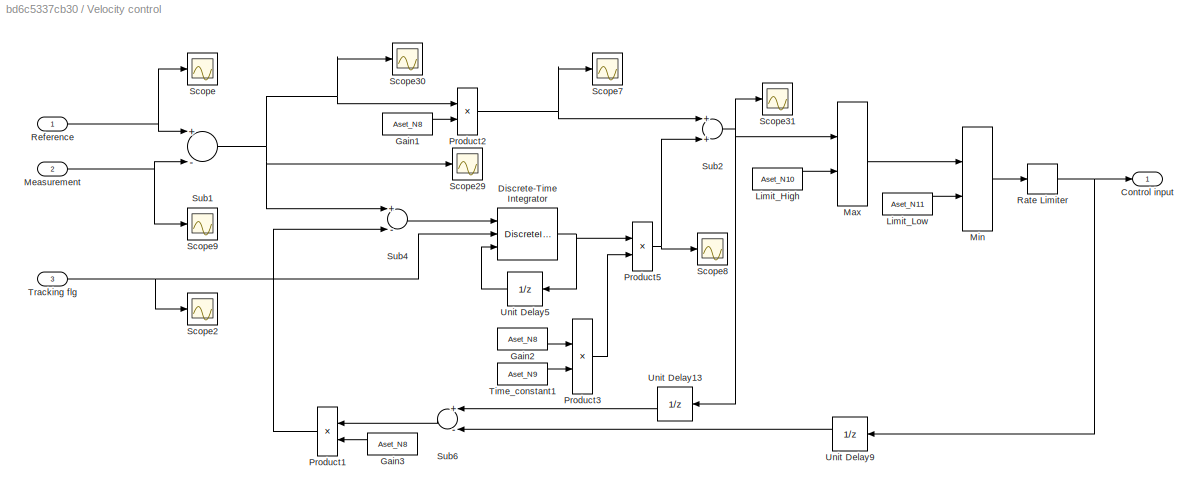
BLOCK [SubSystem] Velocity control
  Ports = [3, 1]
  RequestExecContextInheritance = off
BLOCK [Outport] Velocity control/Control input
  IconDisplay = Port number
  VectorParamsAs1DForOutWhenUnconnected = off
BLOCK [DiscreteIntegrator] Velocity control/Discrete-Time Integrator
  ExternalReset = level
  ICPrevOutput = DiscIntNeverNeededParam
  ICPrevScaledInput = DiscIntNeverNeededParam
  InitialConditionSetting = Auto
  InitialConditionSource = external
  Ports = [3, 1]
  SampleTime = Sample_time
BLOCK [Constant] Velocity control/Gain1
  OutDataTypeStr = double
  SampleTime = Sample_time
  Value = Aset_N8
BLOCK [Constant] Velocity control/Gain2
  OutDataTypeStr = double
  SampleTime = Sample_time
  Value = Aset_N8
BLOCK [Constant] Velocity control/Gain3
  OutDataTypeStr = double
  SampleTime = Sample_time
  Value = Aset_N8
BLOCK [Constant] Velocity control/Limit_High
  OutDataTypeStr = double
  SampleTime = Sample_time
  Value = Aset_N10
BLOCK [Constant] Velocity control/Limit_Low
  OutDataTypeStr = double
  SampleTime = Sample_time
  Value = Aset_N11
BLOCK [MinMax] Velocity control/Max
  Function = max
  InputSameDT = off
  Inputs = 2
  Ports = [2, 1]
  SaturateOnIntegerOverflow = off
BLOCK [Inport] Velocity control/Measurement
  IconDisplay = Port number
  Port = 2
BLOCK [MinMax] Velocity control/Min
  InputSameDT = off
  Inputs = 2
  Ports = [2, 1]
  SaturateOnIntegerOverflow = off
BLOCK [Product] Velocity control/Product1
  InputSameDT = off
  Inputs = */
  OutDataTypeStr = double
  Ports = [2, 1]
  SaturateOnIntegerOverflow = off
BLOCK [Product] Velocity control/Product2
  InputSameDT = off
  OutDataTypeStr = double
  Ports = [2, 1]
  SaturateOnIntegerOverflow = off
BLOCK [Product] Velocity control/Product3
  InputSameDT = off
  Inputs = */
  OutDataTypeStr = double
  Ports = [2, 1]
  SaturateOnIntegerOverflow = off
BLOCK [Product] Velocity control/Product5
  InputSameDT = off
  Inputs = **
  OutDataTypeStr = double
  Ports = [2, 1]
  SaturateOnIntegerOverflow = off
BLOCK [RateLimiter] Velocity control/Rate Limiter
  FallingSlewLimit = -1*Aset_N13
  RisingSlewLimit = Aset_N12
  SampleTimeMode = inherited
BLOCK [Inport] Velocity control/Reference
  IconDisplay = Port number
BLOCK [Scope] Velocity control/Scope
  Floating = off
  NumInputPorts = 1
  Ports = [1]
  ScopeSpecificationString = Simulink.scopes.TimeScopeBlockCfg('CurrentConfiguration', extmgr.ConfigurationSet(extmgr.Configuration('Core','General UI',true),extmgr.Configuration('Core','Source UI',true),extmgr.Configuration('Sources','WiredSimulink',true,'DataLoggingVariableName','ScopeData1'),extmgr.Configuration('Visuals','Time Domain',true,'SerializedDisplays',{struct('MinYLimReal','-125.00000','MaxYLimReal','1030.30303',...<+1432ch>
BLOCK [Scope] Velocity control/Scope2
  Floating = off
  NumInputPorts = 1
  Ports = [1]
  ScopeSpecificationString = Simulink.scopes.TimeScopeBlockCfg('CurrentConfiguration', extmgr.ConfigurationSet(extmgr.Configuration('Core','General UI',true),extmgr.Configuration('Core','Source UI',true),extmgr.Configuration('Sources','WiredSimulink',true,'DataLoggingVariableName','ScopeData2'),extmgr.Configuration('Visuals','Time Domain',true,'SerializedDisplays',{struct('MinYLimReal','-0.125','MaxYLimReal','1.125','YLabelRe...<+1424ch>
BLOCK [Scope] Velocity control/Scope29
  Floating = off
  NumInputPorts = 1
  Ports = [1]
  ScopeSpecificationString = Simulink.scopes.TimeScopeBlockCfg('CurrentConfiguration', extmgr.ConfigurationSet(extmgr.Configuration('Core','General UI',true),extmgr.Configuration('Core','Source UI',true),extmgr.Configuration('Sources','WiredSimulink',true,'DataLoggingVariableName','ScopeData32'),extmgr.Configuration('Visuals','Time Domain',true,'SerializedDisplays',{struct('MinYLimReal','-236.80295','MaxYLimReal','1137.42255'...<+1455ch>
BLOCK [Scope] Velocity control/Scope30
  Floating = off
  NumInputPorts = 1
  Ports = [1]
  ScopeSpecificationString = Simulink.scopes.TimeScopeBlockCfg('CurrentConfiguration', extmgr.ConfigurationSet(extmgr.Configuration('Core','General UI',true),extmgr.Configuration('Core','Source UI',true),extmgr.Configuration('Sources','WiredSimulink',true,'DataLoggingVariableName','ScopeData33'),extmgr.Configuration('Visuals','Time Domain',true,'SerializedDisplays',{struct('MinYLimReal','-125.00000','MaxYLimReal','1125.00000'...<+1455ch>
BLOCK [Scope] Velocity control/Scope31
  Floating = off
  NumInputPorts = 1
  Ports = [1]
  ScopeSpecificationString = Simulink.scopes.TimeScopeBlockCfg('CurrentConfiguration', extmgr.ConfigurationSet(extmgr.Configuration('Core','General UI',true),extmgr.Configuration('Core','Source UI',true),extmgr.Configuration('Sources','WiredSimulink',true,'DataLoggingVariableName','ScopeData34'),extmgr.Configuration('Visuals','Time Domain',true,'SerializedDisplays',{struct('MinYLimReal','-95.28375','MaxYLimReal','295.75519','...<+1447ch>
BLOCK [Scope] Velocity control/Scope7
  Floating = off
  NumInputPorts = 1
  Ports = [1]
  ScopeSpecificationString = Simulink.scopes.TimeScopeBlockCfg('CurrentConfiguration', extmgr.ConfigurationSet(extmgr.Configuration('Core','General UI',true),extmgr.Configuration('Core','Source UI',true),extmgr.Configuration('Sources','WiredSimulink',true,'DataLoggingVariableName','ScopeData7'),extmgr.Configuration('Visuals','Time Domain',true,'SerializedDisplays',{struct('MinYLimReal','-5.62877','MaxYLimReal','6.76709','YLab...<+1440ch>
BLOCK [Scope] Velocity control/Scope8
  Floating = off
  NumInputPorts = 1
  Ports = [1]
  ScopeSpecificationString = Simulink.scopes.TimeScopeBlockCfg('CurrentConfiguration', extmgr.ConfigurationSet(extmgr.Configuration('Core','General UI',true),extmgr.Configuration('Core','Source UI',true),extmgr.Configuration('Sources','WiredSimulink',true,'DataLoggingVariableName','ScopeData8'),extmgr.Configuration('Visuals','Time Domain',true,'SerializedDisplays',{struct('MinYLimReal','-1.25','MaxYLimReal','11.25','YLabelRea...<+1426ch>
BLOCK [Scope] Velocity control/Scope9
  Floating = off
  NumInputPorts = 1
  Ports = [1]
  ScopeSpecificationString = Simulink.scopes.TimeScopeBlockCfg('CurrentConfiguration', extmgr.ConfigurationSet(extmgr.Configuration('Core','General UI',true),extmgr.Configuration('Core','Source UI',true),extmgr.Configuration('Sources','WiredSimulink',true,'DataLoggingVariableName','ScopeData9'),extmgr.Configuration('Visuals','Time Domain',true,'SerializedDisplays',{struct('MinYLimReal','-0.44428','MaxYLimReal','1.16048','YLab...<+1443ch>
BLOCK [Sum] Velocity control/Sub1
  InputSameDT = off
  Inputs = +-
  OutDataTypeStr = double
  Ports = [2, 1]
  SaturateOnIntegerOverflow = off
BLOCK [Sum] Velocity control/Sub2
  InputSameDT = off
  OutDataTypeStr = double
  Ports = [2, 1]
  SaturateOnIntegerOverflow = off
BLOCK [Sum] Velocity control/Sub4
  InputSameDT = off
  Inputs = +-
  OutDataTypeStr = double
  Ports = [2, 1]
  SaturateOnIntegerOverflow = off
BLOCK [Sum] Velocity control/Sub6
  InputSameDT = off
  Inputs = +-
  OutDataTypeStr = double
  Ports = [2, 1]
  SaturateOnIntegerOverflow = off
BLOCK [Constant] Velocity control/Time_constant1
  OutDataTypeStr = double
  SampleTime = Sample_time
  Value = Aset_N9
BLOCK [Inport] Velocity control/Tracking flg
  IconDisplay = Port number
  Port = 3
BLOCK [UnitDelay] Velocity control/Unit Delay13
  HasFrameUpgradeWarning = on
  SampleTime = Sample_time
BLOCK [UnitDelay] Velocity control/Unit Delay5
  HasFrameUpgradeWarning = on
  SampleTime = Sample_time
BLOCK [UnitDelay] Velocity control/Unit Delay9
  HasFrameUpgradeWarning = on
  SampleTime = Sample_time
BLOCK [Inport] Velocity_sensor[m//s]
  IconDisplay = Port number
  OutDataTypeStr = double
  Port = 2
  SampleTime = Sample_time
  Unit = mm
BLOCK [Constant] control type
  OutDataTypeStr = double
  SampleTime = Sample_time
  Value = Dset_N2
BLOCK [ToWorkspace] velocity_reference[m]
  FixptAsFi = on
  MaxDataPoints = inf
  Ports = [1]
  SampleTime = Sample_time
  VariableName = Aout_N4
BLOCK [Outport] velocity_reference_out
  IconDisplay = Port number
  Port = 4
  SampleTime = Sample_time
  VectorParamsAs1DForOutWhenUnconnected = off
NET Abs:1 -> HLM:1, Scope17:1
LINE Constant:1 -> Goto16:1
LINE Door control permit:1 -> Goto14:1
LINE Door_open_level_pressure:1 -> Relational Operator1:2
LINE Door_open_timer_pressure:1 -> OND:2
LINE Emergency_reset_signal:1 -> SSR:2
NET Emergency_signal:1 -> SSR:1, Scope42:1
NET First Order Lag1/Discrete-Time Integrator:1 -> First Order Lag1/Out1:1, First Order Lag1/Sum:2
NET First Order Lag1/In1:1 -> First Order Lag1/Discrete-Time Integrator:2, First Order Lag1/Sum:1
LINE First Order Lag1/In2:1 -> First Order Lag1/Product:2
LINE First Order Lag1/Product:1 -> First Order Lag1/Discrete-Time Integrator:1
LINE First Order Lag1/Sum:1 -> First Order Lag1/Product:1
LINE First Order Lag1:1 -> Goto10:1
NET First Order Lag2/Discrete-Time Integrator:1 -> First Order Lag2/Out1:1, First Order Lag2/Sum:2
NET First Order Lag2/In1:1 -> First Order Lag2/Discrete-Time Integrator:2, First Order Lag2/Sum:1
LINE First Order Lag2/In2:1 -> First Order Lag2/Product:2
LINE First Order Lag2/Product:1 -> First Order Lag2/Discrete-Time Integrator:1
LINE First Order Lag2/Sum:1 -> First Order Lag2/Product:1
LINE First Order Lag2:1 -> Goto13:1
NET First Order Lag5/Discrete-Time Integrator:1 -> First Order Lag5/Out1:1, First Order Lag5/Sum:2
NET First Order Lag5/In1:1 -> First Order Lag5/Discrete-Time Integrator:2, First Order Lag5/Sum:1
LINE First Order Lag5/In2:1 -> First Order Lag5/Product:2
LINE First Order Lag5/Product:1 -> First Order Lag5/Discrete-Time Integrator:1
LINE First Order Lag5/Sum:1 -> First Order Lag5/Product:1
LINE First Order Lag5:1 -> Goto12:1
LINE From10:1 -> Logical Operator5:3
NET From11:1 -> Logical Operator7:2, Scope34:1
LINE From12:1 -> Logical Operator4:2
LINE From13:1 -> Terminator:1
LINE From14:1 -> Logical Operator9:1
LINE From15:1 -> Logical Operator9:2
LINE From16:1 -> Logical Operator21:1
LINE From17:1 -> Logical Operator23:1
LINE From18:1 -> Logical Operator8:1
LINE From19:1 -> Switch1:2
LINE From1:1 -> Unit Delay10:1
LINE From20:1 -> Switch2:2
LINE From21:1 -> Switch:2
LINE From22:1 -> Sub:1
LINE From23:1 -> Switch3:2
NET From24:1 -> Scope1:1, Switch4:2
LINE From25:1 -> Position control:1
NET From26:1 -> Control state - Door closing:1, Rate Transition3:1
NET From27:1 -> Control state - Door opening:1, Rate Transition2:1
NET From28:1 -> Control state - Door waiting:1, Rate Transition1:1
LINE From29:1 -> Position control:2
LINE From2:1 -> Unit Delay1:1
NET From30:1 -> Scope8:1, Switch4:3
NET From31:1 -> Position control:3, Velocity control:3
NET From32:1 -> Scope22:1, Sub:2
NET From33:1 -> Relational Operator1:1, Scope31:1
LINE From34:1 -> Logical Operator14:3
NET From35:1 -> Mux1:1, Velocity control:1
LINE From36:1 -> Unit Delay7:1
LINE From37:1 -> OND4:1
LINE From38:1 -> Logical Operator16:3
NET From39:1 -> Mux1:2, Velocity control:2
LINE From3:1 -> Unit Delay12:1
LINE From40:1 -> Logical Operator23:2
LINE From41:1 -> Logical Operator24:1
LINE From42:1 -> Unit Delay16:1
LINE From43:1 -> Logical Operator19:1
LINE From44:1 -> Logical Operator22:1
LINE From45:1 -> Unit Delay15:1
LINE From46:1 -> Unit Delay3:1
LINE From47:1 -> Logical Operator29:1
LINE From48:1 -> Logical Operator30:2
LINE From49:1 -> Logical Operator31:2
LINE From4:1 -> Unit Delay11:1
NET From50:1 -> Logical Operator32:1, Logical Operator36:1
LINE From51:1 -> Unit Delay5:1
LINE From52:1 -> Unit Delay9:1
LINE From53:1 -> Unit Delay13:1
LINE From54:1 -> Rate Transition6:1
NET From55:1 -> Control state - Control stop:1, Rate Transition7:1
LINE From56:1 -> Logical Operator37:2
LINE From57:1 -> Logical Operator37:3
LINE From58:1 -> Logical Operator37:1
LINE From59:1 -> Switch6:2
LINE From5:1 -> Unit Delay4:1
LINE From6:1 -> Logical Operator4:1
NET From7:1 -> Position_reference[m]:1, Rate Transition4:1
NET From8:1 -> Rate Transition5:1, velocity_reference[m]:1
LINE From9:1 -> Logical Operator18:1
LINE From:1 -> Unit Delay2:1
LINE Fullopen_timer1:1 -> OND2:2
LINE Fullopen_timer:1 -> OND1:2
LINE Ground:1 -> Logical Operator34:1
LINE HLM/Dummy4:1 -> HLM/Out:1
NET HLM/H:1 -> HLM/Mux:3, HLM/Relational Operator1:2
NET HLM/In:1 -> HLM/Mux:1, HLM/Relational Operator1:1, HLM/Relational Operator:1
NET HLM/L:1 -> HLM/Mux:2, HLM/Relational Operator:2
LINE HLM/Mux:1 -> HLM/Scope2:1
NET HLM/Relational Operator1:1 -> HLM/Dummy4:2, HLM/Scope1:1
NET HLM/Relational Operator:1 -> HLM/Dummy4:1, HLM/Scope17:1
NET HLM:1 -> Logical Operator12:1, Scope21:1
LINE Logical Operator10:1 -> OFD:1
LINE Logical Operator11:1 -> OFD1:1
NET Logical Operator12:1 -> Logical Operator14:1, Logical Operator16:1, Scope27:1
LINE Logical Operator13:1 -> Logical Operator30:1
LINE Logical Operator14:1 -> OND2:1
NET Logical Operator15:1 -> Logical Operator14:2, Logical Operator16:2
NET Logical Operator16:1 -> OND1:1, Scope20:1
LINE Logical Operator17:1 -> Unit Delay8:1
NET Logical Operator18:1 -> Logical Operator13:2, Scope13:1
NET Logical Operator19:1 -> Logical Operator20:2, Scope28:1, Scope2:1
NET Logical Operator1:1 -> SSR1:2, Scope24:1
LINE Logical Operator20:1 -> Logical Operator26:1
LINE Logical Operator21:1 -> Logical Operator17:1
LINE Logical Operator22:1 -> OST7:1
LINE Logical Operator23:1 -> Logical Operator8:2
NET Logical Operator24:1 -> Logical Operator26:2, Scope7:1
NET Logical Operator26:1 -> Logical Operator29:2, Scope39:1
LINE Logical Operator29:1 -> SSR3:1
NET Logical Operator2:1 -> SSR3:2, Scope26:1
LINE Logical Operator30:1 -> SSR2:1
LINE Logical Operator31:1 -> SSR1:1
NET Logical Operator32:1 -> Logical Operator34:2, Scope43:1
LINE Logical Operator33:1 -> SSR4:2
LINE Logical Operator34:1 -> SSR4:1
LINE Logical Operator36:1 -> OND8:1
LINE Logical Operator37:1 -> Unit Delay14:1
LINE Logical Operator38:1 -> Logical Operator36:2
NET Logical Operator3:1 -> SSR2:2, Scope25:1
LINE Logical Operator4:1 -> OND3:1
LINE Logical Operator5:1 -> Logical Operator31:1
NET Logical Operator7:1 -> Logical Operator13:1, Scope33:1
LINE Logical Operator8:1 -> Logical Operator20:1
NET Logical Operator9:1 -> Logical Operator5:2, Scope16:1
LINE Manual_close_signal:1 -> Logical Operator11:1
NET Manual_control_pemit:1 -> Logical Operator10:2, Logical Operator11:2
LINE Manual_open_signal:1 -> Logical Operator10:1
LINE Mux1:1 -> Scope9:1
LINE OFD/Constant1:1 -> OFD/Discrete-Time Integrator1:1
NET OFD/Discrete-Time Integrator1:1 -> OFD/Sub:1, OFD/Unit Delay1:1
NET OFD/In:1 -> OFD/Logical Operator1:1, OFD/Logical Operator24:1
LINE OFD/Logical Operator1:1 -> OFD/Out:1
LINE OFD/Logical Operator24:1 -> OFD/Switch1:2
NET OFD/Max:1 -> OFD/Relational Operator1:1, OFD/Unit Delay:1
LINE OFD/Relational Operator1:1 -> OFD/Logical Operator1:2
LINE OFD/Sub1:1 -> OFD/Switch1:1
LINE OFD/Sub:1 -> OFD/Sub1:1
LINE OFD/Switch1:1 -> OFD/Max:2
LINE OFD/T2:1 -> OFD/Max:1
LINE OFD/T3:1 -> OFD/Relational Operator1:2
LINE OFD/T:1 -> OFD/Switch1:3
LINE OFD/Unit Delay1:1 -> OFD/Sub:2
LINE OFD/Unit Delay:1 -> OFD/Sub1:2
LINE OFD1/Constant1:1 -> OFD1/Discrete-Time Integrator1:1
NET OFD1/Discrete-Time Integrator1:1 -> OFD1/Sub:1, OFD1/Unit Delay1:1
NET OFD1/In:1 -> OFD1/Logical Operator1:1, OFD1/Logical Operator24:1
LINE OFD1/Logical Operator1:1 -> OFD1/Out:1
LINE OFD1/Logical Operator24:1 -> OFD1/Switch1:2
NET OFD1/Max:1 -> OFD1/Relational Operator1:1, OFD1/Unit Delay:1
LINE OFD1/Relational Operator1:1 -> OFD1/Logical Operator1:2
LINE OFD1/Sub1:1 -> OFD1/Switch1:1
LINE OFD1/Sub:1 -> OFD1/Sub1:1
LINE OFD1/Switch1:1 -> OFD1/Max:2
LINE OFD1/T2:1 -> OFD1/Max:1
LINE OFD1/T3:1 -> OFD1/Relational Operator1:2
LINE OFD1/T:1 -> OFD1/Switch1:3
LINE OFD1/Unit Delay1:1 -> OFD1/Sub:2
LINE OFD1/Unit Delay:1 -> OFD1/Sub1:2
LINE OFD1:1 -> OST16:1
LINE OFD:1 -> OST15:1
LINE OND/Add:1 -> OND/Switch1:1
LINE OND/Constant1:1 -> OND/Discrete-Time Integrator1:1
NET OND/Discrete-Time Integrator1:1 -> OND/Sub:1, OND/Unit Delay1:1
NET OND/In:1 -> OND/Logical Operator:1, OND/Unit Delay2:1
LINE OND/Logical Operator:1 -> OND/Out:1
LINE OND/Relational Operator1:1 -> OND/Logical Operator:2
LINE OND/Sub:1 -> OND/Add:1
NET OND/Switch1:1 -> OND/Relational Operator1:1, OND/Unit Delay:1
LINE OND/T1:1 -> OND/Switch1:3
LINE OND/T:1 -> OND/Relational Operator1:2
LINE OND/Unit Delay1:1 -> OND/Sub:2
LINE OND/Unit Delay2:1 -> OND/Switch1:2
LINE OND/Unit Delay:1 -> OND/Add:2
LINE OND1/Add:1 -> OND1/Switch1:1
LINE OND1/Constant1:1 -> OND1/Discrete-Time Integrator1:1
NET OND1/Discrete-Time Integrator1:1 -> OND1/Sub:1, OND1/Unit Delay1:1
NET OND1/In:1 -> OND1/Logical Operator:1, OND1/Unit Delay2:1
LINE OND1/Logical Operator:1 -> OND1/Out:1
LINE OND1/Relational Operator1:1 -> OND1/Logical Operator:2
LINE OND1/Sub:1 -> OND1/Add:1
NET OND1/Switch1:1 -> OND1/Relational Operator1:1, OND1/Unit Delay:1
LINE OND1/T1:1 -> OND1/Switch1:3
LINE OND1/T:1 -> OND1/Relational Operator1:2
LINE OND1/Unit Delay1:1 -> OND1/Sub:2
LINE OND1/Unit Delay2:1 -> OND1/Switch1:2
LINE OND1/Unit Delay:1 -> OND1/Add:2
NET OND1:1 -> Goto7:1, Scope14:1
LINE OND2/Add:1 -> OND2/Switch1:1
LINE OND2/Constant1:1 -> OND2/Discrete-Time Integrator1:1
NET OND2/Discrete-Time Integrator1:1 -> OND2/Sub:1, OND2/Unit Delay1:1
NET OND2/In:1 -> OND2/Logical Operator:1, OND2/Unit Delay2:1
LINE OND2/Logical Operator:1 -> OND2/Out:1
LINE OND2/Relational Operator1:1 -> OND2/Logical Operator:2
LINE OND2/Sub:1 -> OND2/Add:1
NET OND2/Switch1:1 -> OND2/Relational Operator1:1, OND2/Unit Delay:1
LINE OND2/T1:1 -> OND2/Switch1:3
LINE OND2/T:1 -> OND2/Relational Operator1:2
LINE OND2/Unit Delay1:1 -> OND2/Sub:2
LINE OND2/Unit Delay2:1 -> OND2/Switch1:2
LINE OND2/Unit Delay:1 -> OND2/Add:2
NET OND2:1 -> Goto9:1, Scope15:1
LINE OND3/Add:1 -> OND3/Switch1:1
LINE OND3/Constant1:1 -> OND3/Discrete-Time Integrator1:1
NET OND3/Discrete-Time Integrator1:1 -> OND3/Sub:1, OND3/Unit Delay1:1
NET OND3/In:1 -> OND3/Logical Operator:1, OND3/Unit Delay2:1
LINE OND3/Logical Operator:1 -> OND3/Out:1
LINE OND3/Relational Operator1:1 -> OND3/Logical Operator:2
LINE OND3/Sub:1 -> OND3/Add:1
NET OND3/Switch1:1 -> OND3/Relational Operator1:1, OND3/Unit Delay:1
LINE OND3/T1:1 -> OND3/Switch1:3
LINE OND3/T:1 -> OND3/Relational Operator1:2
LINE OND3/Unit Delay1:1 -> OND3/Sub:2
LINE OND3/Unit Delay2:1 -> OND3/Switch1:2
LINE OND3/Unit Delay:1 -> OND3/Add:2
NET OND3:1 -> Logical Operator5:1, Scope23:1
LINE OND4/Add:1 -> OND4/Switch1:1
NET OND4/Clock:1 -> OND4/Sub:1, OND4/Unit Delay1:1
NET OND4/In:1 -> OND4/Logical Operator:1, OND4/Unit Delay2:1
LINE OND4/Logical Operator:1 -> OND4/Out:1
LINE OND4/Relational Operator1:1 -> OND4/Logical Operator:2
LINE OND4/Sub:1 -> OND4/Add:1
NET OND4/Switch1:1 -> OND4/Relational Operator1:1, OND4/Unit Delay:1
LINE OND4/T1:1 -> OND4/Switch1:3
LINE OND4/T:1 -> OND4/Relational Operator1:2
LINE OND4/Unit Delay1:1 -> OND4/Sub:2
LINE OND4/Unit Delay2:1 -> OND4/Switch1:2
LINE OND4/Unit Delay:1 -> OND4/Add:2
LINE OND4:1 -> Logical Operator17:2
LINE OND8/Add:1 -> OND8/Switch1:1
LINE OND8/Constant1:1 -> OND8/Discrete-Time Integrator1:1
NET OND8/Discrete-Time Integrator1:1 -> OND8/Sub:1, OND8/Unit Delay1:1
NET OND8/In:1 -> OND8/Logical Operator:1, OND8/Unit Delay2:1
LINE OND8/Logical Operator:1 -> OND8/Out:1
LINE OND8/Relational Operator1:1 -> OND8/Logical Operator:2
LINE OND8/Sub:1 -> OND8/Add:1
NET OND8/Switch1:1 -> OND8/Relational Operator1:1, OND8/Unit Delay:1
LINE OND8/T1:1 -> OND8/Switch1:3
LINE OND8/T:1 -> OND8/Relational Operator1:2
LINE OND8/Unit Delay1:1 -> OND8/Sub:2
LINE OND8/Unit Delay2:1 -> OND8/Switch1:2
LINE OND8/Unit Delay:1 -> OND8/Add:2
LINE OND8:1 -> Logical Operator34:3
NET OND:1 -> Goto3:1, Scope35:1
LINE OST1/Add:1 -> OST1/Max:2
LINE OST1/Constant1:1 -> OST1/Discrete-Time Integrator1:1
NET OST1/Discrete-Time Integrator1:1 -> OST1/Sub:1, OST1/Unit Delay2:1
NET OST1/In:1 -> OST1/Logical Operator1:2, OST1/Switch:2
LINE OST1/Logical Operator1:1 -> OST1/Out:1
NET OST1/Max:1 -> OST1/Relational Operator:2, OST1/Unit Delay:1
LINE OST1/Parameter:1 -> OST1/Switch:3
LINE OST1/Relational Operator:1 -> OST1/Logical Operator1:1
LINE OST1/Sub:1 -> OST1/Add:1
LINE OST1/Switch:1 -> OST1/Add:2
NET OST1/T:1 -> OST1/Max:1, OST1/Relational Operator:1
LINE OST1/Unit Delay2:1 -> OST1/Sub:2
LINE OST1/Unit Delay:1 -> OST1/Switch:1
LINE OST10/Add:1 -> OST10/Max:2
LINE OST10/Constant1:1 -> OST10/Discrete-Time Integrator1:1
NET OST10/Discrete-Time Integrator1:1 -> OST10/Sub:1, OST10/Unit Delay2:1
NET OST10/In:1 -> OST10/Logical Operator1:2, OST10/Switch:2
LINE OST10/Logical Operator1:1 -> OST10/Out:1
NET OST10/Max:1 -> OST10/Relational Operator:2, OST10/Unit Delay:1
LINE OST10/Parameter:1 -> OST10/Switch:3
LINE OST10/Relational Operator:1 -> OST10/Logical Operator1:1
LINE OST10/Sub:1 -> OST10/Add:1
LINE OST10/Switch:1 -> OST10/Add:2
NET OST10/T:1 -> OST10/Max:1, OST10/Relational Operator:1
LINE OST10/Unit Delay2:1 -> OST10/Sub:2
LINE OST10/Unit Delay:1 -> OST10/Switch:1
LINE OST10:1 -> Logical Operator33:3
LINE OST11/Add:1 -> OST11/Max:2
LINE OST11/Constant1:1 -> OST11/Discrete-Time Integrator1:1
NET OST11/Discrete-Time Integrator1:1 -> OST11/Sub:1, OST11/Unit Delay2:1
NET OST11/In:1 -> OST11/Logical Operator1:2, OST11/Switch:2
LINE OST11/Logical Operator1:1 -> OST11/Out:1
NET OST11/Max:1 -> OST11/Relational Operator:2, OST11/Unit Delay:1
LINE OST11/Parameter:1 -> OST11/Switch:3
LINE OST11/Relational Operator:1 -> OST11/Logical Operator1:1
LINE OST11/Sub:1 -> OST11/Add:1
LINE OST11/Switch:1 -> OST11/Add:2
NET OST11/T:1 -> OST11/Max:1, OST11/Relational Operator:1
LINE OST11/Unit Delay2:1 -> OST11/Sub:2
LINE OST11/Unit Delay:1 -> OST11/Switch:1
LINE OST11:1 -> Logical Operator1:3
LINE OST12/Add:1 -> OST12/Max:2
LINE OST12/Constant1:1 -> OST12/Discrete-Time Integrator1:1
NET OST12/Discrete-Time Integrator1:1 -> OST12/Sub:1, OST12/Unit Delay2:1
NET OST12/In:1 -> OST12/Logical Operator1:2, OST12/Switch:2
LINE OST12/Logical Operator1:1 -> OST12/Out:1
NET OST12/Max:1 -> OST12/Relational Operator:2, OST12/Unit Delay:1
LINE OST12/Parameter:1 -> OST12/Switch:3
LINE OST12/Relational Operator:1 -> OST12/Logical Operator1:1
LINE OST12/Sub:1 -> OST12/Add:1
LINE OST12/Switch:1 -> OST12/Add:2
NET OST12/T:1 -> OST12/Max:1, OST12/Relational Operator:1
LINE OST12/Unit Delay2:1 -> OST12/Sub:2
LINE OST12/Unit Delay:1 -> OST12/Switch:1
LINE OST12:1 -> Logical Operator3:3
LINE OST13/Add:1 -> OST13/Max:2
LINE OST13/Constant1:1 -> OST13/Discrete-Time Integrator1:1
NET OST13/Discrete-Time Integrator1:1 -> OST13/Sub:1, OST13/Unit Delay2:1
NET OST13/In:1 -> OST13/Logical Operator1:2, OST13/Switch:2
LINE OST13/Logical Operator1:1 -> OST13/Out:1
NET OST13/Max:1 -> OST13/Relational Operator:2, OST13/Unit Delay:1
LINE OST13/Parameter:1 -> OST13/Switch:3
LINE OST13/Relational Operator:1 -> OST13/Logical Operator1:1
LINE OST13/Sub:1 -> OST13/Add:1
LINE OST13/Switch:1 -> OST13/Add:2
NET OST13/T:1 -> OST13/Max:1, OST13/Relational Operator:1
LINE OST13/Unit Delay2:1 -> OST13/Sub:2
LINE OST13/Unit Delay:1 -> OST13/Switch:1
LINE OST13:1 -> Logical Operator2:3
LINE OST14/Add:1 -> OST14/Max:2
LINE OST14/Constant1:1 -> OST14/Discrete-Time Integrator1:1
NET OST14/Discrete-Time Integrator1:1 -> OST14/Sub:1, OST14/Unit Delay2:1
NET OST14/In:1 -> OST14/Logical Operator1:2, OST14/Switch:2
LINE OST14/Logical Operator1:1 -> OST14/Out:1
NET OST14/Max:1 -> OST14/Relational Operator:2, OST14/Unit Delay:1
LINE OST14/Parameter:1 -> OST14/Switch:3
LINE OST14/Relational Operator:1 -> OST14/Logical Operator1:1
LINE OST14/Sub:1 -> OST14/Add:1
LINE OST14/Switch:1 -> OST14/Add:2
NET OST14/T:1 -> OST14/Max:1, OST14/Relational Operator:1
LINE OST14/Unit Delay2:1 -> OST14/Sub:2
LINE OST14/Unit Delay:1 -> OST14/Switch:1
NET OST14:1 -> Goto17:1, Scope44:1
LINE OST15/Add:1 -> OST15/Max:2
LINE OST15/Constant1:1 -> OST15/Discrete-Time Integrator1:1
NET OST15/Discrete-Time Integrator1:1 -> OST15/Sub:1, OST15/Unit Delay2:1
NET OST15/In:1 -> OST15/Logical Operator1:2, OST15/Switch:2
LINE OST15/Logical Operator1:1 -> OST15/Out:1
NET OST15/Max:1 -> OST15/Relational Operator:2, OST15/Unit Delay:1
LINE OST15/Parameter:1 -> OST15/Switch:3
LINE OST15/Relational Operator:1 -> OST15/Logical Operator1:1
LINE OST15/Sub:1 -> OST15/Add:1
LINE OST15/Switch:1 -> OST15/Add:2
NET OST15/T:1 -> OST15/Max:1, OST15/Relational Operator:1
LINE OST15/Unit Delay2:1 -> OST15/Sub:2
LINE OST15/Unit Delay:1 -> OST15/Switch:1
NET OST15:1 -> Goto6:1, Scope41:1
LINE OST16/Add:1 -> OST16/Max:2
LINE OST16/Constant1:1 -> OST16/Discrete-Time Integrator1:1
NET OST16/Discrete-Time Integrator1:1 -> OST16/Sub:1, OST16/Unit Delay2:1
NET OST16/In:1 -> OST16/Logical Operator1:2, OST16/Switch:2
LINE OST16/Logical Operator1:1 -> OST16/Out:1
NET OST16/Max:1 -> OST16/Relational Operator:2, OST16/Unit Delay:1
LINE OST16/Parameter:1 -> OST16/Switch:3
LINE OST16/Relational Operator:1 -> OST16/Logical Operator1:1
LINE OST16/Sub:1 -> OST16/Add:1
LINE OST16/Switch:1 -> OST16/Add:2
NET OST16/T:1 -> OST16/Max:1, OST16/Relational Operator:1
LINE OST16/Unit Delay2:1 -> OST16/Sub:2
LINE OST16/Unit Delay:1 -> OST16/Switch:1
NET OST16:1 -> Goto5:1, Scope40:1
LINE OST1:1 -> Logical Operator3:2
LINE OST2/Add:1 -> OST2/Max:2
LINE OST2/Constant1:1 -> OST2/Discrete-Time Integrator1:1
NET OST2/Discrete-Time Integrator1:1 -> OST2/Sub:1, OST2/Unit Delay2:1
NET OST2/In:1 -> OST2/Logical Operator1:2, OST2/Switch:2
LINE OST2/Logical Operator1:1 -> OST2/Out:1
NET OST2/Max:1 -> OST2/Relational Operator:2, OST2/Unit Delay:1
LINE OST2/Parameter:1 -> OST2/Switch:3
LINE OST2/Relational Operator:1 -> OST2/Logical Operator1:1
LINE OST2/Sub:1 -> OST2/Add:1
LINE OST2/Switch:1 -> OST2/Add:2
NET OST2/T:1 -> OST2/Max:1, OST2/Relational Operator:1
LINE OST2/Unit Delay2:1 -> OST2/Sub:2
LINE OST2/Unit Delay:1 -> OST2/Switch:1
LINE OST2:1 -> Logical Operator2:1
LINE OST3/Add:1 -> OST3/Max:2
LINE OST3/Constant1:1 -> OST3/Discrete-Time Integrator1:1
NET OST3/Discrete-Time Integrator1:1 -> OST3/Sub:1, OST3/Unit Delay2:1
NET OST3/In:1 -> OST3/Logical Operator1:2, OST3/Switch:2
LINE OST3/Logical Operator1:1 -> OST3/Out:1
NET OST3/Max:1 -> OST3/Relational Operator:2, OST3/Unit Delay:1
LINE OST3/Parameter:1 -> OST3/Switch:3
LINE OST3/Relational Operator:1 -> OST3/Logical Operator1:1
LINE OST3/Sub:1 -> OST3/Add:1
LINE OST3/Switch:1 -> OST3/Add:2
NET OST3/T:1 -> OST3/Max:1, OST3/Relational Operator:1
LINE OST3/Unit Delay2:1 -> OST3/Sub:2
LINE OST3/Unit Delay:1 -> OST3/Switch:1
LINE OST3:1 -> Logical Operator1:1
LINE OST4/Add:1 -> OST4/Max:2
LINE OST4/Constant1:1 -> OST4/Discrete-Time Integrator1:1
NET OST4/Discrete-Time Integrator1:1 -> OST4/Sub:1, OST4/Unit Delay2:1
NET OST4/In:1 -> OST4/Logical Operator1:2, OST4/Switch:2
LINE OST4/Logical Operator1:1 -> OST4/Out:1
NET OST4/Max:1 -> OST4/Relational Operator:2, OST4/Unit Delay:1
LINE OST4/Parameter:1 -> OST4/Switch:3
LINE OST4/Relational Operator:1 -> OST4/Logical Operator1:1
LINE OST4/Sub:1 -> OST4/Add:1
LINE OST4/Switch:1 -> OST4/Add:2
NET OST4/T:1 -> OST4/Max:1, OST4/Relational Operator:1
LINE OST4/Unit Delay2:1 -> OST4/Sub:2
LINE OST4/Unit Delay:1 -> OST4/Switch:1
LINE OST4:1 -> Logical Operator1:2
LINE OST5/Add:1 -> OST5/Max:2
LINE OST5/Constant1:1 -> OST5/Discrete-Time Integrator1:1
NET OST5/Discrete-Time Integrator1:1 -> OST5/Sub:1, OST5/Unit Delay2:1
NET OST5/In:1 -> OST5/Logical Operator1:2, OST5/Switch:2
LINE OST5/Logical Operator1:1 -> OST5/Out:1
NET OST5/Max:1 -> OST5/Relational Operator:2, OST5/Unit Delay:1
LINE OST5/Parameter:1 -> OST5/Switch:3
LINE OST5/Relational Operator:1 -> OST5/Logical Operator1:1
LINE OST5/Sub:1 -> OST5/Add:1
LINE OST5/Switch:1 -> OST5/Add:2
NET OST5/T:1 -> OST5/Max:1, OST5/Relational Operator:1
LINE OST5/Unit Delay2:1 -> OST5/Sub:2
LINE OST5/Unit Delay:1 -> OST5/Switch:1
LINE OST5:1 -> Logical Operator3:1
LINE OST6/Add:1 -> OST6/Max:2
LINE OST6/Constant1:1 -> OST6/Discrete-Time Integrator1:1
NET OST6/Discrete-Time Integrator1:1 -> OST6/Sub:1, OST6/Unit Delay2:1
NET OST6/In:1 -> OST6/Logical Operator1:2, OST6/Switch:2
LINE OST6/Logical Operator1:1 -> OST6/Out:1
NET OST6/Max:1 -> OST6/Relational Operator:2, OST6/Unit Delay:1
LINE OST6/Parameter:1 -> OST6/Switch:3
LINE OST6/Relational Operator:1 -> OST6/Logical Operator1:1
LINE OST6/Sub:1 -> OST6/Add:1
LINE OST6/Switch:1 -> OST6/Add:2
NET OST6/T:1 -> OST6/Max:1, OST6/Relational Operator:1
LINE OST6/Unit Delay2:1 -> OST6/Sub:2
LINE OST6/Unit Delay:1 -> OST6/Switch:1
LINE OST6:1 -> Logical Operator2:2
LINE OST7/Add:1 -> OST7/Max:2
LINE OST7/Constant1:1 -> OST7/Discrete-Time Integrator1:1
NET OST7/Discrete-Time Integrator1:1 -> OST7/Sub:1, OST7/Unit Delay2:1
NET OST7/In:1 -> OST7/Logical Operator1:2, OST7/Switch:2
LINE OST7/Logical Operator1:1 -> OST7/Out:1
NET OST7/Max:1 -> OST7/Relational Operator:2, OST7/Unit Delay:1
LINE OST7/Parameter:1 -> OST7/Switch:3
LINE OST7/Relational Operator:1 -> OST7/Logical Operator1:1
LINE OST7/Sub:1 -> OST7/Add:1
LINE OST7/Switch:1 -> OST7/Add:2
NET OST7/T:1 -> OST7/Max:1, OST7/Relational Operator:1
LINE OST7/Unit Delay2:1 -> OST7/Sub:2
LINE OST7/Unit Delay:1 -> OST7/Switch:1
LINE OST7:1 -> Logical Operator21:2
LINE OST8/Add:1 -> OST8/Max:2
LINE OST8/Constant1:1 -> OST8/Discrete-Time Integrator1:1
NET OST8/Discrete-Time Integrator1:1 -> OST8/Sub:1, OST8/Unit Delay2:1
NET OST8/In:1 -> OST8/Logical Operator1:2, OST8/Switch:2
LINE OST8/Logical Operator1:1 -> OST8/Out:1
NET OST8/Max:1 -> OST8/Relational Operator:2, OST8/Unit Delay:1
LINE OST8/Parameter:1 -> OST8/Switch:3
LINE OST8/Relational Operator:1 -> OST8/Logical Operator1:1
LINE OST8/Sub:1 -> OST8/Add:1
LINE OST8/Switch:1 -> OST8/Add:2
NET OST8/T:1 -> OST8/Max:1, OST8/Relational Operator:1
LINE OST8/Unit Delay2:1 -> OST8/Sub:2
LINE OST8/Unit Delay:1 -> OST8/Switch:1
LINE OST8:1 -> Logical Operator33:2
LINE OST9/Add:1 -> OST9/Max:2
LINE OST9/Constant1:1 -> OST9/Discrete-Time Integrator1:1
NET OST9/Discrete-Time Integrator1:1 -> OST9/Sub:1, OST9/Unit Delay2:1
NET OST9/In:1 -> OST9/Logical Operator1:2, OST9/Switch:2
LINE OST9/Logical Operator1:1 -> OST9/Out:1
NET OST9/Max:1 -> OST9/Relational Operator:2, OST9/Unit Delay:1
LINE OST9/Parameter:1 -> OST9/Switch:3
LINE OST9/Relational Operator:1 -> OST9/Logical Operator1:1
LINE OST9/Sub:1 -> OST9/Add:1
LINE OST9/Switch:1 -> OST9/Add:2
NET OST9/T:1 -> OST9/Max:1, OST9/Relational Operator:1
LINE OST9/Unit Delay2:1 -> OST9/Sub:2
LINE OST9/Unit Delay:1 -> OST9/Switch:1
LINE OST9:1 -> Logical Operator33:1
LINE Parameter10:1 -> OST3:2
LINE Parameter11:1 -> OST4:2
LINE Parameter12:1 -> OST1:2
LINE Parameter13:1 -> OST6:2
LINE Parameter14:1 -> First Order Lag5:2
LINE Parameter15:1 -> First Order Lag1:2
LINE Parameter16:1 -> First Order Lag2:2
LINE Parameter17:1 -> OND4:2
LINE Parameter18:1 -> OST7:2
NET Parameter19:1 -> OFD1:2, OFD:2
LINE Parameter1:1 -> OND3:2
LINE Parameter20:1 -> OST12:2
LINE Parameter21:1 -> OST11:2
LINE Parameter22:1 -> OST8:2
LINE Parameter23:1 -> OST9:2
LINE Parameter24:1 -> OST10:2
LINE Parameter25:1 -> OND8:2
LINE Parameter26:1 -> OST14:1
LINE Parameter27:1 -> OST14:2
LINE Parameter28:1 -> OST16:2
LINE Parameter29:1 -> OST15:2
LINE Parameter2:1 -> OST2:2
LINE Parameter3:1 -> OST5:2
LINE Parameter4:1 -> Switch2:1
LINE Parameter5:1 -> Switch1:1
LINE Parameter6:1 -> Switch:1
LINE Parameter7:1 -> Switch2:3
NET Parameter8:1 -> HLM:2, Scope18:1
LINE Parameter9:1 -> OST13:2
NET Position control/Discrete-Time Integrator:1 -> Position control/Product5:1, Position control/Unit Delay5:1
LINE Position control/Gain1:1 -> Position control/Product2:2
LINE Position control/Gain2:1 -> Position control/Product3:1
LINE Position control/Gain3:1 -> Position control/Product1:2
LINE Position control/Limit_High:1 -> Position control/Max:2
LINE Position control/Limit_Low:1 -> Position control/Min:2
LINE Position control/Max:1 -> Position control/Min:1
NET Position control/Measurement:1 -> Position control/Scope9:1, Position control/Sub1:2
LINE Position control/Min:1 -> Position control/Rate Limiter:1
LINE Position control/Product1:1 -> Position control/Sub4:2
NET Position control/Product2:1 -> Position control/Scope7:1, Position control/Sub2:1
LINE Position control/Product3:1 -> Position control/Product5:2
NET Position control/Product5:1 -> Position control/Scope8:1, Position control/Sub2:2
NET Position control/Rate Limiter:1 -> Position control/Control input:1, Position control/Unit Delay9:1
NET Position control/Reference:1 -> Position control/Scope:1, Position control/Sub1:1
NET Position control/Sub1:1 -> Position control/Product2:1, Position control/Scope29:1, Position control/Scope30:1, Position control/Sub4:1
NET Position control/Sub2:1 -> Position control/Max:1, Position control/Scope31:1, Position control/Unit Delay13:1
LINE Position control/Sub4:1 -> Position control/Discrete-Time Integrator:1
LINE Position control/Sub6:1 -> Position control/Product1:1
LINE Position control/Time_constant1:1 -> Position control/Product3:2
NET Position control/Tracking flg:1 -> Position control/Discrete-Time Integrator:2, Position control/Scope2:1
LINE Position control/Unit Delay13:1 -> Position control/Sub6:1
LINE Position control/Unit Delay5:1 -> Position control/Discrete-Time Integrator:3
LINE Position control/Unit Delay9:1 -> Position control/Sub6:2
NET Position control:1 -> Scope37:1, Switch5:1
NET Position_delta:1 -> HLM:3, Scope19:1
LINE Position_ref_close1:1 -> Switch6:1
LINE Position_ref_close:1 -> Switch4:1
LINE Position_ref_open:1 -> Switch3:1
LINE Position_sensor[m]:1 -> First Order Lag1:1
LINE Pressure_sensor[kPa]:1 -> First Order Lag5:1
LINE Rate Transition1:1 -> Door waiting:1
LINE Rate Transition2:1 -> Door opening:1
LINE Rate Transition3:1 -> Door closing:1
LINE Rate Transition4:1 -> Position_reference_out:1
LINE Rate Transition5:1 -> velocity_reference_out:1
LINE Rate Transition6:1 -> Control Output[N]:1
LINE Rate Transition7:1 -> Control stop:1
LINE Rate Transition:1 -> Control state - Analog_out:1
NET Relational Operator1:1 -> OND:1, Scope30:1
NET SSR/Logical Operator1:1 -> SSR/Out:1, SSR/Unit Delay:1
LINE SSR/Logical Operator2:1 -> SSR/Logical Operator1:2
LINE SSR/Logical Operator5:1 -> SSR/Logical Operator2:1
LINE SSR/R:1 -> SSR/Logical Operator5:1
LINE SSR/S:1 -> SSR/Logical Operator1:1
LINE SSR/Unit Delay:1 -> SSR/Logical Operator2:2
NET SSR1/Logical Operator1:1 -> SSR1/Out:1, SSR1/Unit Delay:1
LINE SSR1/Logical Operator2:1 -> SSR1/Logical Operator1:2
LINE SSR1/Logical Operator5:1 -> SSR1/Logical Operator2:1
LINE SSR1/R:1 -> SSR1/Logical Operator5:1
LINE SSR1/S:1 -> SSR1/Logical Operator1:1
LINE SSR1/Unit Delay:1 -> SSR1/Logical Operator2:2
NET SSR1:1 -> Goto:1, Scope10:1
NET SSR2/Logical Operator1:1 -> SSR2/Out:1, SSR2/Unit Delay:1
LINE SSR2/Logical Operator2:1 -> SSR2/Logical Operator1:2
LINE SSR2/Logical Operator5:1 -> SSR2/Logical Operator2:1
LINE SSR2/R:1 -> SSR2/Logical Operator5:1
LINE SSR2/S:1 -> SSR2/Logical Operator1:1
LINE SSR2/Unit Delay:1 -> SSR2/Logical Operator2:2
NET SSR2:1 -> Goto2:1, Scope11:1
NET SSR3/Logical Operator1:1 -> SSR3/Out:1, SSR3/Unit Delay:1
LINE SSR3/Logical Operator2:1 -> SSR3/Logical Operator1:2
LINE SSR3/Logical Operator5:1 -> SSR3/Logical Operator2:1
LINE SSR3/R:1 -> SSR3/Logical Operator5:1
LINE SSR3/S:1 -> SSR3/Logical Operator1:1
LINE SSR3/Unit Delay:1 -> SSR3/Logical Operator2:2
NET SSR3:1 -> Goto1:1, Scope12:1
NET SSR4/Logical Operator1:1 -> SSR4/Out:1, SSR4/Unit Delay:1
LINE SSR4/Logical Operator2:1 -> SSR4/Logical Operator1:2
LINE SSR4/Logical Operator5:1 -> SSR4/Logical Operator2:1
LINE SSR4/R:1 -> SSR4/Logical Operator5:1
LINE SSR4/S:1 -> SSR4/Logical Operator1:1
LINE SSR4/Unit Delay:1 -> SSR4/Logical Operator2:2
NET SSR4:1 -> Goto15:1, Scope36:1
NET SSR:1 -> Goto4:1, Scope29:1
LINE Sub:1 -> Abs:1
LINE Switch1:1 -> Switch:3
LINE Switch2:1 -> Switch1:3
LINE Switch3:1 -> Switch6:3
NET Switch4:1 -> Scope4:1, Switch3:3
NET Switch5:1 -> Goto11:1, Scope6:1
LINE Switch6:1 -> Unit Delay6:1
NET Switch:1 -> Control state - Analog:1, Rate Transition:1
LINE Unit Delay10:1 -> OST3:1
LINE Unit Delay11:1 -> OST5:1
LINE Unit Delay12:1 -> OST6:1
LINE Unit Delay13:1 -> OST10:1
LINE Unit Delay14:1 -> Logical Operator38:1
LINE Unit Delay15:1 -> OST12:1
LINE Unit Delay16:1 -> OST13:1
LINE Unit Delay1:1 -> OST4:1
LINE Unit Delay2:1 -> OST2:1
LINE Unit Delay3:1 -> OST11:1
LINE Unit Delay4:1 -> OST1:1
LINE Unit Delay5:1 -> OST9:1
NET Unit Delay6:1 -> Goto8:1, Scope3:1
LINE Unit Delay7:1 -> Logical Operator15:1
NET Unit Delay8:1 -> Logical Operator7:1, Scope32:1
LINE Unit Delay9:1 -> OST8:1
NET Velocity control/Discrete-Time Integrator:1 -> Velocity control/Product5:1, Velocity control/Unit Delay5:1
LINE Velocity control/Gain1:1 -> Velocity control/Product2:2
LINE Velocity control/Gain2:1 -> Velocity control/Product3:1
LINE Velocity control/Gain3:1 -> Velocity control/Product1:2
LINE Velocity control/Limit_High:1 -> Velocity control/Max:2
LINE Velocity control/Limit_Low:1 -> Velocity control/Min:2
LINE Velocity control/Max:1 -> Velocity control/Min:1
NET Velocity control/Measurement:1 -> Velocity control/Scope9:1, Velocity control/Sub1:2
LINE Velocity control/Min:1 -> Velocity control/Rate Limiter:1
LINE Velocity control/Product1:1 -> Velocity control/Sub4:2
NET Velocity control/Product2:1 -> Velocity control/Scope7:1, Velocity control/Sub2:1
LINE Velocity control/Product3:1 -> Velocity control/Product5:2
NET Velocity control/Product5:1 -> Velocity control/Scope8:1, Velocity control/Sub2:2
NET Velocity control/Rate Limiter:1 -> Velocity control/Control input:1, Velocity control/Unit Delay9:1
NET Velocity control/Reference:1 -> Velocity control/Scope:1, Velocity control/Sub1:1
NET Velocity control/Sub1:1 -> Velocity control/Product2:1, Velocity control/Scope29:1, Velocity control/Scope30:1, Velocity control/Sub4:1
NET Velocity control/Sub2:1 -> Velocity control/Max:1, Velocity control/Scope31:1, Velocity control/Unit Delay13:1
LINE Velocity control/Sub4:1 -> Velocity control/Discrete-Time Integrator:1
LINE Velocity control/Sub6:1 -> Velocity control/Product1:1
LINE Velocity control/Time_constant1:1 -> Velocity control/Product3:2
NET Velocity control/Tracking flg:1 -> Velocity control/Discrete-Time Integrator:2, Velocity control/Scope2:1
LINE Velocity control/Unit Delay13:1 -> Velocity control/Sub6:1
LINE Velocity control/Unit Delay5:1 -> Velocity control/Discrete-Time Integrator:3
LINE Velocity control/Unit Delay9:1 -> Velocity control/Sub6:2
NET Velocity control:1 -> Scope38:1, Switch5:3
LINE Velocity_sensor[m//s]:1 -> First Order Lag2:1
LINE control type:1 -> Switch5:2
note: NET lines group one-source signal fan-out (src -> all destinations, sorted); 1:1 wires keep LINE
